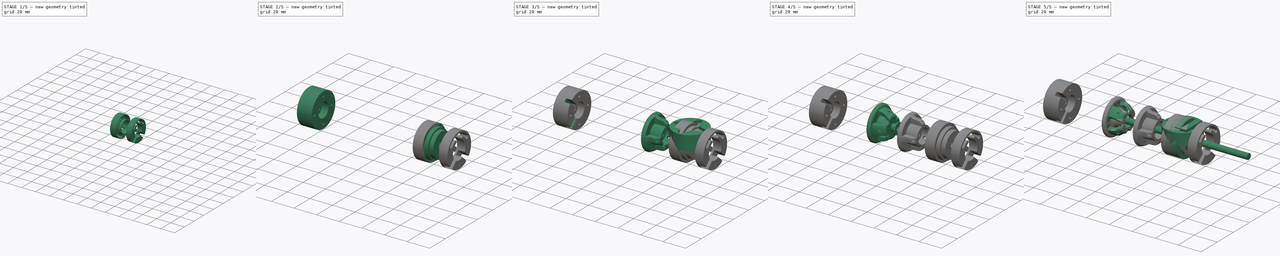
[diagram: build sequence overview — one tinted view per stage of 5, left to right]
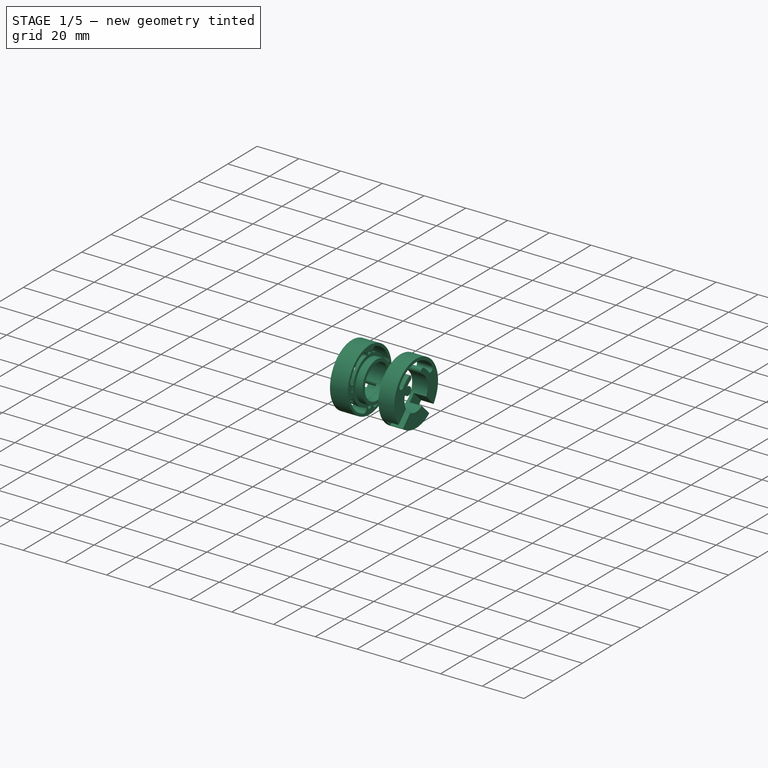
[diagram: stage 1 of 5 — iso view after this stage's code; geometry added in this stage tinted green]
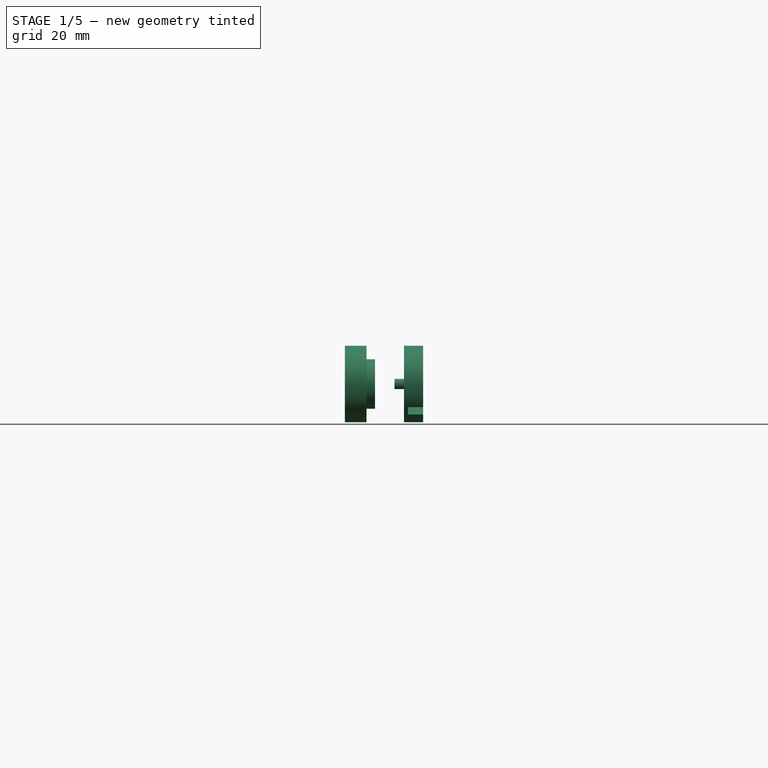
[diagram: stage 1 of 5 — front view after this stage's code; geometry added in this stage tinted green]
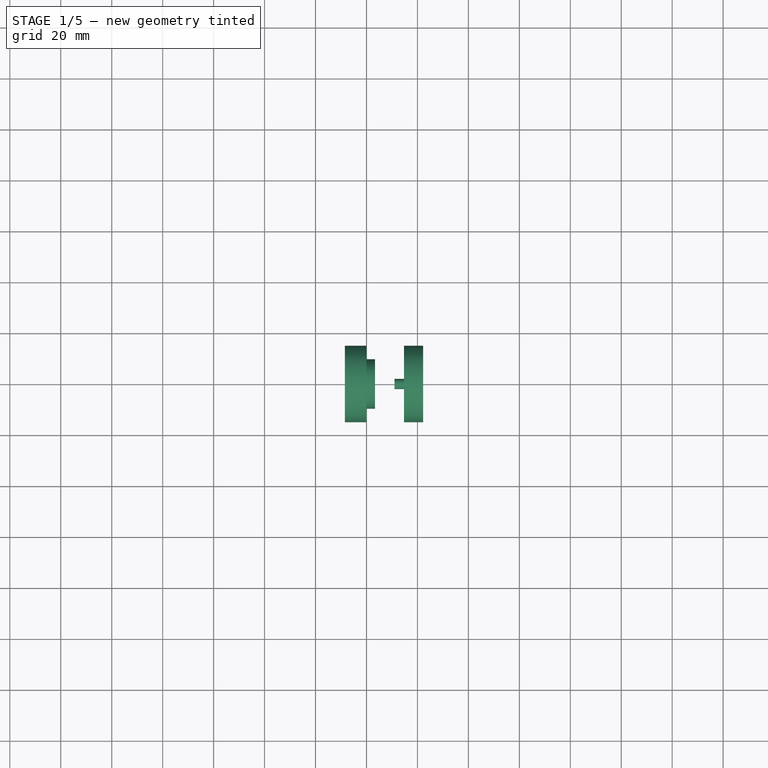
[diagram: stage 1 of 5 — top view after this stage's code; geometry added in this stage tinted green]
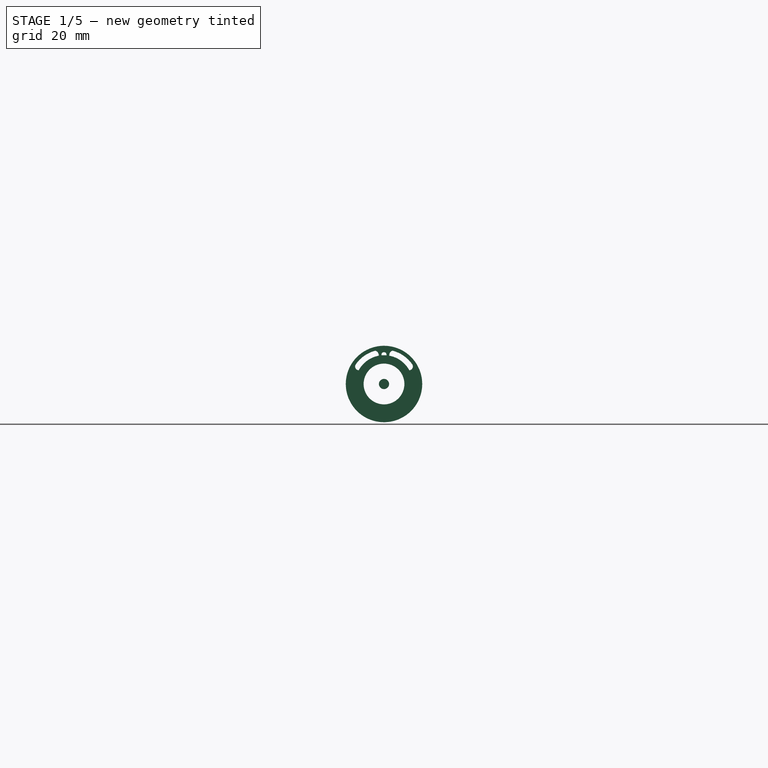
[diagram: stage 1 of 5 — right view after this stage's code; geometry added in this stage tinted green]
FCSTD DOCUMENT  (FreeCAD 0.19R24276 (Git))
Label: axis
License: All rights reserved
LicenseURL: http://en.wikipedia.org/wiki/All_rights_reserved
objects: Sketcher::SketchObject×108, PartDesign::Pad×55, PartDesign::Body×38, PartDesign::Pocket×36, PartDesign::PolarPattern×26, PartDesign::Hole×9, App::Part×8, PartDesign::FeatureBase×7, Part::Cut×7, PartDesign::Revolution×3, PartDesign::Groove×3, Part::MultiFuse×1, PartDesign::ShapeBinder×1, Part::Cylinder×1
note: 401 computed .brp shape members not serialized (recipe doc carries the construction recipe); baked Part::Feature solids carry a one-line shape summary decoded from their .brp

FEATURE [PartDesign::Body] Body029  label="roller8_22"
  Group = -> [Sketch085,Revolution001]
  Origin = -> Origin035
  Tip = -> Revolution001
FEATURE [Sketcher::SketchObject] Sketch086
  FullyConstrained = true
  MapMode = 5
  Placement = pos=(0,0,0) rot=(1,0,0;1.5708rad)
  Support = -> [XZ_Plane036]
  sketch-geometry (6):
    g0: LineSegment StartX=-1.36 StartY=8.1 StartZ=0 EndX=3.36 EndY=8.1 EndZ=0
    g1: LineSegment StartX=-1.36 StartY=8.1 StartZ=0 EndX=-1.36 EndY=11.3 EndZ=0
    g2: LineSegment StartX=-1.36 StartY=11.3 StartZ=0 EndX=0 EndY=11.3 EndZ=0
    g3: LineSegment StartX=0 StartY=11.3 StartZ=0 EndX=0 EndY=9.7 EndZ=0
    g4: LineSegment StartX=0 StartY=9.7 StartZ=0 EndX=3.36 EndY=9.7 EndZ=0
    g5: LineSegment StartX=3.36 StartY=9.7 StartZ=0 EndX=3.36 EndY=8.1 EndZ=0
  constraints (18):
    c: Horizontal(g0)
    c: Coincident(g1,g0)
    c: Coincident(g2,g1)
    c: Horizontal(g2)
    c: Coincident(g3,g2)
    c: Vertical(g3)
    c: Coincident(g4,g3)
    c: Horizontal(g4)
    c: Coincident(g5,g4)
    c: Coincident(g5,g0)
    c: Vertical(g5)
    c: DistanceX(g2,g2) = 1.36
    c: DistanceX(g0,g0) = 4.72
    c: Vertical(g1)
    c: PointOnObject(g2,g-2)
    c: DistanceY(g5,g5) = 1.6
    c: DistanceY(g3,g3) = 1.6
    c: DistanceY(g0) = 8.1
FEATURE [PartDesign::Revolution] Revolution002
  Angle = 360
  Axis = (1,0,0)
  Base = (0,0,0)
  Placement = pos=(0,0,0) rot=(1,0,0;1.5708rad)
  Profile = -> Sketch086
  ReferenceAxis = -> X_Axis036
  Reversed = true
FEATURE [PartDesign::Body] Body030  label="roller8_16"
  Group = -> [Sketch086,Revolution002]
  Origin = -> Origin036
  Tip = -> Revolution002
FEATURE [Sketcher::SketchObject] Sketch087
  FullyConstrained = true
  MapMode = 5
  Placement = pos=(0,0,0) rot=(0.57735,0.57735,0.57735;2.0944rad)
  Support = -> [YZ_Plane037]
  sketch-geometry (2):
    g0: Circle CenterX=0 CenterY=0 CenterZ=0 NormalX=0 NormalY=0 NormalZ=1 AngleXU=0 Radius=4
    g1: Circle CenterX=0 CenterY=0 CenterZ=0 NormalX=0 NormalY=0 NormalZ=1 AngleXU=0 Radius=8
  constraints (4):
    c: Coincident(g0,g-1)
    c: Coincident(g1,g0)
    c: Radius(g0) = 4
    c: Radius(g1) = 8
FEATURE [PartDesign::Pad] Pad045
  Direction = (1,1,1)
  Length = 7.5
  Length2 = 100
  Placement = pos=(0,0,0) rot=(0.57735,0.57735,0.57735;2.0944rad)
  Profile = -> Sketch087
  Type = 0
FEATURE [Sketcher::SketchObject] Sketch088
  ExternalGeometry = -> [Pad045]
  FullyConstrained = false
  MapMode = 5
  Placement = pos=(0,0,0) rot=(0.57735,0.57735,-0.57735;4.18879rad)
  Support = -> [Pad045]
  sketch-geometry (2):
    g0: Circle CenterX=0 CenterY=0 CenterZ=0 NormalX=0 NormalY=0 NormalZ=1 AngleXU=0 Radius=6
    g1: Circle CenterX=0 CenterY=0 CenterZ=0 NormalX=0 NormalY=0 NormalZ=1 AngleXU=0 Radius=4
  constraints (3):
    c: Radius(g0) = 6
    c: Coincident(g1,g0)
    c: Radius(g1) = 4
FEATURE [PartDesign::Pad] Pad046
  BaseFeature = -> Pad045
  Direction = (1,1,1)
  Length = 7
  Length2 = 100
  Placement = pos=(0,0,0) rot=(0.57735,0.57735,0.57735;2.0944rad)
  Profile = -> Sketch088
  Type = 0
FEATURE [Sketcher::SketchObject] Sketch089
  ExternalGeometry = -> [Pad046]
  FullyConstrained = true
  MapMode = 5
  Placement = pos=(-7,3.1e-15,-3.1e-15) rot=(0.57735,0.57735,-0.57735;4.18879rad)
  Support = -> [Pad046]
  sketch-geometry (2):
    g0: Circle CenterX=0 CenterY=0 CenterZ=0 NormalX=0 NormalY=0 NormalZ=1 AngleXU=0 Radius=4
    g1: Circle CenterX=0 CenterY=0 CenterZ=0 NormalX=0 NormalY=0 NormalZ=1 AngleXU=0 Radius=8
  constraints (4):
    c: Coincident(g0,g-1)
    c: Tangent(g0,g-4)
    c: Coincident(g1,g0)
    c: Tangent(g1,g-3)
FEATURE [PartDesign::Pad] Pad047
  BaseFeature = -> Pad046
  Direction = (1,1,1)
  Length = 1.5
  Length2 = 100
  Placement = pos=(0,0,0) rot=(0.57735,0.57735,0.57735;2.0944rad)
  Profile = -> Sketch089
  Type = 0
FEATURE [Sketcher::SketchObject] Sketch090
  ExternalGeometry = -> [Pad047]
  FullyConstrained = true
  MapMode = 5
  Placement = pos=(0,0,0) rot=(1,0,0;1.5708rad)
  Support = -> [XZ_Plane037]
  sketch-geometry (1):
    g0: Circle CenterX=4 CenterY=0 CenterZ=0 NormalX=0 NormalY=0 NormalZ=1 AngleXU=0 Radius=2
  constraints (3):
    c: PointOnObject(g0,g-1)
    c: Radius(g0) = 2
    c: DistanceX(g0,g-3) = 3.5
FEATURE [PartDesign::Pad] Pad048  label="tornillo006"
  BaseFeature = -> Pad047
  Direction = (1,1,1)
  Length = 9
  Length2 = 100
  Placement = pos=(0,0,0) rot=(0.57735,0.57735,0.57735;2.0944rad)
  Profile = -> Sketch090
  Type = 0
FEATURE [PartDesign::Body] Body031  label="polea8d"
  Group = -> [Sketch087,Pad045,Sketch088,Pad046,Sketch089,Pad047,Sketch090,Pad048]
  Origin = -> Origin037
  Placement = pos=(22.5,1e-14,0) rot=(0,0.382683,0.92388;3.14159rad)
  Tip = -> Pad048
FEATURE [Sketcher::SketchObject] Sketch091
  FullyConstrained = false
  MapMode = 5
  Placement = pos=(0,0,0) rot=(0.57735,0.57735,0.57735;2.0944rad)
  Support = -> [YZ_Plane038]
  sketch-geometry (11):
    g0: ArcOfCircle CenterX=0 CenterY=0 CenterZ=0 NormalX=0 NormalY=0 NormalZ=1 AngleXU=0 Radius=8 StartAngle=2.07886 EndAngle=7.34592
    g1: Circle CenterX=0 CenterY=0 CenterZ=0 NormalX=0 NormalY=0 NormalZ=1 AngleXU=0 Radius=15
    g2: ArcOfCircle CenterX=-9.82982 CenterY=6.88292 CenterZ=0 NormalX=0 NormalY=0 NormalZ=1 AngleXU=0 Radius=1.5 StartAngle=2.53073 EndAngle=5.67232
    g3: ArcOfCircle CenterX=9.82982 CenterY=6.88292 CenterZ=0 NormalX=0 NormalY=0 NormalZ=1 AngleXU=0 Radius=1.5 StartAngle=3.75245 EndAngle=6.89405
    g4: LineSegment StartX=0 StartY=0 StartZ=0 EndX=-9.82982 EndY=6.88292 EndZ=0
    g5: Circle CenterX=0 CenterY=0 CenterZ=0 NormalX=0 NormalY=0 NormalZ=1 AngleXU=0 Radius=12
    g6: ArcOfCircle CenterX=0 CenterY=0 CenterZ=0 NormalX=0 NormalY=0 NormalZ=1 AngleXU=0 Radius=13.5 StartAngle=0.610865 EndAngle=2.53073
    g7: ArcOfCircle CenterX=0 CenterY=0 CenterZ=0 NormalX=0 NormalY=0 NormalZ=1 AngleXU=0 Radius=10.5 StartAngle=0.610866 EndAngle=1.06273
    g8: ArcOfCircle CenterX=4.5 CenterY=8.08161 CenterZ=0 NormalX=0 NormalY=0 NormalZ=1 AngleXU=0 Radius=1.25 StartAngle=1.06273 EndAngle=4.20433
    g9: ArcOfCircle CenterX=-4.5 CenterY=8.08161 CenterZ=0 NormalX=0 NormalY=0 NormalZ=1 AngleXU=0 Radius=1.25 StartAngle=5.22045 EndAngle=8.36205
    g10: ArcOfCircle CenterX=0 CenterY=0 CenterZ=0 NormalX=0 NormalY=0 NormalZ=1 AngleXU=0 Radius=10.5 StartAngle=2.07886 EndAngle=2.53073
  constraints (28):
    c: Coincident(g0,g-1)
    c: Radius(g0) = 8
    c: Coincident(g1,g0)
    c: Radius(g1) = 15
    c: Symmetric(g3,g2,g-2)
    c: Equal(g2,g3)
    c: Coincident(g4,g0)
    c: Coincident(g4,g2)
    c: Angle(g4) = 2.53073
    c: Coincident(g5,g0)
    c: Radius(g5) = 12
    c: PointOnObject(g2,g5)
    c: Coincident(g6,g0)
    c: Radius(g2) = 1.5
    c: Coincident(g7,g0)
    c: Coincident(g2,g10) = 1.5708
    c: Tangent(g2,g6) = -1.5708
    c: Coincident(g3,g6)
    c: Coincident(g3,g7)
    c: Symmetric(g9,g8,g-2)
    c: Equal(g9,g8)
    c: DistanceX(g9,g8) = 9
    c: Coincident(g7,g8)
    c: Tangent(g10,g9) = -1.5708
    c: Coincident(g7,g10)
    c: Tangent(g0,g9) = 1.5708
    c: Coincident(g0,g8)
    c: PointOnObject(g2,g4)
FEATURE [PartDesign::Pad] Pad049
  Direction = (1,1,1)
  Length = 7.5
  Length2 = 100
  Midplane = true
  Placement = pos=(0,0,0) rot=(0.57735,0.57735,0.57735;2.0944rad)
  Profile = -> Sketch091
  Type = 0
FEATURE [PartDesign::Body] Body032  label="slotted001"
  Group = -> [Sketch091,Pad049]
  Origin = -> Origin038
  Placement = pos=(18.5,0,0) rot=(0,0,1;0rad)
  Tip = -> Pad049
FEATURE [Part::Cut] Cut005
  Base = -> Body032
  Tool = -> Body031
FEATURE [PartDesign::FeatureBase] BaseFeature005
  BaseFeature = -> Cut005
FEATURE [Sketcher::SketchObject] Sketch092
  ExternalGeometry = -> [BaseFeature005]
  FullyConstrained = true
  MapMode = 5
  Placement = pos=(22.25,-1.48e-14,2.5e-15) rot=(0.57735,0.57735,0.57735;2.0944rad)
  Support = -> [BaseFeature005]
  sketch-geometry (10):
    g0: Circle CenterX=0 CenterY=0 CenterZ=0 NormalX=0 NormalY=0 NormalZ=1 AngleXU=0 Radius=8
    g1: LineSegment StartX=0 StartY=0 StartZ=0 EndX=10.6066 EndY=-10.6066 EndZ=0
    g2: Circle CenterX=0 CenterY=0 CenterZ=0 NormalX=0 NormalY=0 NormalZ=1 AngleXU=0 Radius=15
    g3: LineSegment StartX=4.01841 StartY=-6.91754 StartZ=0 EndX=9.86414 EndY=-12.7633 EndZ=0
    g4: LineSegment StartX=6.91754 StartY=-4.01841 StartZ=0 EndX=12.7633 EndY=-9.86414 EndZ=0
    g5: LineSegment StartX=6.91754 StartY=-4.01841 StartZ=0 EndX=4.01841 EndY=-6.91754 EndZ=0
    g6: LineSegment StartX=9.86414 StartY=-12.7633 StartZ=0 EndX=12.7633 EndY=-9.86414 EndZ=0
    g7: LineSegment StartX=10.6066 StartY=-10.6066 StartZ=0 EndX=11.3137 EndY=-11.3137 EndZ=0
    g8: Circle CenterX=10.6066 CenterY=-10.6066 CenterZ=0 NormalX=0 NormalY=0 NormalZ=1 AngleXU=0 Radius=1
    g9: Circle CenterX=4.01841 CenterY=-6.91754 CenterZ=0 NormalX=0 NormalY=0 NormalZ=1 AngleXU=0 Radius=4.1
  constraints (25):
    c: Coincident(g0,g-1)
    c: PointOnObject(g-3,g0)
    c: Coincident(g1,g-1)
    c: Coincident(g2,g-1)
    c: PointOnObject(g1,g2)
    c: PointOnObject(g1,g-4)
    c: PointOnObject(g-3,g1)
    c: PointOnObject(g3,g0)
    c: Parallel(g3,g4)
    c: Parallel(g4,g1)
    c: Symmetric(g4,g3,g1)
    c: Coincident(g5,g4)
    c: Coincident(g5,g3)
    c: Coincident(g6,g3)
    c: Coincident(g6,g4)
    c: Coincident(g7,g1)
    c: PointOnObject(g7,g6)
    c: Parallel(g7,g1)
    c: Perpendicular(g4,g6)
    c: Coincident(g8,g1)
    c: PointOnObject(g7,g8)
    c: Radius(g8) = 1
    c: Coincident(g9,g3)
    c: PointOnObject(g4,g9)
    c: Radius(g9) = 4.1
FEATURE [PartDesign::Pocket] Pocket029
  BaseFeature = -> BaseFeature005
  Length = 6
  Length2 = 100
  Profile = -> Sketch092
  Type = 0
FEATURE [PartDesign::PolarPattern] PolarPattern021
  Angle = 90
  Axis = -> Sketch092 [N_Axis]
  BaseFeature = -> Pocket029
  Occurrences = 2
  Originals = -> [Pocket029]
  Reversed = true
FEATURE [PartDesign::Body] Body034
  BaseFeature = -> Cut005
  Group = -> [BaseFeature005,Sketch092,Pocket029,PolarPattern021]
  Origin = -> Origin041
  Tip = -> PolarPattern021
FEATURE [App::Part] Part006  label="rueda_polea"
  Group = -> [Cut005,Body032,Body031,Body034]
  Origin = -> Origin039
FEATURE [Sketcher::SketchObject] Sketch093
  FullyConstrained = true
  MapMode = 5
  Placement = pos=(0,0,0) rot=(0.57735,0.57735,0.57735;2.0944rad)
  Support = -> [YZ_Plane043]
  sketch-geometry (2):
    g0: Circle CenterX=0 CenterY=0 CenterZ=0 NormalX=0 NormalY=0 NormalZ=1 AngleXU=0 Radius=2.5
    g1: Circle CenterX=0 CenterY=0 CenterZ=0 NormalX=0 NormalY=0 NormalZ=1 AngleXU=0 Radius=6.5
  constraints (4):
    c: Coincident(g0,g-1)
    c: Coincident(g1,g0)
    c: Radius(g0) = 2.5
    c: Radius(g1) = 6.5
FEATURE [PartDesign::Pad] Pad050
  Direction = (1,1,1)
  Length = 6
  Length2 = 100
  Placement = pos=(0,0,0) rot=(0.57735,0.57735,0.57735;2.0944rad)
  Profile = -> Sketch093
  Type = 0
FEATURE [Sketcher::SketchObject] Sketch094
  ExternalGeometry = -> [Pad050]
  FullyConstrained = false
  MapMode = 5
  Placement = pos=(0,0,0) rot=(0.57735,0.57735,-0.57735;4.18879rad)
  Support = -> [Pad050]
  sketch-geometry (2):
    g0: Circle CenterX=0 CenterY=0 CenterZ=0 NormalX=0 NormalY=0 NormalZ=1 AngleXU=0 Radius=5
    g1: Circle CenterX=0 CenterY=0 CenterZ=0 NormalX=0 NormalY=0 NormalZ=1 AngleXU=0 Radius=2.52244
  constraints (2):
    c: Radius(g0) = 5
    c: Coincident(g1,g0)
FEATURE [PartDesign::Pad] Pad051
  BaseFeature = -> Pad050
  Direction = (1,1,1)
  Length = 7
  Length2 = 100
  Placement = pos=(0,0,0) rot=(0.57735,0.57735,0.57735;2.0944rad)
  Profile = -> Sketch094
  Type = 0
FEATURE [Sketcher::SketchObject] Sketch095
  ExternalGeometry = -> [Pad051]
  FullyConstrained = true
  MapMode = 5
  Placement = pos=(-7,3.1e-15,-3.1e-15) rot=(0.57735,0.57735,-0.57735;4.18879rad)
  Support = -> [Pad051]
  sketch-geometry (2):
    g0: Circle CenterX=0 CenterY=0 CenterZ=0 NormalX=0 NormalY=0 NormalZ=1 AngleXU=0 Radius=2.52244
    g1: Circle CenterX=0 CenterY=0 CenterZ=0 NormalX=0 NormalY=0 NormalZ=1 AngleXU=0 Radius=6.5
  constraints (4):
    c: Coincident(g0,g-1)
    c: Tangent(g0,g-4)
    c: Coincident(g1,g0)
    c: Tangent(g1,g-3)
FEATURE [PartDesign::Pad] Pad052
  BaseFeature = -> Pad051
  Direction = (1,1,1)
  Length = 1
  Length2 = 100
  Placement = pos=(0,0,0) rot=(0.57735,0.57735,0.57735;2.0944rad)
  Profile = -> Sketch095
  Type = 0
FEATURE [Sketcher::SketchObject] Sketch096
  ExternalGeometry = -> [Pad052]
  FullyConstrained = true
  MapMode = 5
  Placement = pos=(0,0,0) rot=(1,0,0;1.5708rad)
  Support = -> [XZ_Plane043]
  sketch-geometry (1):
    g0: Circle CenterX=3 CenterY=0 CenterZ=0 NormalX=0 NormalY=0 NormalZ=1 AngleXU=0 Radius=1
  constraints (3):
    c: PointOnObject(g0,g-1)
    c: Radius(g0) = 1
    c: DistanceX(g0,g-3) = 3
FEATURE [PartDesign::Pad] Pad053  label="tornillo007"
  BaseFeature = -> Pad052
  Direction = (1,1,1)
  Length = 7
  Length2 = 100
  Placement = pos=(0,0,0) rot=(0.57735,0.57735,0.57735;2.0944rad)
  Profile = -> Sketch096
  Type = 0
FEATURE [PartDesign::Body] Body035  label="polea007"
  Group = -> [Sketch093,Pad050,Sketch094,Pad051,Sketch095,Pad052,Sketch096,Pad053]
  Origin = -> Origin043
  Placement = pos=(0,0,0) rot=(0,0.92388,0.382683;3.14159rad)
  Tip = -> Pad053
FEATURE [Sketcher::SketchObject] Sketch100
  FullyConstrained = true
  MapMode = 5
  Support = -> [XY_Plane044]
  sketch-geometry (1):
    g0: Circle CenterX=0 CenterY=0 CenterZ=0 NormalX=0 NormalY=0 NormalZ=1 AngleXU=0 Radius=15
  constraints (2):
    c: Coincident(g0,g-1)
    c: Radius(g0) = 15
FEATURE [PartDesign::Pad] Pad054
  Direction = (1,1,1)
  Length = 8.5
  Length2 = 100
  Profile = -> Sketch100
  Type = 0
FEATURE [Sketcher::SketchObject] Sketch099
  FullyConstrained = true
  MapMode = 5
  Placement = pos=(0,0,8.5) rot=(0,0,1;0rad)
  Support = -> [Pad054]
  sketch-geometry (4):
    g0: ArcOfCircle CenterX=0 CenterY=0 CenterZ=0 NormalX=0 NormalY=0 NormalZ=1 AngleXU=0 Radius=5.5 StartAngle=2.85054 EndAngle=6.57423
    g1: ArcOfCircle CenterX=0 CenterY=11.5 CenterZ=0 NormalX=0 NormalY=0 NormalZ=1 AngleXU=0 Radius=2.2 StartAngle=0.291048 EndAngle=2.85054
    g2: LineSegment StartX=-2.10748 StartY=12.1313 StartZ=0 EndX=-5.26869 EndY=1.57826 EndZ=0
    g3: LineSegment StartX=2.10748 StartY=12.1313 StartZ=0 EndX=5.26869 EndY=1.57826 EndZ=0
  constraints (9):
    c: Coincident(g0,g-1)
    c: Radius(g0) = 5.5
    c: PointOnObject(g1,g-2)
    c: Radius(g1) = 2.2
    c: DistanceY(g1) = 11.5
    c: Tangent(g1,g3) = 1.5708
    c: Tangent(g1,g2) = -1.5708
    c: Tangent(g0,g2) = -1.5708
    c: Tangent(g0,g3) = 1.5708
FEATURE [PartDesign::Pocket] Pocket031
  BaseFeature = -> Pad054
  Length = 2.5
  Length2 = 100
  Profile = -> Sketch099
  Type = 0
FEATURE [PartDesign::PolarPattern] PolarPattern023
  Angle = 360
  Axis = -> Sketch099 [N_Axis]
  BaseFeature = -> Pocket031
  Occurrences = 4
  Originals = -> [Pocket031]
FEATURE [Sketcher::SketchObject] Sketch097
  FullyConstrained = true
  MapMode = 5
  Placement = pos=(0,0,6) rot=(0,0,1;0rad)
  Support = -> [PolarPattern023]
  sketch-geometry (2):
    g0: GeomPoint X=0 Y=11 Z=0
    g1: Circle CenterX=0 CenterY=11 CenterZ=0 NormalX=0 NormalY=0 NormalZ=1 AngleXU=0 Radius=0.6
  constraints (4):
    c: PointOnObject(g0,g-2)
    c: DistanceY(g-1,g0) = 11
    c: Coincident(g1,g0)
    c: Radius(g1) = 0.6
FEATURE [PartDesign::Hole] Hole008
  BaseFeature = -> PolarPattern023
  Depth = 25
  DepthType = 0
  Diameter = 2
  DrillForDepth = false
  DrillPoint = 1
  DrillPointAngle = 118
  HoleCutCountersinkAngle = 90
  HoleCutCustomValues = false
  HoleCutDepth = 0
  HoleCutDiameter = 6.1
  HoleCutType = 0
  ModelActualThread = false
  Profile = -> Sketch097
  Tapered = false
  TaperedAngle = 90
  ThreadAngle = 0
  ThreadClass = 0
  ThreadCutOffInner = 0
  ThreadCutOffOuter = 0
  ThreadDirection = 0
  ThreadFit = 0
  ThreadPitch = 0
  ThreadSize = 0
  ThreadType = 0
  Threaded = false
FEATURE [PartDesign::PolarPattern] PolarPattern022
  Angle = 360
  Axis = -> Sketch097 [N_Axis]
  BaseFeature = -> Hole008
  Occurrences = 4
  Originals = -> [Hole008]
FEATURE [Sketcher::SketchObject] Sketch098
  FullyConstrained = true
  MapMode = 5
  Placement = pos=(0,0,6) rot=(0,0,1;0rad)
  Support = -> [PolarPattern022]
  sketch-geometry (1):
    g0: Circle CenterX=0 CenterY=0 CenterZ=0 NormalX=0 NormalY=0 NormalZ=1 AngleXU=0 Radius=4
  constraints (2):
    c: Coincident(g0,g-1)
    c: Radius(g0) = 4
FEATURE [PartDesign::Pocket] Pocket030
  BaseFeature = -> PolarPattern022
  Length = 2
  Length2 = 100
  Profile = -> Sketch098
  Type = 1
FEATURE [PartDesign::Body] Body036  label="rueda_servo002"
  Group = -> [Sketch100,Pad054,Sketch099,Pocket031,PolarPattern023,Sketch097,Hole008,PolarPattern022,Sketch098,Pocket030]
  Origin = -> Origin044
  Placement = pos=(0,0,2e-15) rot=(0,-1,0;1.5708rad)
  Tip = -> Pocket030
FEATURE [Part::Cut] Cut006
  Base = -> Body036
  Tool = -> Body035
FEATURE [PartDesign::FeatureBase] BaseFeature006
  BaseFeature = -> Cut006
FEATURE [Sketcher::SketchObject] Sketch101
  ExternalGeometry = -> [BaseFeature006]
  FullyConstrained = true
  MapMode = 5
  Placement = pos=(-8.5,0,0) rot=(0.57735,-0.57735,-0.57735;2.0944rad)
  Support = -> [BaseFeature006]
  sketch-geometry (9):
    g0: LineSegment StartX=0 StartY=0 StartZ=0 EndX=14.1421 EndY=-14.1421 EndZ=0
    g1: Circle CenterX=0 CenterY=0 CenterZ=0 NormalX=0 NormalY=0 NormalZ=1 AngleXU=0 Radius=20
    g2: LineSegment StartX=2.47487 StartY=-4.59619 StartZ=0 EndX=4.59619 EndY=-2.47487 EndZ=0
    g3: LineSegment StartX=4.59619 StartY=-2.47487 StartZ=0 EndX=12.3744 EndY=-10.253 EndZ=0
    g4: LineSegment StartX=12.3744 StartY=-10.253 StartZ=0 EndX=10.253 EndY=-12.3744 EndZ=0
    g5: LineSegment StartX=10.253 StartY=-12.3744 StartZ=0 EndX=2.47487 EndY=-4.59619 EndZ=0
    g6: Circle CenterX=0 CenterY=0 CenterZ=0 NormalX=0 NormalY=0 NormalZ=1 AngleXU=0 Radius=5
    g7: Circle CenterX=0 CenterY=0 CenterZ=0 NormalX=0 NormalY=0 NormalZ=1 AngleXU=0 Radius=16
    g8: Circle CenterX=4.59619 CenterY=-2.47487 CenterZ=0 NormalX=0 NormalY=0 NormalZ=1 AngleXU=0 Radius=3
  constraints (22):
    c: Coincident(g0,g-1)
    c: PointOnObject(g-3,g0)
    c: Coincident(g1,g-1)
    c: PointOnObject(g0,g1)
    c: Radius(g1) = 20
    c: Coincident(g3,g2)
    c: Coincident(g5,g2)
    c: Perpendicular(g5,g2)
    c: Perpendicular(g3,g2)
    c: Perpendicular(g5,g4)
    c: Coincident(g3,g4)
    c: Symmetric(g2,g2,g0)
    c: Coincident(g4,g5)
    c: Coincident(g6,g-1)
    c: Tangent(g6,g2)
    c: Radius(g6) = 5
    c: Coincident(g7,g-1)
    c: Tangent(g7,g4)
    c: Radius(g7) = 16
    c: Coincident(g8,g2)
    c: PointOnObject(g2,g8)
    c: Radius(g8) = 3
FEATURE [Sketcher::SketchObject] Sketch102
  FullyConstrained = true
  MapMode = 5
  Placement = pos=(-8.5,0,0) rot=(0.57735,-0.57735,-0.57735;2.0944rad)
  Support = -> [BaseFeature006]
  sketch-geometry (1):
    g0: Circle CenterX=0 CenterY=0 CenterZ=0 NormalX=0 NormalY=0 NormalZ=1 AngleXU=0 Radius=8
  constraints (2):
    c: Coincident(g0,g-1)
    c: Radius(g0) = 8
FEATURE [PartDesign::Pocket] Pocket032
  BaseFeature = -> BaseFeature006
  Length = 5
  Length2 = 100
  Profile = -> Sketch102
  Type = 1
FEATURE [PartDesign::Body] Body037
  BaseFeature = -> Cut006
  Group = -> [BaseFeature006,Sketch101,Sketch102,Pocket032]
  Origin = -> Origin045
  Tip = -> Pocket032
FEATURE [Sketcher::SketchObject] Sketch103
  FullyConstrained = true
  MapMode = 5
  Placement = pos=(0,0,0) rot=(0.57735,0.57735,0.57735;2.0944rad)
  Support = -> [YZ_Plane046]
  sketch-geometry (2):
    g0: Circle CenterX=0 CenterY=0 CenterZ=0 NormalX=0 NormalY=0 NormalZ=1 AngleXU=0 Radius=8
    g1: Circle CenterX=0 CenterY=0 CenterZ=0 NormalX=0 NormalY=0 NormalZ=1 AngleXU=0 Radius=15
  constraints (4):
    c: Coincident(g0,g-1)
    c: Coincident(g1,g0)
    c: Radius(g0) = 8
    c: Radius(g1) = 15
FEATURE [PartDesign::ShapeBinder] ShapeBinder
  Support = -> [Pocket032]
  TraceSupport = false
FEATURE [PartDesign::Pad] Pad055
  Direction = (1,1,1)
  Length = 8.5
  Length2 = 100
  Placement = pos=(0,0,0) rot=(0.57735,0.57735,0.57735;2.0944rad)
  Profile = -> Sketch103
  Reversed = true
  Type = 0
FEATURE [Sketcher::SketchObject] Sketch106
  FullyConstrained = true
  MapMode = 5
  Placement = pos=(0,0,0) rot=(0.57735,0.57735,0.57735;2.0944rad)
  Support = -> [YZ_Plane047]
  sketch-geometry (15):
    g0: ArcOfCircle CenterX=0 CenterY=4e-16 CenterZ=0 NormalX=0 NormalY=0 NormalZ=1 AngleXU=0 Radius=8 StartAngle=1.06465 EndAngle=1.5708
    g1: LineSegment StartX=0 StartY=4e-16 StartZ=0 EndX=10.6066 EndY=10.6066 EndZ=0
    g2: ArcOfCircle CenterX=0 CenterY=4e-16 CenterZ=0 NormalX=0 NormalY=0 NormalZ=1 AngleXU=0 Radius=15 StartAngle=0 EndAngle=1.5708
    g3: ArcOfCircle CenterX=4.46025 CenterY=8.0465 CenterZ=0 NormalX=0 NormalY=0 NormalZ=1 AngleXU=0 Radius=1.2 StartAngle=4.20624 EndAngle=7.34784
    g4: ArcOfCircle CenterX=8.0465 CenterY=4.46025 CenterZ=0 NormalX=0 NormalY=0 NormalZ=1 AngleXU=0 Radius=1.2 StartAngle=0.506146 EndAngle=3.64774
    g5: ArcOfCircle CenterX=3.8417 CenterY=11.1571 CenterZ=0 NormalX=0 NormalY=0 NormalZ=1 AngleXU=0 Radius=1.4 StartAngle=1.23918 EndAngle=4.38078
    g6: ArcOfCircle CenterX=11.1571 CenterY=3.8417 CenterZ=0 NormalX=0 NormalY=0 NormalZ=1 AngleXU=0 Radius=1.4 StartAngle=3.47321 EndAngle=6.61481
    g7: LineSegment StartX=0 StartY=4e-16 StartZ=0 EndX=8.0465 EndY=4.46025 EndZ=0
    g8: LineSegment StartX=11.1571 StartY=3.8417 StartZ=0 EndX=0 EndY=4e-16 EndZ=0
    g9: ArcOfCircle CenterX=0 CenterY=4e-16 CenterZ=0 NormalX=0 NormalY=0 NormalZ=1 AngleXU=0 Radius=13.2 StartAngle=0.331614 EndAngle=1.23918
    g10: ArcOfCircle CenterX=0 CenterY=4e-16 CenterZ=0 NormalX=0 NormalY=0 NormalZ=1 AngleXU=0 Radius=10.4 StartAngle=0.331613 EndAngle=0.506146
    g11: ArcOfCircle CenterX=0 CenterY=4e-16 CenterZ=0 NormalX=0 NormalY=0 NormalZ=1 AngleXU=0 Radius=10.4 StartAngle=1.06465 EndAngle=1.23918
    g12: ArcOfCircle CenterX=0 CenterY=4e-16 CenterZ=0 NormalX=0 NormalY=0 NormalZ=1 AngleXU=0 Radius=8 StartAngle=0 EndAngle=0.506146
    g13: LineSegment StartX=9e-16 StartY=15 StartZ=0 EndX=9e-16 EndY=8 EndZ=0
    g14: LineSegment StartX=8 StartY=4e-16 StartZ=0 EndX=15 EndY=4e-16 EndZ=0
  constraints (42):
    c: Coincident(g0,g-1)
    c: Radius(g0) = 8
    c: Coincident(g1,g0)
    c: Coincident(g2,g0)
    c: PointOnObject(g1,g2)
    c: Radius(g2) = 15
    c: Symmetric(g4,g3,g1)
    c: Symmetric(g6,g5,g1)
    c: Coincident(g7,g0)
    c: Coincident(g7,g4)
    c: Coincident(g8,g6)
    c: Coincident(g8,g0)
    c: Equal(g6,g5)
    c: Equal(g3,g4)
    c: Coincident(g9,g0)
    c: Coincident(g10,g0)
    c: Radius(g6) = 1.4
    c: Radius(g4) = 1.2
    c: Angle(g8,g7) = 0.174533
    c: Angle(g1) = 0.785398
    c: Angle(g7,g1) = 0.279253
    c: Tangent(g5,g9) = -1.5708
    c: Coincident(g5,g11) = 1.5708
    c: Tangent(g3,g10) = -1.5708
    c: Coincident(g6,g9)
    c: Equal(g10,g11)
    c: Coincident(g10,g4)
    c: Coincident(g10,g11)
    c: PointOnObject(g11,g3)
    c: Tangent(g0,g3) = 1.5708
    c: Coincident(g12,g4)
    c: Equal(g0,g12)
    c: Coincident(g0,g12)
    c: Coincident(g13,g0)
    c: Vertical(g13)
    c: Coincident(g14,g12)
    c: Horizontal(g14)
    c: Coincident(g2,g14)
    c: Coincident(g2,g13)
    c: PointOnObject(g2,g-1)
    c: PointOnObject(g2,g-2)
    c: Tangent(g6,g10) = 1.5708
FEATURE [Sketcher::SketchObject] Sketch107
  FullyConstrained = false
  MapMode = 5
  Placement = pos=(0,0,0) rot=(0.57735,0.57735,0.57735;2.0944rad)
  Support = -> [Pad055]
  sketch-geometry (12):
    g0: ArcOfCircle CenterX=4.89286 CenterY=8.14309 CenterZ=0 NormalX=0 NormalY=0 NormalZ=1 AngleXU=0 Radius=1.5 StartAngle=4.17134 EndAngle=8.15894
    g1: ArcOfCircle CenterX=8.14309 CenterY=4.89286 CenterZ=0 NormalX=0 NormalY=0 NormalZ=1 AngleXU=0 Radius=1.5 StartAngle=5.97822 EndAngle=9.96583
    g2: LineSegment StartX=0 StartY=0 StartZ=0 EndX=10.6066 EndY=10.6066 EndZ=0
    g3: LineSegment StartX=0 StartY=0 StartZ=0 EndX=15.6742 EndY=0 EndZ=0
    g4: Circle CenterX=0 CenterY=0 CenterZ=0 NormalX=0 NormalY=0 NormalZ=1 AngleXU=0 Radius=15
    g5: Circle CenterX=0 CenterY=0 CenterZ=0 NormalX=0 NormalY=0 NormalZ=1 AngleXU=0 Radius=8
    g6: ArcOfCircle CenterX=3.89519 CenterY=11.3124 CenterZ=0 NormalX=0 NormalY=0 NormalZ=1 AngleXU=0 Radius=1.82267 StartAngle=1.0183 EndAngle=5.01736
    g7: ArcOfCircle CenterX=11.3124 CenterY=3.89519 CenterZ=0 NormalX=0 NormalY=0 NormalZ=1 AngleXU=0 Radius=1.82267 StartAngle=2.83662 EndAngle=6.83568
    g8: LineSegment StartX=8.14309 StartY=4.89286 StartZ=0 EndX=0 EndY=0 EndZ=0
    g9: LineSegment StartX=0 StartY=0 StartZ=0 EndX=11.3124 EndY=3.89519 EndZ=0
    g10: ArcOfCircle CenterX=0 CenterY=0 CenterZ=0 NormalX=0 NormalY=0 NormalZ=1 AngleXU=0 Radius=13.7485 StartAngle=0.360662 EndAngle=1.21013
    g11: ArcOfCircle CenterX=0 CenterY=-1.9e-15 CenterZ=0 NormalX=0 NormalY=0 NormalZ=1 AngleXU=0 Radius=8 StartAngle=0.541052 EndAngle=1.02974
  constraints (30):
    c: Coincident(g2,g-1)
    c: Coincident(g3,g-1)
    c: Angle(g2) = 0.785398
    c: Coincident(g4,g-1)
    c: PointOnObject(g2,g4)
    c: Radius(g4) = 15
    c: Symmetric(g0,g1,g2)
    c: Equal(g1,g0)
    c: Coincident(g5,g-1)
    c: Radius(g5) = 8
    c: Radius(g1) = 1.5
    c: Symmetric(g7,g6,g2)
    c: Equal(g7,g6)
    c: Coincident(g8,g1)
    c: Coincident(g8,g-1)
    c: Coincident(g9,g-1)
    c: Coincident(g9,g7)
    c: Angle(g8,g2) = 0.244346
    c: Angle(g9,g8) = 0.20944
    c: Coincident(g10,g-1)
    c: PointOnObject(g11,g-2)
    c: PointOnObject(g11,g0)
    c: PointOnObject(g11,g1)
    c: PointOnObject(g11,g8)
    c: PointOnObject(g0,g5)
    c: Coincident(g6,g10)
    c: Coincident(g6,g0)
    c: Tangent(g1,g5) = 1.5708
    c: Tangent(g7,g1) = 1.5708
    c: Coincident(g7,g10)
FEATURE [PartDesign::Pocket] Pocket033
  BaseFeature = -> Pad055
  Length = 5
  Length2 = 100
  Placement = pos=(0,0,0) rot=(0.57735,0.57735,0.57735;2.0944rad)
  Profile = -> Sketch107
  Type = 1
FEATURE [PartDesign::PolarPattern] PolarPattern024
  Angle = 360
  Axis = -> Sketch107 [N_Axis]
  BaseFeature = -> Pocket033
  Occurrences = 4
  Originals = -> [Pocket033]
  Placement = pos=(0,0,0) rot=(0.57735,0.57735,0.57735;2.0944rad)
FEATURE [Sketcher::SketchObject] Sketch105
  ExternalGeometry = -> [ShapeBinder,PolarPattern024]
  FullyConstrained = true
  MapMode = 5
  Placement = pos=(-8.5,0,0) rot=(0.57735,-0.57735,-0.57735;2.0944rad)
  Support = -> [ShapeBinder]
  sketch-geometry (7):
    g0: ArcOfCircle CenterX=0 CenterY=11.5 CenterZ=0 NormalX=0 NormalY=0 NormalZ=1 AngleXU=0 Radius=2.2 StartAngle=0.291048 EndAngle=1.5708
    g1: LineSegment StartX=2.10748 StartY=12.1313 StartZ=0 EndX=3.60162 EndY=7.14341 EndZ=0
    g2: LineSegment StartX=7.14341 StartY=3.60162 StartZ=0 EndX=12.1313 EndY=2.10748 EndZ=0
    g3: ArcOfCircle CenterX=0 CenterY=0 CenterZ=0 NormalX=0 NormalY=0 NormalZ=1 AngleXU=0 Radius=8 StartAngle=0.466993 EndAngle=1.1038
    g4: ArcOfCircle CenterX=11.5 CenterY=2e-15 CenterZ=0 NormalX=0 NormalY=0 NormalZ=1 AngleXU=0 Radius=2.2 StartAngle=-1.8e-15 EndAngle=1.27975
    g5: LineSegment StartX=1e-16 StartY=13.7 StartZ=0 EndX=0 EndY=0 EndZ=0
    g6: LineSegment StartX=0 StartY=0 StartZ=0 EndX=13.7 EndY=-1.9e-15 EndZ=0
  constraints (17):
    c: Coincident(g0,g-17)
    c: Coincident(g1,g-17)
    c: Coincident(g1,g-16)
    c: Coincident(g2,g-15)
    c: Coincident(g2,g-4)
    c: Coincident(g3,g-1)
    c: Coincident(g4,g-4)
    c: PointOnObject(g5,g-2)
    c: Coincident(g5,g3)
    c: Coincident(g6,g3)
    c: PointOnObject(g6,g-1)
    c: Coincident(g0,g5)
    c: Coincident(g3,g1)
    c: PointOnObject(g3,g2)
    c: Coincident(g4,g2)
    c: Coincident(g4,g6)
    c: Coincident(g0,g1)
FEATURE [PartDesign::Pocket] Pocket034
  BaseFeature = -> PolarPattern024
  Length = 2
  Length2 = 100
  Placement = pos=(0,0,0) rot=(0.57735,0.57735,0.57735;2.0944rad)
  Profile = -> Sketch105
  Type = 0
FEATURE [PartDesign::PolarPattern] PolarPattern025
  Angle = 360
  Axis = -> Sketch105 [N_Axis]
  BaseFeature = -> Pocket034
  Occurrences = 4
  Originals = -> [Pocket034]
  Placement = pos=(0,0,0) rot=(0.57735,0.57735,0.57735;2.0944rad)
FEATURE [Sketcher::SketchObject] Sketch108
  ExternalGeometry = -> [ShapeBinder]
  FullyConstrained = true
  MapMode = 5
  Placement = pos=(-8.5,0,0) rot=(0.57735,-0.57735,-0.57735;2.0944rad)
  Support = -> [ShapeBinder]
  sketch-geometry (4):
    g0: Circle CenterX=0 CenterY=11.5 CenterZ=0 NormalX=0 NormalY=0 NormalZ=1 AngleXU=0 Radius=1
    g1: Circle CenterX=11.5 CenterY=0 CenterZ=0 NormalX=0 NormalY=0 NormalZ=1 AngleXU=0 Radius=1
    g2: Circle CenterX=0 CenterY=-11.5 CenterZ=0 NormalX=0 NormalY=0 NormalZ=1 AngleXU=0 Radius=1
    g3: Circle CenterX=-11.5 CenterY=0 CenterZ=0 NormalX=0 NormalY=0 NormalZ=1 AngleXU=0 Radius=1
  constraints (8):
    c: Coincident(g0,g-3)
    c: Coincident(g1,g-4)
    c: Coincident(g2,g-5)
    c: Coincident(g3,g-6)
    c: Equal(g3,g0)
    c: Equal(g0,g1)
    c: Equal(g1,g2)
    c: Radius(g0) = 1
FEATURE [PartDesign::Pocket] Pocket035
  BaseFeature = -> PolarPattern025
  Length = 5
  Length2 = 100
  Placement = pos=(0,0,0) rot=(0.57735,0.57735,0.57735;2.0944rad)
  Profile = -> Sketch108
  Type = 1
FEATURE [PartDesign::Body] Body038  label="slotted002"
  Group = -> [Sketch103,Pad055,ShapeBinder,Sketch105,Sketch107,Pocket033,PolarPattern024,Pocket034,PolarPattern025,Sketch108,Pocket035]
  Origin = -> Origin046
  Placement = pos=(18.5,0,0) rot=(0,0,1;0rad)
  Tip = -> Pocket035
FEATURE [App::Part] Part007  label="pulley_servo_mk6"
  Group = -> [Body035,Body036,Cut006,Body037,Body038]
  Origin = -> Origin042
FEATURE [App::Part] Part
  Group = -> [Body,Body001,Body002,Body003,Body004,Body005,Body006,Body007,Body008,Body009,Body010,Part001,Body011,Part002,Part003,Part004,Part005,Body028,Body029,Body030,Part006,Part007]
  Origin = -> Origin001
FEATURE [Part::Cylinder] Cylinder
  Angle = 360
  AttacherType = Attacher::AttachEngine3D
  Height = 7.5
  Placement = pos=(11,0,-7e-16) rot=(0,-1,0;4.71239rad)
  Radius = 2
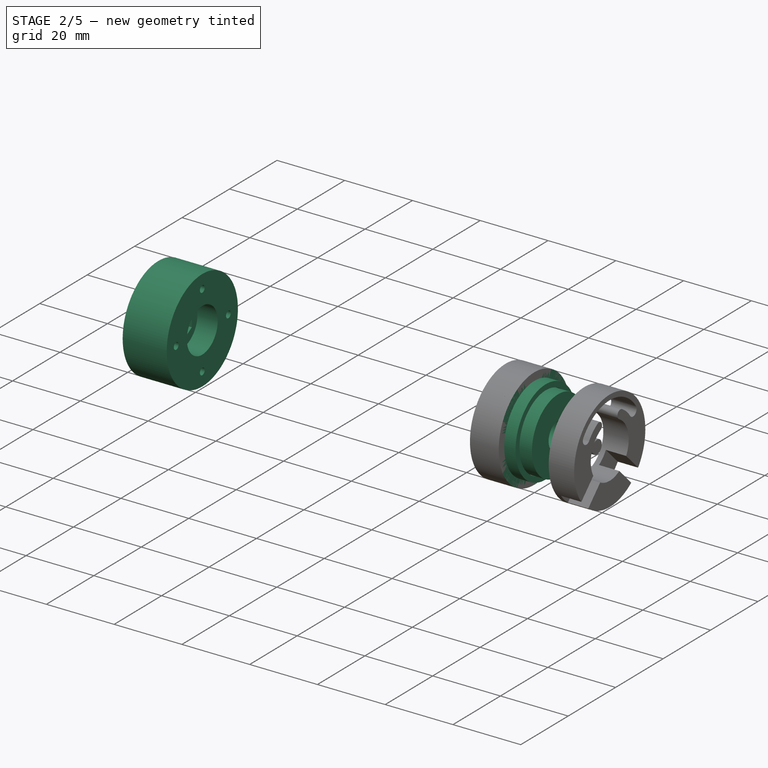
[diagram: stage 2 of 5 — iso view after this stage's code; geometry added in this stage tinted green]
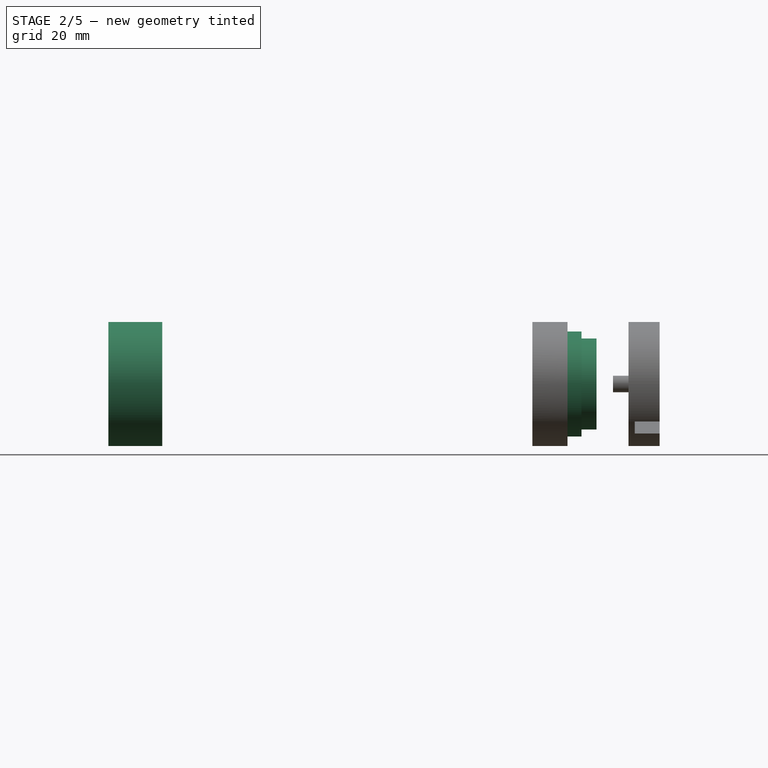
[diagram: stage 2 of 5 — front view after this stage's code; geometry added in this stage tinted green]
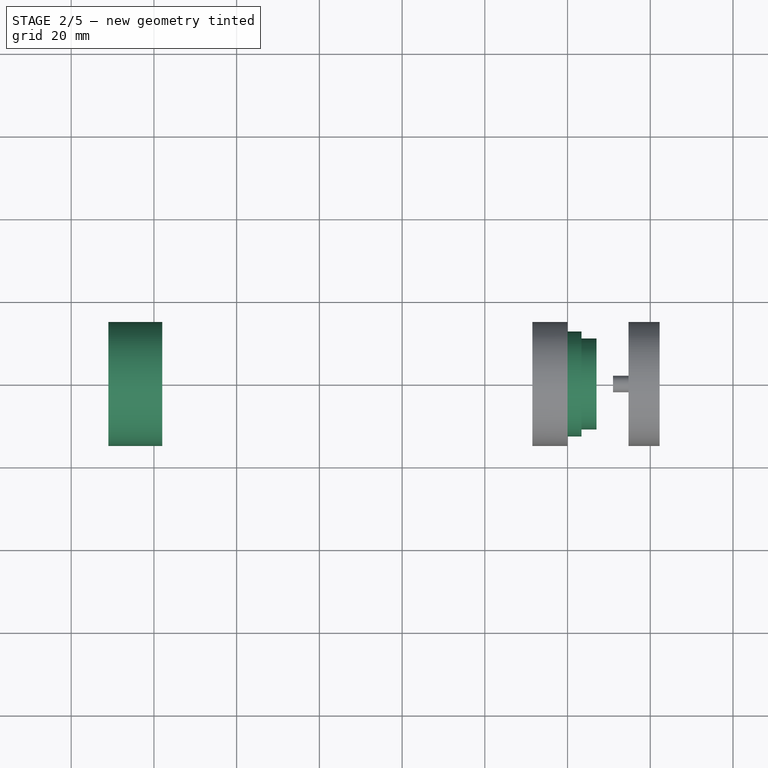
[diagram: stage 2 of 5 — top view after this stage's code; geometry added in this stage tinted green]
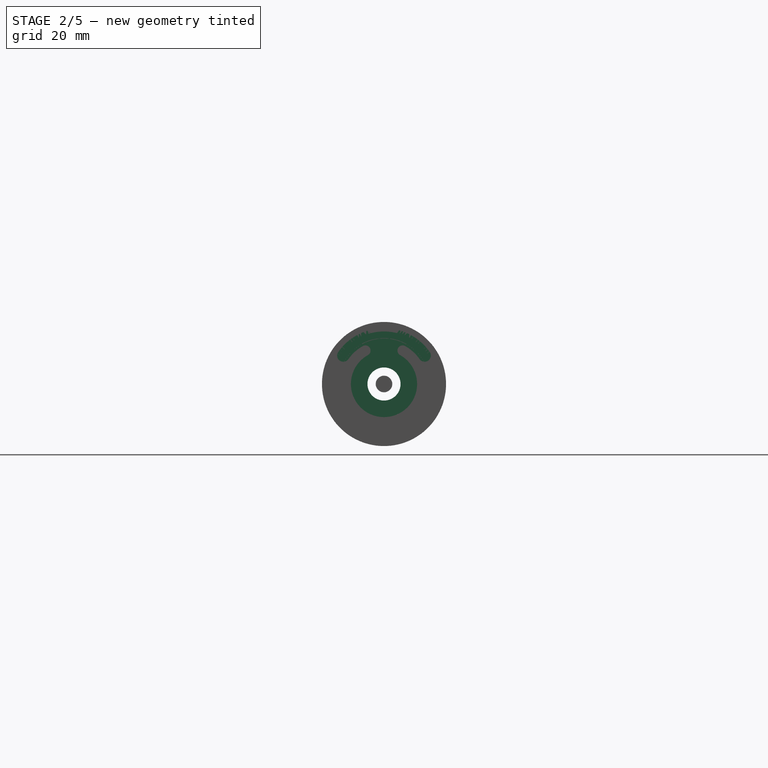
[diagram: stage 2 of 5 — right view after this stage's code; geometry added in this stage tinted green]
FEATURE [PartDesign::Body] Body021
  BaseFeature = -> Cut002
  Group = -> [BaseFeature002,Sketch062,Groove002,Sketch061,Pocket020,PolarPattern010,Sketch052,Pocket017,PolarPattern012,Sketch064,Pocket021]
  Origin = -> Origin024
  Tip = -> Pocket021
FEATURE [App::Part] Part003  label="pulley_servo_mk003"
  Group = -> [Cut002,Body019,Body020,Body021]
  Origin = -> Origin023
  Placement = pos=(-49,0,0) rot=(0,0,1;0rad)
FEATURE [Sketcher::SketchObject] Sketch065
  FullyConstrained = true
  MapMode = 5
  Placement = pos=(0,0,0) rot=(0.57735,0.57735,0.57735;2.0944rad)
  Support = -> [YZ_Plane027]
  sketch-geometry (2):
    g0: Circle CenterX=0 CenterY=0 CenterZ=0 NormalX=0 NormalY=0 NormalZ=1 AngleXU=0 Radius=2.5
    g1: Circle CenterX=0 CenterY=0 CenterZ=0 NormalX=0 NormalY=0 NormalZ=1 AngleXU=0 Radius=6.5
  constraints (4):
    c: Coincident(g0,g-1)
    c: Coincident(g1,g0)
    c: Radius(g0) = 2.5
    c: Radius(g1) = 6.5
FEATURE [PartDesign::Pad] Pad034
  Direction = (1,1,1)
  Length = 6
  Length2 = 100
  Placement = pos=(0,0,0) rot=(0.57735,0.57735,0.57735;2.0944rad)
  Profile = -> Sketch065
  Type = 0
FEATURE [Sketcher::SketchObject] Sketch066
  ExternalGeometry = -> [Pad034]
  FullyConstrained = false
  MapMode = 5
  Placement = pos=(0,0,0) rot=(0.57735,0.57735,-0.57735;4.18879rad)
  Support = -> [Pad034]
  sketch-geometry (2):
    g0: Circle CenterX=0 CenterY=0 CenterZ=0 NormalX=0 NormalY=0 NormalZ=1 AngleXU=0 Radius=5
    g1: Circle CenterX=0 CenterY=0 CenterZ=0 NormalX=0 NormalY=0 NormalZ=1 AngleXU=0 Radius=2.52244
  constraints (2):
    c: Radius(g0) = 5
    c: Coincident(g1,g0)
FEATURE [PartDesign::Pad] Pad035
  BaseFeature = -> Pad034
  Direction = (1,1,1)
  Length = 7
  Length2 = 100
  Placement = pos=(0,0,0) rot=(0.57735,0.57735,0.57735;2.0944rad)
  Profile = -> Sketch066
  Type = 0
FEATURE [Sketcher::SketchObject] Sketch067
  ExternalGeometry = -> [Pad035]
  FullyConstrained = true
  MapMode = 5
  Placement = pos=(-7,3.1e-15,-3.1e-15) rot=(0.57735,0.57735,-0.57735;4.18879rad)
  Support = -> [Pad035]
  sketch-geometry (2):
    g0: Circle CenterX=0 CenterY=0 CenterZ=0 NormalX=0 NormalY=0 NormalZ=1 AngleXU=0 Radius=2.52244
    g1: Circle CenterX=0 CenterY=0 CenterZ=0 NormalX=0 NormalY=0 NormalZ=1 AngleXU=0 Radius=6.5
  constraints (4):
    c: Coincident(g0,g-1)
    c: Tangent(g0,g-4)
    c: Coincident(g1,g0)
    c: Tangent(g1,g-3)
FEATURE [PartDesign::Pad] Pad036
  BaseFeature = -> Pad035
  Direction = (1,1,1)
  Length = 1
  Length2 = 100
  Placement = pos=(0,0,0) rot=(0.57735,0.57735,0.57735;2.0944rad)
  Profile = -> Sketch067
  Type = 0
FEATURE [Sketcher::SketchObject] Sketch068
  ExternalGeometry = -> [Pad036]
  FullyConstrained = true
  MapMode = 5
  Placement = pos=(0,0,0) rot=(1,0,0;1.5708rad)
  Support = -> [XZ_Plane027]
  sketch-geometry (1):
    g0: Circle CenterX=3 CenterY=0 CenterZ=0 NormalX=0 NormalY=0 NormalZ=1 AngleXU=0 Radius=1
  constraints (3):
    c: PointOnObject(g0,g-1)
    c: Radius(g0) = 1
    c: DistanceX(g0,g-3) = 3
FEATURE [PartDesign::Pad] Pad037  label="tornillo004"
  BaseFeature = -> Pad036
  Direction = (1,1,1)
  Length = 7
  Length2 = 100
  Placement = pos=(0,0,0) rot=(0.57735,0.57735,0.57735;2.0944rad)
  Profile = -> Sketch068
  Type = 0
FEATURE [PartDesign::Body] Body022  label="polea005"
  Group = -> [Sketch065,Pad034,Sketch066,Pad035,Sketch067,Pad036,Sketch068,Pad037]
  Origin = -> Origin027
  Placement = pos=(-98,0,0) rot=(0,0.92388,-0.382683;3.14159rad)
  Tip = -> Pad037
FEATURE [Sketcher::SketchObject] Sketch072
  FullyConstrained = true
  MapMode = 5
  Support = -> [XY_Plane028]
  sketch-geometry (1):
    g0: Circle CenterX=0 CenterY=0 CenterZ=0 NormalX=0 NormalY=0 NormalZ=1 AngleXU=0 Radius=15
  constraints (2):
    c: Coincident(g0,g-1)
    c: Radius(g0) = 15
FEATURE [PartDesign::Pad] Pad038
  Direction = (1,1,1)
  Length = 13
  Length2 = 100
  Profile = -> Sketch072
  Type = 0
FEATURE [Sketcher::SketchObject] Sketch071
  FullyConstrained = true
  MapMode = 5
  Placement = pos=(0,0,13) rot=(0,0,1;0rad)
  Support = -> [Pad038]
  sketch-geometry (4):
    g0: ArcOfCircle CenterX=0 CenterY=0 CenterZ=0 NormalX=0 NormalY=0 NormalZ=1 AngleXU=0 Radius=5.5 StartAngle=2.85054 EndAngle=6.57423
    g1: ArcOfCircle CenterX=0 CenterY=11.5 CenterZ=0 NormalX=0 NormalY=0 NormalZ=1 AngleXU=0 Radius=2.2 StartAngle=0.291048 EndAngle=2.85054
    g2: LineSegment StartX=-2.10748 StartY=12.1313 StartZ=0 EndX=-5.26869 EndY=1.57826 EndZ=0
    g3: LineSegment StartX=2.10748 StartY=12.1313 StartZ=0 EndX=5.26869 EndY=1.57826 EndZ=0
  constraints (9):
    c: Coincident(g0,g-1)
    c: Radius(g0) = 5.5
    c: PointOnObject(g1,g-2)
    c: Radius(g1) = 2.2
    c: DistanceY(g1) = 11.5
    c: Tangent(g1,g3) = 1.5708
    c: Tangent(g1,g2) = -1.5708
    c: Tangent(g0,g2) = -1.5708
    c: Tangent(g0,g3) = 1.5708
FEATURE [PartDesign::Pocket] Pocket022
  BaseFeature = -> Pad038
  Length = 2.5
  Length2 = 100
  Profile = -> Sketch071
  Type = 0
FEATURE [PartDesign::PolarPattern] PolarPattern015
  Angle = 360
  Axis = -> Sketch071 [N_Axis]
  BaseFeature = -> Pocket022
  Occurrences = 4
  Originals = -> [Pocket022]
FEATURE [Sketcher::SketchObject] Sketch069
  FullyConstrained = true
  MapMode = 5
  Placement = pos=(0,0,10.5) rot=(0,0,1;0rad)
  Support = -> [PolarPattern015]
  sketch-geometry (2):
    g0: GeomPoint X=0 Y=11 Z=0
    g1: Circle CenterX=0 CenterY=11 CenterZ=0 NormalX=0 NormalY=0 NormalZ=1 AngleXU=0 Radius=0.6
  constraints (4):
    c: PointOnObject(g0,g-2)
    c: DistanceY(g-1,g0) = 11
    c: Coincident(g1,g0)
    c: Radius(g1) = 0.6
FEATURE [PartDesign::Hole] Hole005
  BaseFeature = -> PolarPattern015
  Depth = 25
  DepthType = 1
  Diameter = 2
  DrillForDepth = false
  DrillPoint = 1
  DrillPointAngle = 118
  HoleCutCountersinkAngle = 90
  HoleCutCustomValues = false
  HoleCutDepth = 0
  HoleCutDiameter = 6.1
  HoleCutType = 0
  ModelActualThread = false
  Profile = -> Sketch069
  Tapered = false
  TaperedAngle = 90
  ThreadAngle = 0
  ThreadClass = 0
  ThreadCutOffInner = 0
  ThreadCutOffOuter = 0
  ThreadDirection = 0
  ThreadFit = 0
  ThreadPitch = 0
  ThreadSize = 0
  ThreadType = 0
  Threaded = false
FEATURE [PartDesign::PolarPattern] PolarPattern014
  Angle = 360
  Axis = -> Sketch069 [N_Axis]
  BaseFeature = -> Hole005
  Occurrences = 4
  Originals = -> [Hole005]
FEATURE [Sketcher::SketchObject] Sketch070
  FullyConstrained = true
  MapMode = 5
  Placement = pos=(0,0,10.5) rot=(0,0,1;0rad)
  Support = -> [PolarPattern014]
  sketch-geometry (1):
    g0: Circle CenterX=0 CenterY=0 CenterZ=0 NormalX=0 NormalY=0 NormalZ=1 AngleXU=0 Radius=4
  constraints (2):
    c: Coincident(g0,g-1)
    c: Radius(g0) = 4
FEATURE [PartDesign::Pocket] Pocket023
  BaseFeature = -> PolarPattern014
  Length = 2
  Length2 = 100
  Profile = -> Sketch070
  Type = 1
FEATURE [Sketcher::SketchObject] Sketch073
  ExternalGeometry = -> [Pocket023]
  FullyConstrained = true
  MapMode = 5
  Placement = pos=(0,0,10.5) rot=(0,0,1;0rad)
  Support = -> [Pocket023]
  sketch-geometry (7):
    g0: LineSegment StartX=-2.396 StartY=4.15 StartZ=0 EndX=-4.79201 EndY=4.245e-13 EndZ=0
    g1: LineSegment StartX=-4.79201 StartY=4.245e-13 StartZ=0 EndX=-2.396 EndY=-4.15 EndZ=0
    g2: LineSegment StartX=-2.396 StartY=-4.15 StartZ=0 EndX=2.396 EndY=-4.15 EndZ=0
    g3: LineSegment StartX=2.396 StartY=-4.15 StartZ=0 EndX=4.79201 EndY=4.254e-13 EndZ=0
    g4: LineSegment StartX=4.79201 StartY=4.254e-13 StartZ=0 EndX=2.396 EndY=4.15 EndZ=0
    g5: LineSegment StartX=2.396 StartY=4.15 StartZ=0 EndX=-2.396 EndY=4.15 EndZ=0
    g6: Circle CenterX=0 CenterY=0 CenterZ=0 NormalX=0 NormalY=0 NormalZ=1 AngleXU=0 Radius=4.79201
  constraints (16):
    c: Coincident(g0,g1)
    c: Coincident(g1,g2)
    c: Coincident(g2,g3)
    c: Coincident(g3,g4)
    c: Coincident(g4,g5)
    c: Coincident(g5,g0)
    c: Equal(g0, g1-g5) x5
    c: PointOnObject(g0,g6)
    c: PointOnObject(g1,g6)
    c: PointOnObject(g2,g6)
    c: PointOnObject(g3,g6)
    c: PointOnObject(g4,g6)
    c: PointOnObject(g5,g6)
    c: Coincident(g6,g-1)
    c: Horizontal(g5)
    c: DistanceY(g1,g0) = 8.3
FEATURE [PartDesign::Pocket] Pocket024
  BaseFeature = -> Pocket023
  Length = 4.5
  Length2 = 100
  Profile = -> Sketch073
  Type = 0
FEATURE [PartDesign::Body] Body023  label="rueda_polea_mk004"
  Group = -> [Sketch072,Pad038,Sketch071,Pocket022,PolarPattern015,Sketch069,Hole005,PolarPattern014,Sketch070,Pocket023,Sketch073,Pocket024]
  Origin = -> Origin028
  Placement = pos=(-98,0,1.7e-14) rot=(0,-1,0;1.5708rad)
  Tip = -> Pocket024
FEATURE [Part::Cut] Cut003
  Base = -> Body023
  Tool = -> Body022
FEATURE [PartDesign::FeatureBase] BaseFeature003
  BaseFeature = -> Cut003
FEATURE [PartDesign::Body] Body024
  BaseFeature = -> Cut003
  Group = -> [BaseFeature003,Hole006,PolarPattern016,Sketch074,Pocket025,PolarPattern017]
  Origin = -> Origin029
  Placement = pos=(0,0,0) rot=(-1,0,0;0.785398rad)
  Tip = -> PolarPattern017
FEATURE [App::Part] Part004  label="pullet_servo_mk4"
  Group = -> [Body024,Body022,Body023,Cut003]
  Origin = -> Origin026
FEATURE [Sketcher::SketchObject] Sketch075
  FullyConstrained = true
  MapMode = 5
  Placement = pos=(0,0,0) rot=(0.57735,0.57735,0.57735;2.0944rad)
  Support = -> [YZ_Plane031]
  sketch-geometry (2):
    g0: Circle CenterX=0 CenterY=0 CenterZ=0 NormalX=0 NormalY=0 NormalZ=1 AngleXU=0 Radius=2.5
    g1: Circle CenterX=0 CenterY=0 CenterZ=0 NormalX=0 NormalY=0 NormalZ=1 AngleXU=0 Radius=6.5
  constraints (4):
    c: Coincident(g0,g-1)
    c: Coincident(g1,g0)
    c: Radius(g0) = 2.5
    c: Radius(g1) = 6.5
FEATURE [PartDesign::Pad] Pad039
  Direction = (1,1,1)
  Length = 6
  Length2 = 100
  Placement = pos=(0,0,0) rot=(0.57735,0.57735,0.57735;2.0944rad)
  Profile = -> Sketch075
  Type = 0
FEATURE [Sketcher::SketchObject] Sketch076
  ExternalGeometry = -> [Pad039]
  FullyConstrained = false
  MapMode = 5
  Placement = pos=(0,0,0) rot=(0.57735,0.57735,-0.57735;4.18879rad)
  Support = -> [Pad039]
  sketch-geometry (2):
    g0: Circle CenterX=0 CenterY=0 CenterZ=0 NormalX=0 NormalY=0 NormalZ=1 AngleXU=0 Radius=5
    g1: Circle CenterX=0 CenterY=0 CenterZ=0 NormalX=0 NormalY=0 NormalZ=1 AngleXU=0 Radius=2.52244
  constraints (2):
    c: Radius(g0) = 5
    c: Coincident(g1,g0)
FEATURE [PartDesign::Pad] Pad040
  BaseFeature = -> Pad039
  Direction = (1,1,1)
  Length = 7
  Length2 = 100
  Placement = pos=(0,0,0) rot=(0.57735,0.57735,0.57735;2.0944rad)
  Profile = -> Sketch076
  Type = 0
FEATURE [Sketcher::SketchObject] Sketch077
  ExternalGeometry = -> [Pad040]
  FullyConstrained = true
  MapMode = 5
  Placement = pos=(-7,3.1e-15,-3.1e-15) rot=(0.57735,0.57735,-0.57735;4.18879rad)
  Support = -> [Pad040]
  sketch-geometry (2):
    g0: Circle CenterX=0 CenterY=0 CenterZ=0 NormalX=0 NormalY=0 NormalZ=1 AngleXU=0 Radius=2.52244
    g1: Circle CenterX=0 CenterY=0 CenterZ=0 NormalX=0 NormalY=0 NormalZ=1 AngleXU=0 Radius=6.5
  constraints (4):
    c: Coincident(g0,g-1)
    c: Tangent(g0,g-4)
    c: Coincident(g1,g0)
    c: Tangent(g1,g-3)
FEATURE [PartDesign::Pad] Pad041
  BaseFeature = -> Pad040
  Direction = (1,1,1)
  Length = 1
  Length2 = 100
  Placement = pos=(0,0,0) rot=(0.57735,0.57735,0.57735;2.0944rad)
  Profile = -> Sketch077
  Type = 0
FEATURE [Sketcher::SketchObject] Sketch078
  ExternalGeometry = -> [Pad041]
  FullyConstrained = true
  MapMode = 5
  Placement = pos=(0,0,0) rot=(1,0,0;1.5708rad)
  Support = -> [XZ_Plane031]
  sketch-geometry (1):
    g0: Circle CenterX=3 CenterY=0 CenterZ=0 NormalX=0 NormalY=0 NormalZ=1 AngleXU=0 Radius=1
  constraints (3):
    c: PointOnObject(g0,g-1)
    c: Radius(g0) = 1
    c: DistanceX(g0,g-3) = 3
FEATURE [PartDesign::Pad] Pad042  label="tornillo005"
  BaseFeature = -> Pad041
  Direction = (1,1,1)
  Length = 7
  Length2 = 100
  Placement = pos=(0,0,0) rot=(0.57735,0.57735,0.57735;2.0944rad)
  Profile = -> Sketch078
  Type = 0
FEATURE [PartDesign::Body] Body025  label="polea006"
  Group = -> [Sketch075,Pad039,Sketch076,Pad040,Sketch077,Pad041,Sketch078,Pad042]
  Origin = -> Origin031
  Placement = pos=(0,0,0) rot=(0,0.92388,0.382683;3.14159rad)
  Tip = -> Pad042
FEATURE [Sketcher::SketchObject] Sketch082
  FullyConstrained = true
  MapMode = 5
  Support = -> [XY_Plane032]
  sketch-geometry (1):
    g0: Circle CenterX=0 CenterY=0 CenterZ=0 NormalX=0 NormalY=0 NormalZ=1 AngleXU=0 Radius=15
  constraints (2):
    c: Coincident(g0,g-1)
    c: Radius(g0) = 15
FEATURE [PartDesign::Pad] Pad043
  Direction = (1,1,1)
  Length = 8.5
  Length2 = 100
  Profile = -> Sketch082
  Type = 0
FEATURE [Sketcher::SketchObject] Sketch081
  FullyConstrained = true
  MapMode = 5
  Placement = pos=(0,0,8.5) rot=(0,0,1;0rad)
  Support = -> [Pad043]
  sketch-geometry (4):
    g0: ArcOfCircle CenterX=0 CenterY=0 CenterZ=0 NormalX=0 NormalY=0 NormalZ=1 AngleXU=0 Radius=5.5 StartAngle=2.85054 EndAngle=6.57423
    g1: ArcOfCircle CenterX=0 CenterY=11.5 CenterZ=0 NormalX=0 NormalY=0 NormalZ=1 AngleXU=0 Radius=2.2 StartAngle=0.291048 EndAngle=2.85054
    g2: LineSegment StartX=-2.10748 StartY=12.1313 StartZ=0 EndX=-5.26869 EndY=1.57826 EndZ=0
    g3: LineSegment StartX=2.10748 StartY=12.1313 StartZ=0 EndX=5.26869 EndY=1.57826 EndZ=0
  constraints (9):
    c: Coincident(g0,g-1)
    c: Radius(g0) = 5.5
    c: PointOnObject(g1,g-2)
    c: Radius(g1) = 2.2
    c: DistanceY(g1) = 11.5
    c: Tangent(g1,g3) = 1.5708
    c: Tangent(g1,g2) = -1.5708
    c: Tangent(g0,g2) = -1.5708
    c: Tangent(g0,g3) = 1.5708
FEATURE [PartDesign::Pocket] Pocket027
  BaseFeature = -> Pad043
  Length = 2.5
  Length2 = 100
  Profile = -> Sketch081
  Type = 0
FEATURE [PartDesign::PolarPattern] PolarPattern019
  Angle = 360
  Axis = -> Sketch081 [N_Axis]
  BaseFeature = -> Pocket027
  Occurrences = 4
  Originals = -> [Pocket027]
FEATURE [Sketcher::SketchObject] Sketch079
  FullyConstrained = true
  MapMode = 5
  Placement = pos=(0,0,6) rot=(0,0,1;0rad)
  Support = -> [PolarPattern019]
  sketch-geometry (2):
    g0: GeomPoint X=0 Y=11 Z=0
    g1: Circle CenterX=0 CenterY=11 CenterZ=0 NormalX=0 NormalY=0 NormalZ=1 AngleXU=0 Radius=0.6
  constraints (4):
    c: PointOnObject(g0,g-2)
    c: DistanceY(g-1,g0) = 11
    c: Coincident(g1,g0)
    c: Radius(g1) = 0.6
FEATURE [PartDesign::Hole] Hole007
  BaseFeature = -> PolarPattern019
  Depth = 25
  DepthType = 0
  Diameter = 2
  DrillForDepth = false
  DrillPoint = 1
  DrillPointAngle = 118
  HoleCutCountersinkAngle = 90
  HoleCutCustomValues = false
  HoleCutDepth = 0
  HoleCutDiameter = 6.1
  HoleCutType = 0
  ModelActualThread = false
  Profile = -> Sketch079
  Tapered = false
  TaperedAngle = 90
  ThreadAngle = 0
  ThreadClass = 0
  ThreadCutOffInner = 0
  ThreadCutOffOuter = 0
  ThreadDirection = 0
  ThreadFit = 0
  ThreadPitch = 0
  ThreadSize = 0
  ThreadType = 0
  Threaded = false
FEATURE [PartDesign::PolarPattern] PolarPattern018
  Angle = 360
  Axis = -> Sketch079 [N_Axis]
  BaseFeature = -> Hole007
  Occurrences = 4
  Originals = -> [Hole007]
FEATURE [Sketcher::SketchObject] Sketch080
  FullyConstrained = true
  MapMode = 5
  Placement = pos=(0,0,6) rot=(0,0,1;0rad)
  Support = -> [PolarPattern018]
  sketch-geometry (1):
    g0: Circle CenterX=0 CenterY=0 CenterZ=0 NormalX=0 NormalY=0 NormalZ=1 AngleXU=0 Radius=4
  constraints (2):
    c: Coincident(g0,g-1)
    c: Radius(g0) = 4
FEATURE [PartDesign::Pocket] Pocket026
  BaseFeature = -> PolarPattern018
  Length = 2
  Length2 = 100
  Profile = -> Sketch080
  Type = 1
FEATURE [PartDesign::Body] Body026  label="rueda_servo001"
  Group = -> [Sketch082,Pad043,Sketch081,Pocket027,PolarPattern019,Sketch079,Hole007,PolarPattern018,Sketch080,Pocket026]
  Origin = -> Origin032
  Placement = pos=(0,0,2e-15) rot=(0,-1,0;1.5708rad)
  Tip = -> Pocket026
FEATURE [Part::Cut] Cut004
  Base = -> Body026
  Tool = -> Body025
FEATURE [PartDesign::FeatureBase] BaseFeature004
  BaseFeature = -> Cut004
FEATURE [Sketcher::SketchObject] Sketch083
  ExternalGeometry = -> [BaseFeature004]
  FullyConstrained = true
  MapMode = 5
  Placement = pos=(-8.5,0,0) rot=(0.57735,-0.57735,-0.57735;2.0944rad)
  Support = -> [BaseFeature004]
  sketch-geometry (9):
    g0: LineSegment StartX=0 StartY=0 StartZ=0 EndX=14.1421 EndY=-14.1421 EndZ=0
    g1: Circle CenterX=0 CenterY=0 CenterZ=0 NormalX=0 NormalY=0 NormalZ=1 AngleXU=0 Radius=20
    g2: LineSegment StartX=2.47487 StartY=-4.59619 StartZ=0 EndX=4.59619 EndY=-2.47487 EndZ=0
    g3: LineSegment StartX=4.59619 StartY=-2.47487 StartZ=0 EndX=12.3744 EndY=-10.253 EndZ=0
    g4: LineSegment StartX=12.3744 StartY=-10.253 StartZ=0 EndX=10.253 EndY=-12.3744 EndZ=0
    g5: LineSegment StartX=10.253 StartY=-12.3744 StartZ=0 EndX=2.47487 EndY=-4.59619 EndZ=0
    g6: Circle CenterX=0 CenterY=0 CenterZ=0 NormalX=0 NormalY=0 NormalZ=1 AngleXU=0 Radius=5
    g7: Circle CenterX=0 CenterY=0 CenterZ=0 NormalX=0 NormalY=0 NormalZ=1 AngleXU=0 Radius=16
    g8: Circle CenterX=4.59619 CenterY=-2.47487 CenterZ=0 NormalX=0 NormalY=0 NormalZ=1 AngleXU=0 Radius=3
  constraints (22):
    c: Coincident(g0,g-1)
    c: PointOnObject(g-3,g0)
    c: Coincident(g1,g-1)
    c: PointOnObject(g0,g1)
    c: Radius(g1) = 20
    c: Coincident(g3,g2)
    c: Coincident(g5,g2)
    c: Perpendicular(g5,g2)
    c: Perpendicular(g3,g2)
    c: Perpendicular(g5,g4)
    c: Coincident(g3,g4)
    c: Symmetric(g2,g2,g0)
    c: Coincident(g4,g5)
    c: Coincident(g6,g-1)
    c: Tangent(g6,g2)
    c: Radius(g6) = 5
    c: Coincident(g7,g-1)
    c: Tangent(g7,g4)
    c: Radius(g7) = 16
    c: Coincident(g8,g2)
    c: PointOnObject(g2,g8)
    c: Radius(g8) = 3
FEATURE [PartDesign::Pocket] Pocket028
  BaseFeature = -> BaseFeature004
  Length = 7
  Length2 = 100
  Profile = -> Sketch083
  Type = 0
FEATURE [PartDesign::PolarPattern] PolarPattern020
  Angle = 90
  Axis = -> Sketch083 [N_Axis]
  BaseFeature = -> Pocket028
  Occurrences = 2
  Originals = -> [Pocket028]
FEATURE [PartDesign::Body] Body027
  BaseFeature = -> Cut004
  Group = -> [BaseFeature004,Sketch083,Pocket028,PolarPattern020]
  Origin = -> Origin033
  Tip = -> PolarPattern020
FEATURE [App::Part] Part005  label="pulley_servo_mk5"
  Group = -> [Body025,Body026,Cut004,Body027]
  Origin = -> Origin030
FEATURE [Sketcher::SketchObject] Sketch084
  FullyConstrained = true
  MapMode = 5
  Placement = pos=(0,0,0) rot=(0.57735,0.57735,0.57735;2.0944rad)
  Support = -> [YZ_Plane034]
  sketch-geometry (2):
    g0: Circle CenterX=0 CenterY=0 CenterZ=0 NormalX=0 NormalY=0 NormalZ=1 AngleXU=0 Radius=11
    g1: Circle CenterX=0 CenterY=0 CenterZ=0 NormalX=0 NormalY=0 NormalZ=1 AngleXU=0 Radius=4
  constraints (4):
    c: Coincident(g0,g-1)
    c: Radius(g0) = 11
    c: Coincident(g1,g0)
    c: Radius(g1) = 4
FEATURE [PartDesign::Pad] Pad044
  Direction = (1,1,1)
  Length = 7
  Length2 = 100
  Placement = pos=(0,0,0) rot=(0.57735,0.57735,0.57735;2.0944rad)
  Profile = -> Sketch084
  Type = 0
FEATURE [PartDesign::Body] Body028  label="bearing8_22"
  Group = -> [Sketch084,Pad044]
  Origin = -> Origin034
  Tip = -> Pad044
FEATURE [Sketcher::SketchObject] Sketch085
  FullyConstrained = true
  MapMode = 5
  Placement = pos=(0,0,0) rot=(1,0,0;1.5708rad)
  Support = -> [XZ_Plane035]
  sketch-geometry (6):
    g0: LineSegment StartX=-1.36 StartY=11.1 StartZ=0 EndX=3.36 EndY=11.1 EndZ=0
    g1: LineSegment StartX=-1.36 StartY=11.1 StartZ=0 EndX=-1.36 EndY=14.3 EndZ=0
    g2: LineSegment StartX=-1.36 StartY=14.3 StartZ=0 EndX=0 EndY=14.3 EndZ=0
    g3: LineSegment StartX=0 StartY=14.3 StartZ=0 EndX=0 EndY=12.7 EndZ=0
    g4: LineSegment StartX=0 StartY=12.7 StartZ=0 EndX=3.36 EndY=12.7 EndZ=0
    g5: LineSegment StartX=3.36 StartY=12.7 StartZ=0 EndX=3.36 EndY=11.1 EndZ=0
  constraints (18):
    c: Horizontal(g0)
    c: Coincident(g1,g0)
    c: Coincident(g2,g1)
    c: Horizontal(g2)
    c: Coincident(g3,g2)
    c: Vertical(g3)
    c: Coincident(g4,g3)
    c: Horizontal(g4)
    c: Coincident(g5,g4)
    c: Coincident(g5,g0)
    c: Vertical(g5)
    c: DistanceX(g2,g2) = 1.36
    c: DistanceX(g0,g0) = 4.72
    c: Vertical(g1)
    c: PointOnObject(g2,g-2)
    c: DistanceY(g5,g5) = 1.6
    c: DistanceY(g3,g3) = 1.6
    c: DistanceY(g0) = 11.1
FEATURE [PartDesign::Revolution] Revolution001
  Angle = 360
  Axis = (1,0,0)
  Base = (0,0,0)
  Placement = pos=(0,0,0) rot=(1,0,0;1.5708rad)
  Profile = -> Sketch085
  ReferenceAxis = -> X_Axis035
  Reversed = true
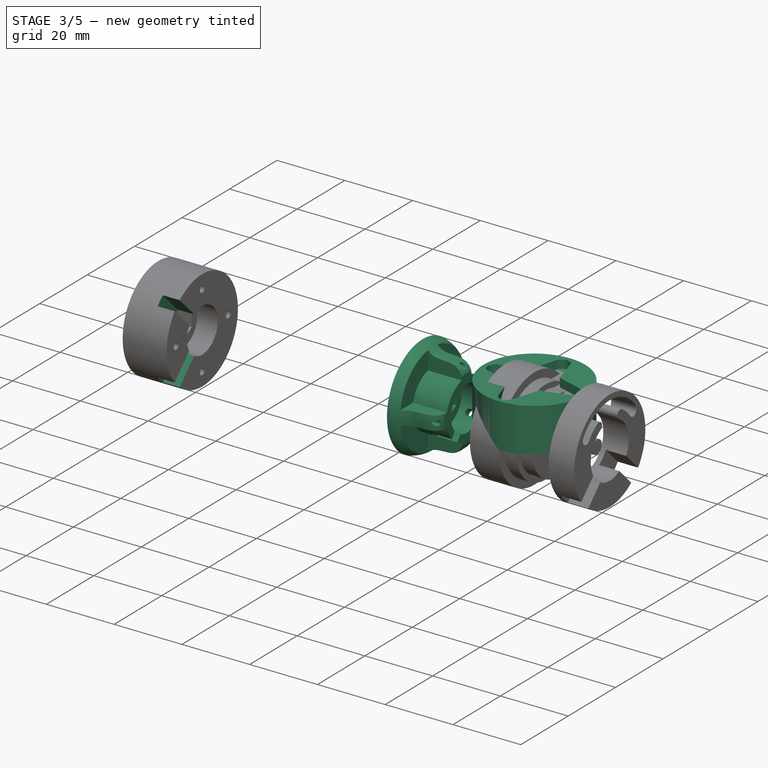
[diagram: stage 3 of 5 — iso view after this stage's code; geometry added in this stage tinted green]
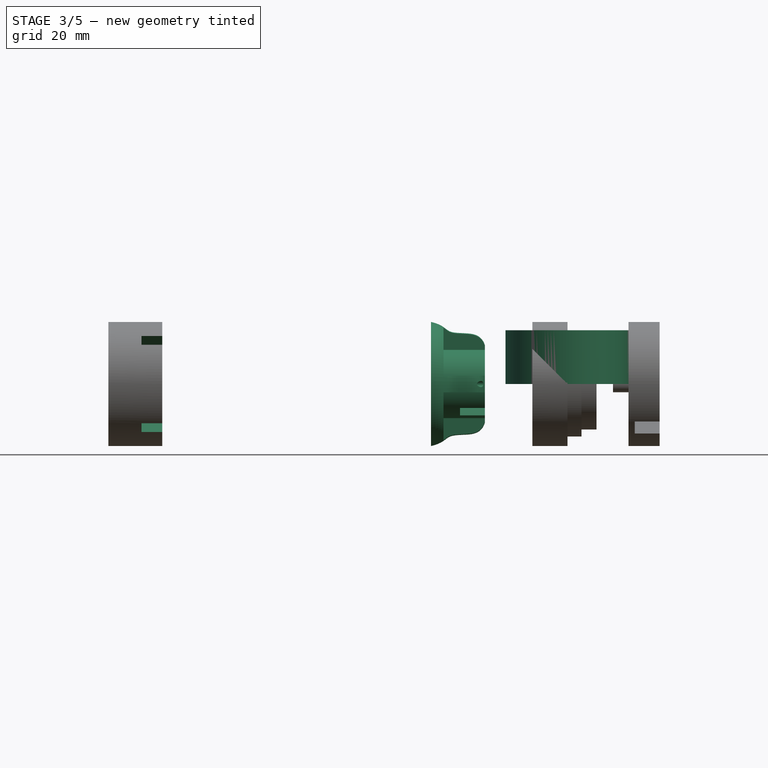
[diagram: stage 3 of 5 — front view after this stage's code; geometry added in this stage tinted green]
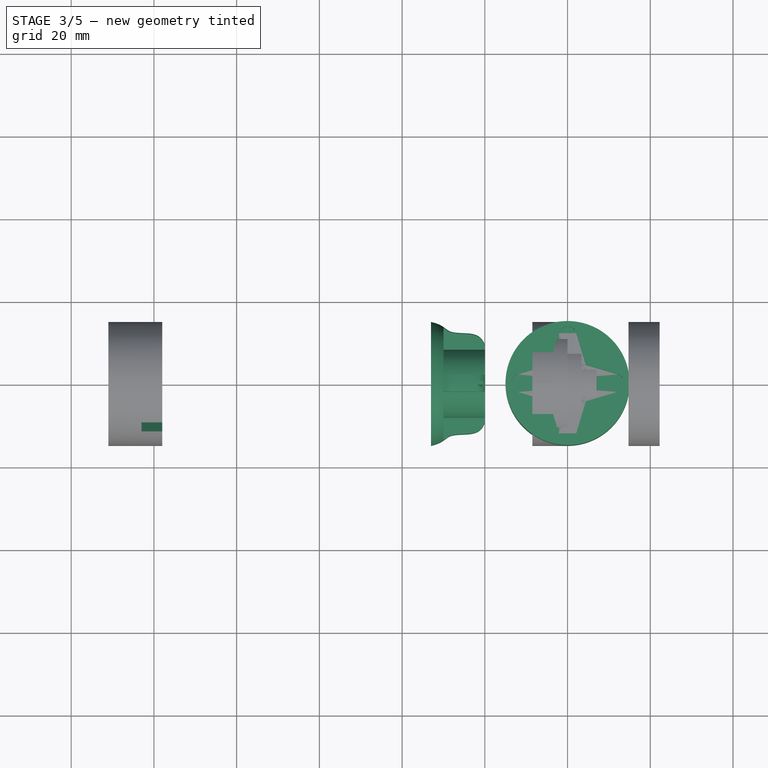
[diagram: stage 3 of 5 — top view after this stage's code; geometry added in this stage tinted green]
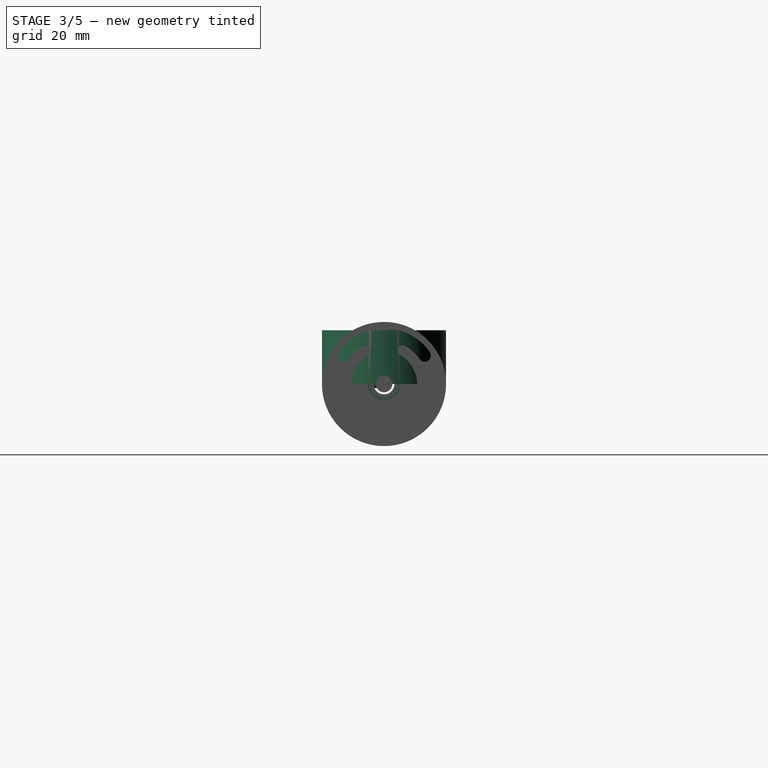
[diagram: stage 3 of 5 — right view after this stage's code; geometry added in this stage tinted green]
FEATURE [Sketcher::SketchObject] Sketch043
  FullyConstrained = true
  MapMode = 5
  Support = -> [XY_Plane018]
  sketch-geometry (1):
    g0: Circle CenterX=0 CenterY=0 CenterZ=0 NormalX=0 NormalY=0 NormalZ=1 AngleXU=0 Radius=15
  constraints (2):
    c: Coincident(g0,g-1)
    c: Radius(g0) = 15
FEATURE [PartDesign::Pad] Pad024
  Direction = (1,1,1)
  Length = 13
  Length2 = 100
  Profile = -> Sketch043
  Type = 0
FEATURE [Sketcher::SketchObject] Sketch042
  FullyConstrained = true
  MapMode = 5
  Placement = pos=(0,0,13) rot=(0,0,1;0rad)
  Support = -> [Pad024]
  sketch-geometry (4):
    g0: ArcOfCircle CenterX=0 CenterY=0 CenterZ=0 NormalX=0 NormalY=0 NormalZ=1 AngleXU=0 Radius=5.5 StartAngle=2.85054 EndAngle=6.57423
    g1: ArcOfCircle CenterX=0 CenterY=11.5 CenterZ=0 NormalX=0 NormalY=0 NormalZ=1 AngleXU=0 Radius=2.2 StartAngle=0.291048 EndAngle=2.85054
    g2: LineSegment StartX=-2.10748 StartY=12.1313 StartZ=0 EndX=-5.26869 EndY=1.57826 EndZ=0
    g3: LineSegment StartX=2.10748 StartY=12.1313 StartZ=0 EndX=5.26869 EndY=1.57826 EndZ=0
  constraints (9):
    c: Coincident(g0,g-1)
    c: Radius(g0) = 5.5
    c: PointOnObject(g1,g-2)
    c: Radius(g1) = 2.2
    c: DistanceY(g1) = 11.5
    c: Tangent(g1,g3) = 1.5708
    c: Tangent(g1,g2) = -1.5708
    c: Tangent(g0,g2) = -1.5708
    c: Tangent(g0,g3) = 1.5708
FEATURE [PartDesign::Pocket] Pocket011
  BaseFeature = -> Pad024
  Length = 2.5
  Length2 = 100
  Profile = -> Sketch042
  Type = 0
FEATURE [PartDesign::PolarPattern] PolarPattern007
  Angle = 360
  Axis = -> Sketch042 [N_Axis]
  BaseFeature = -> Pocket011
  Occurrences = 4
  Originals = -> [Pocket011]
FEATURE [PartDesign::Body] Body016  label="rueda_polea_mk2"
  Group = -> [Sketch043,Pad024,Sketch042,Pocket011,PolarPattern007,Sketch040,Hole003,PolarPattern006,Sketch041,Pocket012,Sketch044,Pocket013]
  Origin = -> Origin018
  Placement = pos=(-20,0,0) rot=(0,-1,0;1.5708rad)
  Tip = -> Pocket013
FEATURE [Sketcher::SketchObject] Sketch045
  FullyConstrained = true
  MapMode = 5
  Placement = pos=(0,0,0) rot=(0.57735,0.57735,0.57735;2.0944rad)
  Support = -> [YZ_Plane019]
  sketch-geometry (2):
    g0: Circle CenterX=0 CenterY=0 CenterZ=0 NormalX=0 NormalY=0 NormalZ=1 AngleXU=0 Radius=2.5
    g1: Circle CenterX=0 CenterY=0 CenterZ=0 NormalX=0 NormalY=0 NormalZ=1 AngleXU=0 Radius=6.5
  constraints (4):
    c: Coincident(g0,g-1)
    c: Coincident(g1,g0)
    c: Radius(g0) = 2.5
    c: Radius(g1) = 6.5
FEATURE [PartDesign::Pad] Pad025
  Direction = (1,1,1)
  Length = 6
  Length2 = 100
  Placement = pos=(0,0,0) rot=(0.57735,0.57735,0.57735;2.0944rad)
  Profile = -> Sketch045
  Type = 0
FEATURE [Sketcher::SketchObject] Sketch046
  ExternalGeometry = -> [Pad025]
  FullyConstrained = false
  MapMode = 5
  Placement = pos=(0,0,0) rot=(0.57735,0.57735,-0.57735;4.18879rad)
  Support = -> [Pad025]
  sketch-geometry (2):
    g0: Circle CenterX=0 CenterY=0 CenterZ=0 NormalX=0 NormalY=0 NormalZ=1 AngleXU=0 Radius=5
    g1: Circle CenterX=0 CenterY=0 CenterZ=0 NormalX=0 NormalY=0 NormalZ=1 AngleXU=0 Radius=2.52244
  constraints (2):
    c: Radius(g0) = 5
    c: Coincident(g1,g0)
FEATURE [PartDesign::Pad] Pad026
  BaseFeature = -> Pad025
  Direction = (1,1,1)
  Length = 7
  Length2 = 100
  Placement = pos=(0,0,0) rot=(0.57735,0.57735,0.57735;2.0944rad)
  Profile = -> Sketch046
  Type = 0
FEATURE [Sketcher::SketchObject] Sketch047
  ExternalGeometry = -> [Pad026]
  FullyConstrained = true
  MapMode = 5
  Placement = pos=(-7,3.1e-15,-3.1e-15) rot=(0.57735,0.57735,-0.57735;4.18879rad)
  Support = -> [Pad026]
  sketch-geometry (2):
    g0: Circle CenterX=0 CenterY=0 CenterZ=0 NormalX=0 NormalY=0 NormalZ=1 AngleXU=0 Radius=2.52244
    g1: Circle CenterX=0 CenterY=0 CenterZ=0 NormalX=0 NormalY=0 NormalZ=1 AngleXU=0 Radius=6.5
  constraints (4):
    c: Coincident(g0,g-1)
    c: Tangent(g0,g-4)
    c: Coincident(g1,g0)
    c: Tangent(g1,g-3)
FEATURE [PartDesign::Pad] Pad027
  BaseFeature = -> Pad026
  Direction = (1,1,1)
  Length = 1
  Length2 = 100
  Placement = pos=(0,0,0) rot=(0.57735,0.57735,0.57735;2.0944rad)
  Profile = -> Sketch047
  Type = 0
FEATURE [Sketcher::SketchObject] Sketch048
  ExternalGeometry = -> [Pad027]
  FullyConstrained = true
  MapMode = 5
  Placement = pos=(0,0,0) rot=(1,0,0;1.5708rad)
  Support = -> [XZ_Plane019]
  sketch-geometry (1):
    g0: Circle CenterX=3 CenterY=0 CenterZ=0 NormalX=0 NormalY=0 NormalZ=1 AngleXU=0 Radius=1
  constraints (3):
    c: PointOnObject(g0,g-1)
    c: Radius(g0) = 1
    c: DistanceX(g0,g-3) = 3
FEATURE [PartDesign::Pad] Pad028  label="tornillo002"
  BaseFeature = -> Pad027
  Direction = (1,1,1)
  Length = 7
  Length2 = 100
  Placement = pos=(0,0,0) rot=(0.57735,0.57735,0.57735;2.0944rad)
  Profile = -> Sketch048
  Type = 0
FEATURE [PartDesign::Body] Body018
  BaseFeature = -> Cut001
  Group = -> [BaseFeature001,Sketch049,Groove001,Sketch050,Pocket014,PolarPattern008,Sketch051,Pocket015,PolarPattern009]
  Origin = -> Origin021
  Tip = -> PolarPattern009
FEATURE [App::Part] Part002  label="pulley_servo_mk2"
  Group = -> [Cut001,Body017,Body016,Body018]
  Origin = -> Origin020
  Placement = pos=(-35,0,0) rot=(0,0,1;0rad)
FEATURE [Sketcher::SketchObject] Sketch054
  FullyConstrained = true
  MapMode = 5
  Placement = pos=(0,0,0) rot=(0.57735,0.57735,0.57735;2.0944rad)
  Support = -> [YZ_Plane024]
  sketch-geometry (2):
    g0: Circle CenterX=0 CenterY=0 CenterZ=0 NormalX=0 NormalY=0 NormalZ=1 AngleXU=0 Radius=2.5
    g1: Circle CenterX=0 CenterY=0 CenterZ=0 NormalX=0 NormalY=0 NormalZ=1 AngleXU=0 Radius=6.5
  constraints (4):
    c: Coincident(g0,g-1)
    c: Coincident(g1,g0)
    c: Radius(g0) = 2.5
    c: Radius(g1) = 6.5
FEATURE [PartDesign::Pad] Pad030
  Direction = (1,1,1)
  Length = 6
  Length2 = 100
  Placement = pos=(0,0,0) rot=(0.57735,0.57735,0.57735;2.0944rad)
  Profile = -> Sketch054
  Type = 0
FEATURE [Sketcher::SketchObject] Sketch058
  ExternalGeometry = -> [Pad030]
  FullyConstrained = false
  MapMode = 5
  Placement = pos=(0,0,0) rot=(0.57735,0.57735,-0.57735;4.18879rad)
  Support = -> [Pad030]
  sketch-geometry (2):
    g0: Circle CenterX=0 CenterY=0 CenterZ=0 NormalX=0 NormalY=0 NormalZ=1 AngleXU=0 Radius=5
    g1: Circle CenterX=0 CenterY=0 CenterZ=0 NormalX=0 NormalY=0 NormalZ=1 AngleXU=0 Radius=2.52244
  constraints (2):
    c: Radius(g0) = 5
    c: Coincident(g1,g0)
FEATURE [PartDesign::Pad] Pad029
  BaseFeature = -> Pad030
  Direction = (1,1,1)
  Length = 7
  Length2 = 100
  Placement = pos=(0,0,0) rot=(0.57735,0.57735,0.57735;2.0944rad)
  Profile = -> Sketch058
  Type = 0
FEATURE [Sketcher::SketchObject] Sketch060
  FullyConstrained = true
  MapMode = 5
  Support = -> [XY_Plane023]
  sketch-geometry (1):
    g0: Circle CenterX=0 CenterY=0 CenterZ=0 NormalX=0 NormalY=0 NormalZ=1 AngleXU=0 Radius=15
  constraints (2):
    c: Coincident(g0,g-1)
    c: Radius(g0) = 15
FEATURE [PartDesign::Pad] Pad031
  Direction = (1,1,1)
  Length = 13
  Length2 = 100
  Profile = -> Sketch060
  Type = 0
FEATURE [Sketcher::SketchObject] Sketch053
  FullyConstrained = true
  MapMode = 5
  Placement = pos=(0,0,13) rot=(0,0,1;0rad)
  Support = -> [Pad031]
  sketch-geometry (4):
    g0: ArcOfCircle CenterX=0 CenterY=0 CenterZ=0 NormalX=0 NormalY=0 NormalZ=1 AngleXU=0 Radius=5.5 StartAngle=2.85054 EndAngle=6.57423
    g1: ArcOfCircle CenterX=0 CenterY=11.5 CenterZ=0 NormalX=0 NormalY=0 NormalZ=1 AngleXU=0 Radius=2.2 StartAngle=0.291048 EndAngle=2.85054
    g2: LineSegment StartX=-2.10748 StartY=12.1313 StartZ=0 EndX=-5.26869 EndY=1.57826 EndZ=0
    g3: LineSegment StartX=2.10748 StartY=12.1313 StartZ=0 EndX=5.26869 EndY=1.57826 EndZ=0
  constraints (9):
    c: Coincident(g0,g-1)
    c: Radius(g0) = 5.5
    c: PointOnObject(g1,g-2)
    c: Radius(g1) = 2.2
    c: DistanceY(g1) = 11.5
    c: Tangent(g1,g3) = 1.5708
    c: Tangent(g1,g2) = -1.5708
    c: Tangent(g0,g2) = -1.5708
    c: Tangent(g0,g3) = 1.5708
FEATURE [PartDesign::Pocket] Pocket016
  BaseFeature = -> Pad031
  Length = 2.5
  Length2 = 100
  Profile = -> Sketch053
  Type = 0
FEATURE [PartDesign::PolarPattern] PolarPattern013
  Angle = 360
  Axis = -> Sketch053 [N_Axis]
  BaseFeature = -> Pocket016
  Occurrences = 4
  Originals = -> [Pocket016]
FEATURE [Sketcher::SketchObject] Sketch056
  FullyConstrained = true
  MapMode = 5
  Placement = pos=(0,0,10.5) rot=(0,0,1;0rad)
  Support = -> [PolarPattern013]
  sketch-geometry (2):
    g0: GeomPoint X=0 Y=11 Z=0
    g1: Circle CenterX=0 CenterY=11 CenterZ=0 NormalX=0 NormalY=0 NormalZ=1 AngleXU=0 Radius=0.6
  constraints (4):
    c: PointOnObject(g0,g-2)
    c: DistanceY(g-1,g0) = 11
    c: Coincident(g1,g0)
    c: Radius(g1) = 0.6
FEATURE [PartDesign::Hole] Hole004
  BaseFeature = -> PolarPattern013
  Depth = 25
  DepthType = 0
  Diameter = 1.5
  DrillForDepth = false
  DrillPoint = 1
  DrillPointAngle = 118
  HoleCutCountersinkAngle = 90
  HoleCutCustomValues = false
  HoleCutDepth = 0
  HoleCutDiameter = 6.1
  HoleCutType = 0
  ModelActualThread = false
  Profile = -> Sketch056
  Tapered = false
  TaperedAngle = 90
  ThreadAngle = 0
  ThreadClass = 0
  ThreadCutOffInner = 0
  ThreadCutOffOuter = 0
  ThreadDirection = 0
  ThreadFit = 0
  ThreadPitch = 0
  ThreadSize = 0
  ThreadType = 0
  Threaded = false
FEATURE [PartDesign::PolarPattern] PolarPattern011
  Angle = 360
  Axis = -> Sketch056 [N_Axis]
  BaseFeature = -> Hole004
  Occurrences = 4
  Originals = -> [Hole004]
FEATURE [Sketcher::SketchObject] Sketch057
  FullyConstrained = true
  MapMode = 5
  Placement = pos=(0,0,10.5) rot=(0,0,1;0rad)
  Support = -> [PolarPattern011]
  sketch-geometry (1):
    g0: Circle CenterX=0 CenterY=0 CenterZ=0 NormalX=0 NormalY=0 NormalZ=1 AngleXU=0 Radius=4
  constraints (2):
    c: Coincident(g0,g-1)
    c: Radius(g0) = 4
FEATURE [PartDesign::Pocket] Pocket018
  BaseFeature = -> PolarPattern011
  Length = 2
  Length2 = 100
  Profile = -> Sketch057
  Type = 1
FEATURE [Sketcher::SketchObject] Sketch059
  ExternalGeometry = -> [Pocket018]
  FullyConstrained = true
  MapMode = 5
  Placement = pos=(0,0,10.5) rot=(0,0,1;0rad)
  Support = -> [Pocket018]
  sketch-geometry (7):
    g0: LineSegment StartX=-2.396 StartY=4.15 StartZ=0 EndX=-4.79201 EndY=4.245e-13 EndZ=0
    g1: LineSegment StartX=-4.79201 StartY=4.245e-13 StartZ=0 EndX=-2.396 EndY=-4.15 EndZ=0
    g2: LineSegment StartX=-2.396 StartY=-4.15 StartZ=0 EndX=2.396 EndY=-4.15 EndZ=0
    g3: LineSegment StartX=2.396 StartY=-4.15 StartZ=0 EndX=4.79201 EndY=4.254e-13 EndZ=0
    g4: LineSegment StartX=4.79201 StartY=4.254e-13 StartZ=0 EndX=2.396 EndY=4.15 EndZ=0
    g5: LineSegment StartX=2.396 StartY=4.15 StartZ=0 EndX=-2.396 EndY=4.15 EndZ=0
    g6: Circle CenterX=0 CenterY=0 CenterZ=0 NormalX=0 NormalY=0 NormalZ=1 AngleXU=0 Radius=4.79201
  constraints (16):
    c: Coincident(g0,g1)
    c: Coincident(g1,g2)
    c: Coincident(g2,g3)
    c: Coincident(g3,g4)
    c: Coincident(g4,g5)
    c: Coincident(g5,g0)
    c: Equal(g0, g1-g5) x5
    c: PointOnObject(g0,g6)
    c: PointOnObject(g1,g6)
    c: PointOnObject(g2,g6)
    c: PointOnObject(g3,g6)
    c: PointOnObject(g4,g6)
    c: PointOnObject(g5,g6)
    c: Coincident(g6,g-1)
    c: Horizontal(g5)
    c: DistanceY(g1,g0) = 8.3
FEATURE [PartDesign::Pocket] Pocket019
  BaseFeature = -> Pocket018
  Length = 4.5
  Length2 = 100
  Profile = -> Sketch059
  Type = 0
FEATURE [PartDesign::Body] Body020  label="rueda_polea_mk003"
  Group = -> [Sketch060,Pad031,Sketch053,Pocket016,PolarPattern013,Sketch056,Hole004,PolarPattern011,Sketch057,Pocket018,Sketch059,Pocket019]
  Origin = -> Origin022
  Placement = pos=(-20,0,0) rot=(0,-1,0;1.5708rad)
  Tip = -> Pocket019
FEATURE [Sketcher::SketchObject] Sketch063
  ExternalGeometry = -> [Pad029]
  FullyConstrained = true
  MapMode = 5
  Placement = pos=(-7,3.1e-15,-3.1e-15) rot=(0.57735,0.57735,-0.57735;4.18879rad)
  Support = -> [Pad029]
  sketch-geometry (2):
    g0: Circle CenterX=0 CenterY=0 CenterZ=0 NormalX=0 NormalY=0 NormalZ=1 AngleXU=0 Radius=2.52244
    g1: Circle CenterX=0 CenterY=0 CenterZ=0 NormalX=0 NormalY=0 NormalZ=1 AngleXU=0 Radius=6.5
  constraints (4):
    c: Coincident(g0,g-1)
    c: Tangent(g0,g-4)
    c: Coincident(g1,g0)
    c: Tangent(g1,g-3)
FEATURE [PartDesign::Pad] Pad032
  BaseFeature = -> Pad029
  Direction = (1,1,1)
  Length = 1
  Length2 = 100
  Placement = pos=(0,0,0) rot=(0.57735,0.57735,0.57735;2.0944rad)
  Profile = -> Sketch063
  Type = 0
FEATURE [Sketcher::SketchObject] Sketch055
  ExternalGeometry = -> [Pad032]
  FullyConstrained = true
  MapMode = 5
  Placement = pos=(0,0,0) rot=(1,0,0;1.5708rad)
  Support = -> [XZ_Plane024]
  sketch-geometry (1):
    g0: Circle CenterX=3 CenterY=0 CenterZ=0 NormalX=0 NormalY=0 NormalZ=1 AngleXU=0 Radius=1
  constraints (3):
    c: PointOnObject(g0,g-1)
    c: Radius(g0) = 1
    c: DistanceX(g0,g-3) = 3
FEATURE [PartDesign::Pad] Pad033  label="tornillo003"
  BaseFeature = -> Pad032
  Direction = (1,1,1)
  Length = 7
  Length2 = 100
  Placement = pos=(0,0,0) rot=(0.57735,0.57735,0.57735;2.0944rad)
  Profile = -> Sketch055
  Type = 0
FEATURE [PartDesign::Body] Body019  label="polea004"
  Group = -> [Sketch054,Pad030,Sketch058,Pad029,Sketch063,Pad032,Sketch055,Pad033]
  Origin = -> Origin025
  Placement = pos=(-20,0,0) rot=(0,0.894427,0.447214;3.14159rad)
  Tip = -> Pad033
FEATURE [Part::Cut] Cut002
  Base = -> Body020
  Tool = -> Body019
FEATURE [PartDesign::FeatureBase] BaseFeature002
  BaseFeature = -> Cut002
FEATURE [Sketcher::SketchObject] Sketch062
  ExternalGeometry = -> [BaseFeature002]
  FullyConstrained = false
  MapMode = 5
  Placement = pos=(0,0,0) rot=(1,0,0;1.5708rad)
  Support = -> [XZ_Plane025]
  sketch-geometry (20):
    g0: LineSegment StartX=-20 StartY=15 StartZ=0 EndX=-30 EndY=15 EndZ=0
    g1: LineSegment StartX=-30 StartY=15 StartZ=0 EndX=-30 EndY=8 EndZ=0
    g2: LineSegment StartX=-30 StartY=8 StartZ=0 EndX=-20 EndY=8 EndZ=0
    g3: LineSegment StartX=-20 StartY=8 StartZ=0 EndX=-20 EndY=15 EndZ=0
    g4: LineSegment StartX=-30 StartY=8 StartZ=0 EndX=-30 EndY=10 EndZ=0
    g5: LineSegment StartX=-30 StartY=15 StartZ=0 EndX=-30 EndY=13 EndZ=0
    g6-g11: Circle x6 (B-spline internal-alignment scaffolding for g12; pole/knot coordinates omitted)
    g12: BSplineCurve PolesCount=6 KnotsCount=4 Degree=3 IsPeriodic=0
    g13-g16: GeomPoint x4 (B-spline internal-alignment scaffolding for g12; pole/knot coordinates omitted)
    g17: LineSegment StartX=-30 StartY=8 StartZ=0 EndX=-22.0439 EndY=8 EndZ=0
    g18: LineSegment StartX=-20 StartY=15 StartZ=0 EndX=-33 EndY=15 EndZ=0
    g19: LineSegment StartX=-20 StartY=9.42917 StartZ=0 EndX=-20 EndY=15 EndZ=0
  constraints (29):
    c: Coincident(g0,g1)
    c: Coincident(g1,g2)
    c: Coincident(g2,g3)
    c: Coincident(g3,g0)
    c: Horizontal(g0)
    c: Horizontal(g2)
    c: Vertical(g1)
    c: Vertical(g3)
    c: Coincident(g0,g-5)
    c: DistanceY(g1,g1) = 7
    c: DistanceX(g2,g2) = 10
    c: Coincident(g4,g1)
    c: PointOnObject(g4,g1)
    c: DistanceY(g4,g4) = 2
    c: Coincident(g5,g0)
    c: PointOnObject(g5,g1)
    c: DistanceY(g5,g5) = 2
    c: Coincident(g12,g-4)
    c: Weight(g6) = 1
    c: Equal(g6, g7-g11) x5
    c: PointOnObject(g12,g3)
    c: InternalAlignment(g6-g11 -> g12) x6
    c: InternalAlignment(g13-g16 -> g12) x4
    c: Coincident(g17,g4)
    c: Horizontal(g17)
    c: Coincident(g18,g0)
    c: Coincident(g18,g12)
    c: Coincident(g19,g12)
    c: Coincident(g19,g18)
FEATURE [PartDesign::Groove] Groove002
  Angle = 360
  Axis = (1,0,0)
  Base = (0,0,0)
  BaseFeature = -> BaseFeature002
  Profile = -> Sketch062
  ReferenceAxis = -> X_Axis024
  Reversed = true
FEATURE [Sketcher::SketchObject] Sketch061
  FullyConstrained = false
  MapMode = 5
  Placement = pos=(-20,0,0) rot=(0.57735,0.57735,0.57735;2.0944rad)
  Support = -> [Groove002]
  sketch-geometry (22):
    g0: Circle CenterX=0 CenterY=0 CenterZ=0 NormalX=0 NormalY=0 NormalZ=1 AngleXU=0 Radius=8.5
    g1: LineSegment StartX=-2 StartY=2 StartZ=0 EndX=-17 EndY=2 EndZ=0
    g2: LineSegment StartX=-17 StartY=2 StartZ=0 EndX=-17 EndY=17 EndZ=0
    g3: LineSegment StartX=-17 StartY=17 StartZ=0 EndX=-2 EndY=17 EndZ=0
    g4: LineSegment StartX=-2 StartY=17 StartZ=0 EndX=-2 EndY=2 EndZ=0
    g5: LineSegment StartX=2 StartY=2 StartZ=0 EndX=17 EndY=2 EndZ=0
    g6: LineSegment StartX=17 StartY=2 StartZ=0 EndX=17 EndY=17 EndZ=0
    g7: LineSegment StartX=17 StartY=17 StartZ=0 EndX=2 EndY=17 EndZ=0
    g8: LineSegment StartX=2 StartY=17 StartZ=0 EndX=2 EndY=2 EndZ=0
    g9: LineSegment StartX=2 StartY=-2 StartZ=0 EndX=17 EndY=-2 EndZ=0
    g10: LineSegment StartX=17 StartY=-2 StartZ=0 EndX=17 EndY=-17 EndZ=0
    g11: LineSegment StartX=17 StartY=-17 StartZ=0 EndX=2 EndY=-17 EndZ=0
    g12: LineSegment StartX=2 StartY=-17 StartZ=0 EndX=2 EndY=-2 EndZ=0
    g13: LineSegment StartX=-2 StartY=-2 StartZ=0 EndX=-17 EndY=-2 EndZ=0
    g14: LineSegment StartX=-17 StartY=-2 StartZ=0 EndX=-17 EndY=-17 EndZ=0
    g15: LineSegment StartX=-17 StartY=-17 StartZ=0 EndX=-2 EndY=-17 EndZ=0
    g16: LineSegment StartX=-2 StartY=-17 StartZ=0 EndX=-2 EndY=-2 EndZ=0
    g17: LineSegment StartX=-17 StartY=17 StartZ=0 EndX=-2.03016 EndY=17 EndZ=0
    g18: LineSegment StartX=-2.03016 StartY=17 StartZ=0 EndX=-2.03016 EndY=8.254 EndZ=0
    g19: LineSegment StartX=-8.25391 StartY=2.03051 StartZ=0 EndX=-17 EndY=2.03051 EndZ=0
    g20: LineSegment StartX=-17 StartY=2.03051 StartZ=0 EndX=-17 EndY=17 EndZ=0
    g21: ArcOfCircle CenterX=0 CenterY=0 CenterZ=0 NormalX=0 NormalY=0 NormalZ=1 AngleXU=0 Radius=8.5 StartAngle=1.81197 EndAngle=2.90038
  constraints (58):
    c: Coincident(g0,g-1)
    c: Radius(g0) = 8.5
    c: Coincident(g1,g2)
    c: Coincident(g2,g3)
    c: Coincident(g3,g4)
    c: Coincident(g4,g1)
    c: Horizontal(g1)
    c: Horizontal(g3)
    c: Vertical(g2)
    c: Vertical(g4)
    c: Coincident(g5,g6)
    c: Coincident(g6,g7)
    c: Coincident(g7,g8)
    c: Coincident(g8,g5)
    c: Horizontal(g5)
    c: Horizontal(g7)
    c: Vertical(g6)
    c: Vertical(g8)
    c: Coincident(g9,g10)
    c: Coincident(g10,g11)
    c: Coincident(g11,g12)
    c: Coincident(g12,g9)
    c: Horizontal(g9)
    c: Horizontal(g11)
    c: Vertical(g10)
    c: Vertical(g12)
    c: Coincident(g13,g14)
    c: Coincident(g14,g15)
    c: Coincident(g15,g16)
    c: Coincident(g16,g13)
    c: Horizontal(g13)
    c: Horizontal(g15)
    c: Vertical(g14)
    c: Vertical(g16)
    c: Symmetric(g1,g13,g-1)
    c: Symmetric(g1,g5,g-2)
    c: Symmetric(g5,g9,g-1)
    c: Symmetric(g2,g6,g-2)
    c: Symmetric(g2,g14,g-1)
    c: Symmetric(g6,g10,g-1)
    c: DistanceX(g3,g3) = 15
    c: DistanceY(g2,g2) = 15
    c: DistanceX(g3,g7) = 4
    c: DistanceY(g13,g1) = 4
    c: Coincident(g17,g18)
    c: Coincident(g19,g20)
    c: Coincident(g20,g17)
    c: Horizontal(g17)
    c: Horizontal(g19)
    c: Vertical(g18)
    c: Vertical(g20)
    c: Coincident(g17,g2)
    c: Coincident(g21,g-1)
    c: PointOnObject(g21,g19)
    c: PointOnObject(g21,g18)
    c: PointOnObject(g21,g0)
    c: PointOnObject(g18,g0)
    c: PointOnObject(g19,g0)
FEATURE [PartDesign::Pocket] Pocket020
  BaseFeature = -> Groove002
  Length = 10
  Length2 = 100
  Profile = -> Sketch061
  Type = 0
FEATURE [PartDesign::PolarPattern] PolarPattern010
  Angle = 360
  Axis = -> Sketch061 [N_Axis]
  BaseFeature = -> Pocket020
  Occurrences = 4
  Originals = -> [Pocket020]
FEATURE [Sketcher::SketchObject] Sketch052
  ExternalGeometry = -> [PolarPattern010]
  FullyConstrained = true
  MapMode = 5
  Placement = pos=(8e-16,-4.2,-5.6) rot=(-1,0,0;0.643501rad)
  Support = -> [PolarPattern010]
  sketch-geometry (1):
    g0: Circle CenterX=-23 CenterY=2.7e-15 CenterZ=0 NormalX=0 NormalY=0 NormalZ=1 AngleXU=0 Radius=1
  constraints (2):
    c: Coincident(g0,g-3)
    c: Tangent(g0,g-3)
FEATURE [PartDesign::Pocket] Pocket017
  BaseFeature = -> PolarPattern010
  Length = 10
  Length2 = 100
  Midplane = true
  Profile = -> Sketch052
  Type = 0
FEATURE [PartDesign::PolarPattern] PolarPattern012
  Angle = 90
  Axis = -> X_Axis024
  BaseFeature = -> Pocket017
  Occurrences = 2
  Originals = -> [Pocket017]
FEATURE [Sketcher::SketchObject] Sketch064
  ExternalGeometry = -> [PolarPattern012]
  FullyConstrained = false
  MapMode = 5
  Placement = pos=(-20,0,0) rot=(0.57735,0.57735,0.57735;2.0944rad)
  Support = -> [PolarPattern012]
  sketch-geometry (7):
    g0: LineSegment StartX=-2.4 StartY=-0.7 StartZ=0 EndX=-14.5955 EndY=-16.9607 EndZ=0
    g1: LineSegment StartX=-14.5955 StartY=-16.9607 StartZ=0 EndX=-12.1955 EndY=-18.7607 EndZ=0
    g2: LineSegment StartX=-12.1955 StartY=-18.7607 StartZ=0 EndX=0 EndY=-2.5 EndZ=0
    g3: LineSegment StartX=0 StartY=-2.5 StartZ=0 EndX=-2.4 EndY=-0.7 EndZ=0
    g4: LineSegment StartX=-2.4 StartY=-0.7 StartZ=0 EndX=0 EndY=0 EndZ=0
    g5: LineSegment StartX=0 StartY=0 StartZ=0 EndX=0 EndY=-2.5 EndZ=0
    g6: LineSegment StartX=0 StartY=0 StartZ=0 EndX=3 EndY=0 EndZ=0
  constraints (17):
    c: Coincident(g1,g0)
    c: Coincident(g2,g1)
    c: Coincident(g3,g2)
    c: Coincident(g3,g0)
    c: Perpendicular(g0,g3)
    c: Perpendicular(g2,g3)
    c: Perpendicular(g0,g1)
    c: Coincident(g4,g0)
    c: Coincident(g4,g-1)
    c: Coincident(g5,g-1)
    c: Coincident(g2,g5)
    c: Symmetric(g0,g2,g-3)
    c: PointOnObject(g2,g-2)
    c: Coincident(g6,g-1)
    c: PointOnObject(g6,g-1)
    c: Equal(g6,g3)
    c: DistanceX(g6,g6) = 3
FEATURE [PartDesign::Pocket] Pocket021
  BaseFeature = -> PolarPattern012
  Length = 6
  Length2 = 100
  Profile = -> Sketch064
  Type = 0
FEATURE [PartDesign::Hole] Hole006
  BaseFeature = -> BaseFeature003
  Depth = 25
  DepthType = 1
  Diameter = 2
  DrillForDepth = false
  DrillPoint = 1
  DrillPointAngle = 118
  HoleCutCountersinkAngle = 90
  HoleCutCustomValues = false
  HoleCutDepth = 0
  HoleCutDiameter = 6.1
  HoleCutType = 0
  ModelActualThread = false
  Profile = -> BaseFeature003 [Face38]
  Tapered = false
  TaperedAngle = 90
  ThreadAngle = 0
  ThreadClass = 0
  ThreadCutOffInner = 0
  ThreadCutOffOuter = 0
  ThreadDirection = 0
  ThreadFit = 0
  ThreadPitch = 0
  ThreadSize = 0
  ThreadType = 0
  Threaded = false
FEATURE [PartDesign::PolarPattern] PolarPattern016
  Angle = 90
  Axis = -> X_Axis029
  BaseFeature = -> Hole006
  Occurrences = 2
  Originals = -> [Hole006]
FEATURE [Sketcher::SketchObject] Sketch074
  ExternalGeometry = -> [PolarPattern016]
  FullyConstrained = true
  MapMode = 5
  Placement = pos=(-98,0,0) rot=(0.57735,0.57735,0.57735;2.0944rad)
  Support = -> [PolarPattern016]
  sketch-geometry (11):
    g0: LineSegment StartX=-3.0052 StartY=3.0052 StartZ=0 EndX=-5.12652 EndY=3.0052 EndZ=0
    g1: LineSegment StartX=-3.0052 StartY=5.12652 StartZ=0 EndX=-3.0052 EndY=3.0052 EndZ=0
    g2: LineSegment StartX=-4.59619 StartY=4.59619 StartZ=0 EndX=-10.6066 EndY=10.6066 EndZ=0
    g3: LineSegment StartX=-3.0052 StartY=5.12652 StartZ=0 EndX=-5.12652 EndY=3.0052 EndZ=0
    g4: LineSegment StartX=-5.12652 StartY=3.0052 StartZ=0 EndX=-12.1976 EndY=10.0763 EndZ=0
    g5: LineSegment StartX=-12.1976 StartY=10.0763 StartZ=0 EndX=-10.0763 EndY=12.1976 EndZ=0
    g6: LineSegment StartX=-10.0763 StartY=12.1976 StartZ=0 EndX=-3.0052 EndY=5.12652 EndZ=0
    g7: Circle CenterX=-5.12652 CenterY=3.0052 CenterZ=0 NormalX=0 NormalY=0 NormalZ=1 AngleXU=0 Radius=3
    g8: LineSegment StartX=-8.66206 StartY=6.54074 StartZ=0 EndX=-6.54074 EndY=8.66206 EndZ=0
    g9: LineSegment StartX=-4.06586 StartY=4.06586 StartZ=0 EndX=-11.1369 EndY=11.1369 EndZ=0
    g10: Circle CenterX=-7.6014 CenterY=7.6014 CenterZ=0 NormalX=0 NormalY=0 NormalZ=1 AngleXU=0 Radius=5
  constraints (29):
    c: Coincident(g1,g0)
    c: Horizontal(g0)
    c: Vertical(g1)
    c: Coincident(g2,g-4)
    c: Coincident(g2,g-3)
    c: Coincident(g4,g3)
    c: Coincident(g5,g4)
    c: Coincident(g6,g3)
    c: Perpendicular(g6,g3)
    c: Perpendicular(g4,g3)
    c: Perpendicular(g4,g5)
    c: Coincident(g5,g6)
    c: Symmetric(g3,g3,g2)
    c: Coincident(g1,g3)
    c: Coincident(g0,g3)
    c: Coincident(g7,g0)
    c: PointOnObject(g1,g7)
    c: Radius(g7) = 3
    c: PointOnObject(g8,g4)
    c: PointOnObject(g8,g6)
    c: Symmetric(g2,g2,g8)
    c: PointOnObject(g9,g3)
    c: PointOnObject(g9,g5)
    c: PointOnObject(g2,g9)
    c: PointOnObject(g9,g10)
    c: PointOnObject(g10,g8)
    c: PointOnObject(g10,g2)
    c: Radius(g10) = 5
    c: Symmetric(g9,g9,g8)
FEATURE [PartDesign::Pocket] Pocket025
  BaseFeature = -> PolarPattern016
  Length = 5
  Length2 = 100
  Profile = -> Sketch074
  Type = 0
FEATURE [PartDesign::PolarPattern] PolarPattern017
  Angle = 90
  Axis = -> Sketch074 [N_Axis]
  BaseFeature = -> Pocket025
  Occurrences = 2
  Originals = -> [Pocket025]
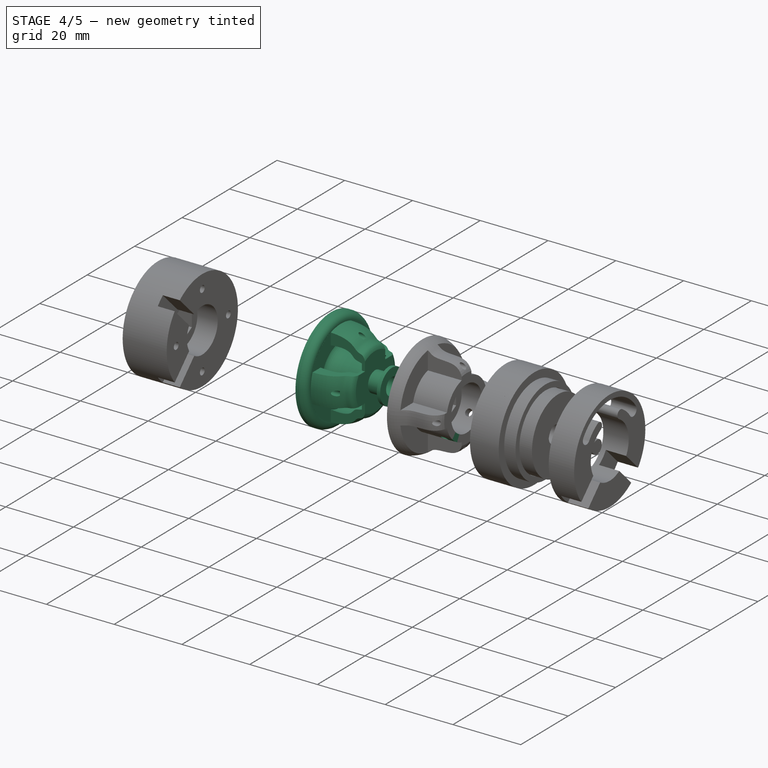
[diagram: stage 4 of 5 — iso view after this stage's code; geometry added in this stage tinted green]
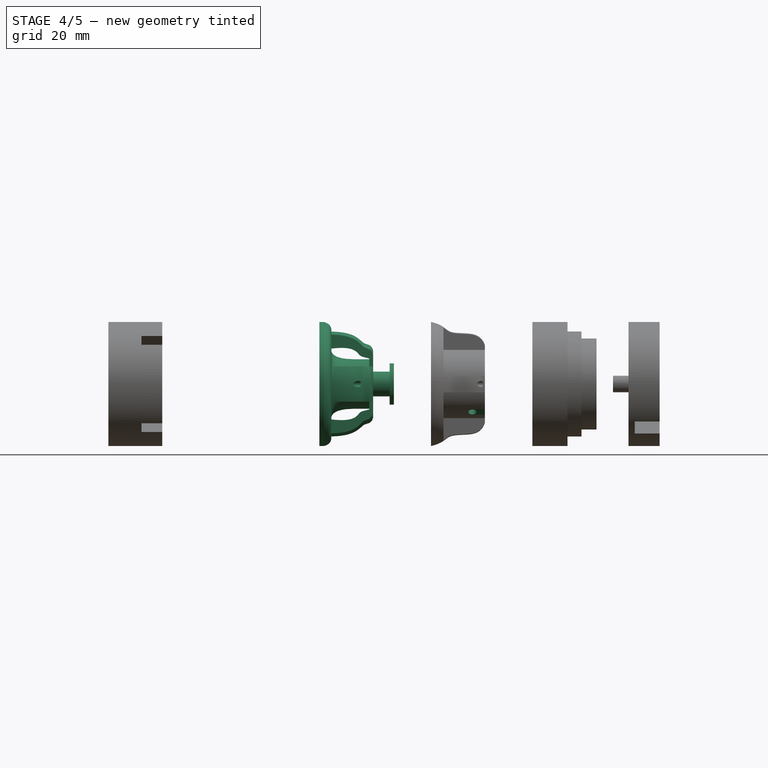
[diagram: stage 4 of 5 — front view after this stage's code; geometry added in this stage tinted green]
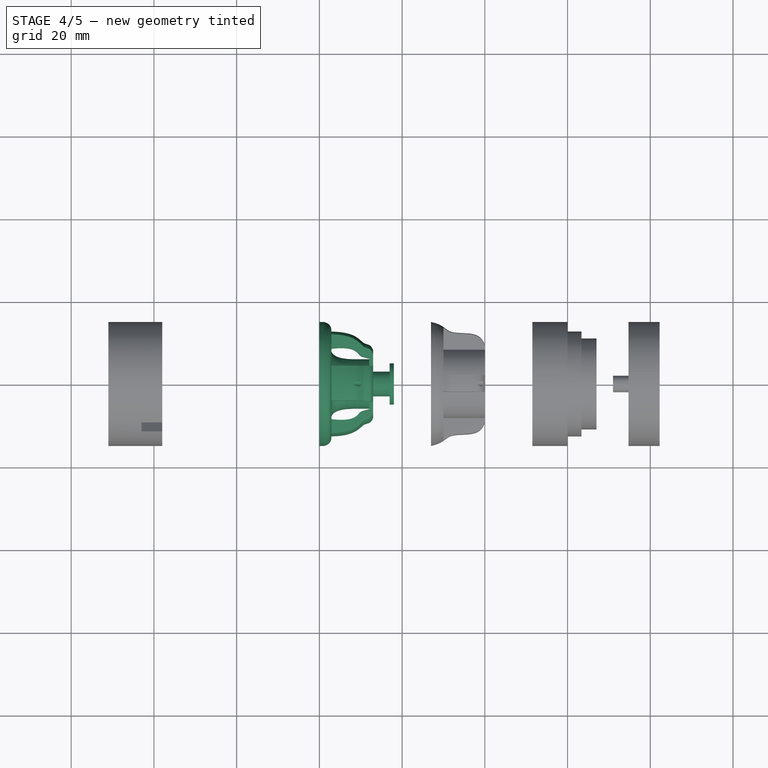
[diagram: stage 4 of 5 — top view after this stage's code; geometry added in this stage tinted green]
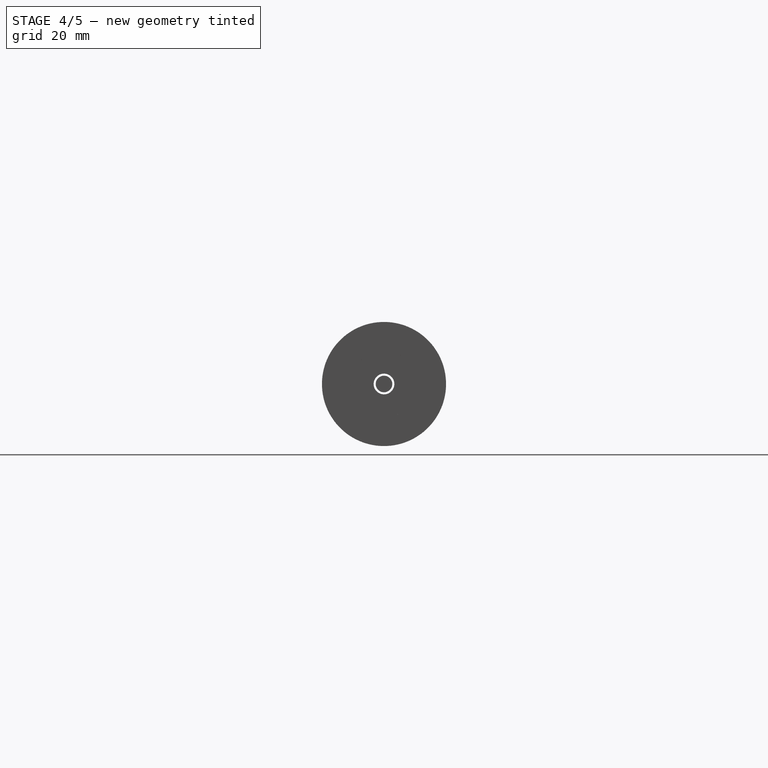
[diagram: stage 4 of 5 — right view after this stage's code; geometry added in this stage tinted green]
FEATURE [PartDesign::Body] Body011  label="polea"
  Group = -> [Sketch019,Pad010,Sketch020,Pad011,Sketch021,Pad012,Sketch022,Pad013]
  Origin = -> Origin012
  Placement = pos=(31,1e-14,0) rot=(0,0,1;3.14159rad)
  Tip = -> Pad013
FEATURE [Sketcher::SketchObject] Sketch026
  FullyConstrained = true
  MapMode = 5
  Placement = pos=(0,0,0) rot=(0.57735,0.57735,0.57735;2.0944rad)
  Support = -> [YZ_Plane013]
  sketch-geometry (2):
    g0: Circle CenterX=0 CenterY=0 CenterZ=0 NormalX=0 NormalY=0 NormalZ=1 AngleXU=0 Radius=2.5
    g1: Circle CenterX=0 CenterY=0 CenterZ=0 NormalX=0 NormalY=0 NormalZ=1 AngleXU=0 Radius=5
  constraints (4):
    c: Coincident(g0,g-1)
    c: Coincident(g1,g0)
    c: Radius(g0) = 2.5
    c: Radius(g1) = 5
FEATURE [PartDesign::Pad] Pad015
  Direction = (1,1,1)
  Length = 6
  Length2 = 100
  Placement = pos=(0,0,0) rot=(0.57735,0.57735,0.57735;2.0944rad)
  Profile = -> Sketch026
  Type = 0
FEATURE [Sketcher::SketchObject] Sketch025
  ExternalGeometry = -> [Pad015]
  FullyConstrained = true
  MapMode = 5
  Placement = pos=(0,0,0) rot=(0.57735,0.57735,-0.57735;4.18879rad)
  Support = -> [Pad015]
  sketch-geometry (2):
    g0: Circle CenterX=0 CenterY=0 CenterZ=0 NormalX=0 NormalY=0 NormalZ=1 AngleXU=0 Radius=2.5
    g1: Circle CenterX=0 CenterY=0 CenterZ=0 NormalX=0 NormalY=0 NormalZ=1 AngleXU=0 Radius=3
  constraints (4):
    c: Coincident(g0,g-1)
    c: Tangent(g0,g-3)
    c: Coincident(g1,g0)
    c: Radius(g1) = 3
FEATURE [PartDesign::Pad] Pad016
  BaseFeature = -> Pad015
  Direction = (1,1,1)
  Length = 4
  Length2 = 100
  Placement = pos=(0,0,0) rot=(0.57735,0.57735,0.57735;2.0944rad)
  Profile = -> Sketch025
  Type = 0
FEATURE [Sketcher::SketchObject] Sketch023
  ExternalGeometry = -> [Pad016]
  FullyConstrained = true
  MapMode = 5
  Placement = pos=(-4,1.8e-15,-1.8e-15) rot=(0.57735,0.57735,-0.57735;4.18879rad)
  Support = -> [Pad016]
  sketch-geometry (2):
    g0: Circle CenterX=0 CenterY=0 CenterZ=0 NormalX=0 NormalY=0 NormalZ=1 AngleXU=0 Radius=2.5
    g1: Circle CenterX=0 CenterY=0 CenterZ=0 NormalX=0 NormalY=0 NormalZ=1 AngleXU=0 Radius=5
  constraints (4):
    c: Coincident(g0,g-1)
    c: Tangent(g0,g-4)
    c: Coincident(g1,g0)
    c: Tangent(g1,g-3)
FEATURE [PartDesign::Pad] Pad017
  BaseFeature = -> Pad016
  Direction = (1,1,1)
  Length = 1
  Length2 = 100
  Placement = pos=(0,0,0) rot=(0.57735,0.57735,0.57735;2.0944rad)
  Profile = -> Sketch023
  Type = 0
FEATURE [Sketcher::SketchObject] Sketch024
  ExternalGeometry = -> [Pad017]
  FullyConstrained = true
  MapMode = 5
  Placement = pos=(0,0,0) rot=(1,0,0;1.5708rad)
  Support = -> [XZ_Plane013]
  sketch-geometry (1):
    g0: Circle CenterX=4.5 CenterY=0 CenterZ=0 NormalX=0 NormalY=0 NormalZ=1 AngleXU=0 Radius=1
  constraints (3):
    c: PointOnObject(g0,g-1)
    c: Radius(g0) = 1
    c: DistanceX(g0,g-3) = 1.5
FEATURE [PartDesign::Body] Body012  label="polea001"
  Group = -> [Sketch026,Pad015,Sketch025,Pad016,Sketch023,Pad017,Sketch024]
  Origin = -> Origin013
  Placement = pos=(-47,0,0) rot=(0,0,1;3.14159rad)
  Tip = -> Pad017
FEATURE [Sketcher::SketchObject] Sketch027
  FullyConstrained = true
  MapMode = 5
  Support = -> [XY_Plane014]
  sketch-geometry (1):
    g0: Circle CenterX=0 CenterY=0 CenterZ=0 NormalX=0 NormalY=0 NormalZ=1 AngleXU=0 Radius=15
  constraints (2):
    c: Coincident(g0,g-1)
    c: Radius(g0) = 15
FEATURE [PartDesign::Pad] Pad018
  Direction = (1,1,1)
  Length = 10
  Length2 = 100
  Profile = -> Sketch027
  Type = 0
FEATURE [Sketcher::SketchObject] Sketch029
  FullyConstrained = true
  MapMode = 5
  Placement = pos=(0,0,10) rot=(0,0,1;0rad)
  Support = -> [Pad018]
  sketch-geometry (4):
    g0: ArcOfCircle CenterX=0 CenterY=0 CenterZ=0 NormalX=0 NormalY=0 NormalZ=1 AngleXU=0 Radius=5.5 StartAngle=2.85054 EndAngle=6.57423
    g1: ArcOfCircle CenterX=0 CenterY=11.5 CenterZ=0 NormalX=0 NormalY=0 NormalZ=1 AngleXU=0 Radius=2.2 StartAngle=0.291048 EndAngle=2.85054
    g2: LineSegment StartX=-2.10748 StartY=12.1313 StartZ=0 EndX=-5.26869 EndY=1.57826 EndZ=0
    g3: LineSegment StartX=2.10748 StartY=12.1313 StartZ=0 EndX=5.26869 EndY=1.57826 EndZ=0
  constraints (9):
    c: Coincident(g0,g-1)
    c: Radius(g0) = 5.5
    c: PointOnObject(g1,g-2)
    c: Radius(g1) = 2.2
    c: DistanceY(g1) = 11.5
    c: Tangent(g1,g3) = 1.5708
    c: Tangent(g1,g2) = -1.5708
    c: Tangent(g0,g2) = -1.5708
    c: Tangent(g0,g3) = 1.5708
FEATURE [PartDesign::Pocket] Pocket008
  BaseFeature = -> Pad018
  Length = 2.5
  Length2 = 100
  Profile = -> Sketch029
  Type = 0
FEATURE [PartDesign::PolarPattern] PolarPattern005
  Angle = 360
  Axis = -> Sketch029 [N_Axis]
  BaseFeature = -> Pocket008
  Occurrences = 4
  Originals = -> [Pocket008]
FEATURE [Sketcher::SketchObject] Sketch028
  FullyConstrained = true
  MapMode = 5
  Placement = pos=(0,0,7.5) rot=(0,0,1;0rad)
  Support = -> [PolarPattern005]
  sketch-geometry (2):
    g0: GeomPoint X=0 Y=11 Z=0
    g1: Circle CenterX=0 CenterY=11 CenterZ=0 NormalX=0 NormalY=0 NormalZ=1 AngleXU=0 Radius=0.6
  constraints (4):
    c: PointOnObject(g0,g-2)
    c: DistanceY(g-1,g0) = 11
    c: Coincident(g1,g0)
    c: Radius(g1) = 0.6
FEATURE [PartDesign::Hole] Hole002
  BaseFeature = -> PolarPattern005
  Depth = 25
  DepthType = 0
  Diameter = 1.5
  DrillForDepth = false
  DrillPoint = 1
  DrillPointAngle = 118
  HoleCutCountersinkAngle = 90
  HoleCutCustomValues = false
  HoleCutDepth = 0
  HoleCutDiameter = 6.1
  HoleCutType = 0
  ModelActualThread = false
  Profile = -> Sketch028
  Tapered = false
  TaperedAngle = 90
  ThreadAngle = 0
  ThreadClass = 0
  ThreadCutOffInner = 0
  ThreadCutOffOuter = 0
  ThreadDirection = 0
  ThreadFit = 0
  ThreadPitch = 0
  ThreadSize = 0
  ThreadType = 0
  Threaded = false
FEATURE [PartDesign::PolarPattern] PolarPattern004
  Angle = 360
  Axis = -> Sketch028 [N_Axis]
  BaseFeature = -> Hole002
  Occurrences = 4
  Originals = -> [Hole002]
FEATURE [Sketcher::SketchObject] Sketch031
  FullyConstrained = true
  MapMode = 5
  Placement = pos=(0,0,7.5) rot=(0,0,1;0rad)
  Support = -> [PolarPattern004]
  sketch-geometry (1):
    g0: Circle CenterX=0 CenterY=0 CenterZ=0 NormalX=0 NormalY=0 NormalZ=1 AngleXU=0 Radius=4
  constraints (2):
    c: Coincident(g0,g-1)
    c: Radius(g0) = 4
FEATURE [PartDesign::Pocket] Pocket007
  BaseFeature = -> PolarPattern004
  Length = 2
  Length2 = 100
  Profile = -> Sketch031
  Type = 1
FEATURE [Sketcher::SketchObject] Sketch030
  ExternalGeometry = -> [Pocket007]
  FullyConstrained = true
  MapMode = 5
  Placement = pos=(0,0,7.5) rot=(0,0,1;0rad)
  Support = -> [Pocket007]
  sketch-geometry (7):
    g0: LineSegment StartX=-2.396 StartY=4.15 StartZ=0 EndX=-4.79201 EndY=4.245e-13 EndZ=0
    g1: LineSegment StartX=-4.79201 StartY=4.245e-13 StartZ=0 EndX=-2.396 EndY=-4.15 EndZ=0
    g2: LineSegment StartX=-2.396 StartY=-4.15 StartZ=0 EndX=2.396 EndY=-4.15 EndZ=0
    g3: LineSegment StartX=2.396 StartY=-4.15 StartZ=0 EndX=4.79201 EndY=4.254e-13 EndZ=0
    g4: LineSegment StartX=4.79201 StartY=4.254e-13 StartZ=0 EndX=2.396 EndY=4.15 EndZ=0
    g5: LineSegment StartX=2.396 StartY=4.15 StartZ=0 EndX=-2.396 EndY=4.15 EndZ=0
    g6: Circle CenterX=0 CenterY=0 CenterZ=0 NormalX=0 NormalY=0 NormalZ=1 AngleXU=0 Radius=4.79201
  constraints (16):
    c: Coincident(g0,g1)
    c: Coincident(g1,g2)
    c: Coincident(g2,g3)
    c: Coincident(g3,g4)
    c: Coincident(g4,g5)
    c: Coincident(g5,g0)
    c: Equal(g0, g1-g5) x5
    c: PointOnObject(g0,g6)
    c: PointOnObject(g1,g6)
    c: PointOnObject(g2,g6)
    c: PointOnObject(g3,g6)
    c: PointOnObject(g4,g6)
    c: PointOnObject(g5,g6)
    c: Coincident(g6,g-1)
    c: Horizontal(g5)
    c: DistanceY(g1,g0) = 8.3
FEATURE [PartDesign::Pocket] Pocket006
  BaseFeature = -> Pocket007
  Length = 4.5
  Length2 = 100
  Profile = -> Sketch030
  Type = 0
FEATURE [PartDesign::Body] Body013  label="rueda_polea001"
  Group = -> [Sketch027,Pad018,Sketch029,Pocket008,PolarPattern005,Sketch028,Hole002,PolarPattern004,Sketch031,Pocket007,Sketch030,Pocket006]
  Origin = -> Origin014
  Placement = pos=(-50,0,0) rot=(0,-1,0;1.5708rad)
  Tip = -> Pocket006
FEATURE [Part::MultiFuse] Fusion
  Shapes = -> [Body013,Body012]
FEATURE [PartDesign::FeatureBase] BaseFeature
  BaseFeature = -> Fusion
FEATURE [Sketcher::SketchObject] Sketch032
  ExternalGeometry = -> [BaseFeature]
  FullyConstrained = true
  MapMode = 5
  Placement = pos=(-50,0,0) rot=(0.57735,0.57735,0.57735;2.0944rad)
  Support = -> [BaseFeature]
  sketch-geometry (2):
    g0: Circle CenterX=0 CenterY=0 CenterZ=0 NormalX=0 NormalY=0 NormalZ=1 AngleXU=0 Radius=5
    g1: Circle CenterX=0 CenterY=0 CenterZ=0 NormalX=0 NormalY=0 NormalZ=1 AngleXU=0 Radius=15
  constraints (4):
    c: Coincident(g0,g-1)
    c: Tangent(g0,g-3)
    c: Coincident(g1,g0)
    c: Tangent(g1,g-4)
FEATURE [PartDesign::Pad] Pad019
  BaseFeature = -> BaseFeature
  Direction = (1,1,1)
  Length = 3
  Length2 = 100
  Profile = -> Sketch032
  Type = 0
FEATURE [Sketcher::SketchObject] Sketch033
  FullyConstrained = false
  MapMode = 5
  Support = -> [XY_Plane015]
  sketch-geometry (40):
    g0: LineSegment StartX=-47.9421 StartY=5.98158 StartZ=0 EndX=-51.6832 EndY=5.98158 EndZ=0
    g1: LineSegment StartX=-51.6832 StartY=5.98158 StartZ=0 EndX=-51.6832 EndY=7.91065 EndZ=0
    g2: LineSegment StartX=-51.6832 StartY=7.91065 StartZ=0 EndX=-57.1112 EndY=7.91065 EndZ=0
    g3: LineSegment StartX=-57.1112 StartY=7.91065 StartZ=0 EndX=-57.1112 EndY=9.55629 EndZ=0
    g4: LineSegment StartX=-46.8505 StartY=7.47999 StartZ=0 EndX=-46.8505 EndY=15.0991 EndZ=0
    g5: LineSegment StartX=-46.8505 StartY=15.0991 StartZ=0 EndX=-59.3816 EndY=15.0991 EndZ=0
    g6: LineSegment StartX=-57.1112 StartY=12.6758 StartZ=0 EndX=-57.1112 EndY=9.55629 EndZ=0
    g7: LineSegment StartX=-47.9421 StartY=7.47999 StartZ=0 EndX=-46.8505 EndY=7.47999 EndZ=0
    g8-g12: Circle x5 (B-spline internal-alignment scaffolding for g13; pole/knot coordinates omitted)
    g13: BSplineCurve PolesCount=5 KnotsCount=3 Degree=3 IsPeriodic=0
    g14: GeomPoint X=-57.1112 Y=12.6758 Z=0
    g15: GeomPoint X=-49.3373 Y=9.96291 Z=0
    g16: GeomPoint X=-46.8505 Y=7.47999 Z=0
    g17-g21: Circle x5 (B-spline internal-alignment scaffolding for g22; pole/knot coordinates omitted)
    g22: BSplineCurve PolesCount=5 KnotsCount=3 Degree=3 IsPeriodic=0
    g23: GeomPoint X=-57.1112 Y=9.55629 Z=0
    g24: GeomPoint X=-50.4254 Y=8.32595 Z=0
    g25: GeomPoint X=-47.9421 Y=7.47999 Z=0
    g26: Circle CenterX=-57.1112 CenterY=12.6758 CenterZ=0 NormalX=0 NormalY=0 NormalZ=1 AngleXU=0 Radius=1
    g27: Circle CenterX=-56.9147 CenterY=14.6843 CenterZ=0 NormalX=0 NormalY=0 NormalZ=1 AngleXU=0 Radius=1
    g28: Circle CenterX=-59.3816 CenterY=15.0991 CenterZ=0 NormalX=0 NormalY=0 NormalZ=1 AngleXU=0 Radius=1
    g29: BSplineCurve PolesCount=3 KnotsCount=2 Degree=2 IsPeriodic=0
    g30: GeomPoint X=-57.1112 Y=12.6758 Z=0
    g31: GeomPoint X=-59.3816 Y=15.0991 Z=0
    g32-g35: Circle x4 (B-spline internal-alignment scaffolding for g36; pole/knot coordinates omitted)
    g36: BSplineCurve PolesCount=4 KnotsCount=2 Degree=3 IsPeriodic=0
    g37: GeomPoint X=-57.1112 Y=7.91065 Z=0
    g38: GeomPoint X=-51.6832 Y=5.98158 Z=0
    g39: LineSegment StartX=-47.9421 StartY=5.98158 StartZ=0 EndX=-47.9421 EndY=7.47999 EndZ=0
  constraints (52):
    c: Horizontal(g0)
    c: Coincident(g0,g1)
    c: Vertical(g1)
    c: Coincident(g1,g2)
    c: Horizontal(g2)
    c: Coincident(g2,g3)
    c: Vertical(g3)
    c: Vertical(g4)
    c: Coincident(g4,g5)
    c: Horizontal(g5)
    c: Vertical(g6)
    c: Coincident(g7,g4)
    c: Horizontal(g7)
    c: Weight(g8) = 1
    c: Equal(g8, g9-g12) x4
    c: Coincident(g13,g4)
    c: InternalAlignment(g8-g12 -> g13) x5
    c: InternalAlignment(g14,g13)
    c: InternalAlignment(g15,g13)
    c: InternalAlignment(g16,g13)
    c: Coincident(g22,g3)
    c: Weight(g17) = 1
    c: Equal(g17, g18-g21) x4
    c: InternalAlignment(g17-g21 -> g22) x5
    c: InternalAlignment(g23,g22)
    c: InternalAlignment(g24,g22)
    c: InternalAlignment(g25,g22)
    c: Coincident(g3,g6)
    c: Coincident(g29,g13)
    c: Weight(g26) = 1
    c: Equal(g26,g27)
    c: Equal(g26,g28)
    c: Coincident(g29,g5)
    c: InternalAlignment(g26,g29)
    c: InternalAlignment(g27,g29)
    c: InternalAlignment(g28,g29)
    c: InternalAlignment(g30,g29)
    c: InternalAlignment(g31,g29)
    c: Coincident(g36,g2)
    c: Weight(g32) = 1
    c: Equal(g32,g33)
    c: Equal(g32,g34)
    c: Equal(g32,g35)
    c: Coincident(g36,g0)
    c: InternalAlignment(g32-g35 -> g36) x4
    c: InternalAlignment(g37,g36)
    c: InternalAlignment(g38,g36)
    c: Coincident(g13,g6)
    c: Coincident(g39,g0)
    c: Coincident(g39,g22)
    c: Coincident(g7,g22)
    c: Vertical(g39)
FEATURE [PartDesign::Groove] Groove
  Angle = 360
  Axis = (1,0,0)
  Base = (0,0,0)
  BaseFeature = -> Pad019
  Profile = -> Sketch033
  ReferenceAxis = -> X_Axis015
  Reversed = true
FEATURE [Sketcher::SketchObject] Sketch034
  FullyConstrained = false
  MapMode = 5
  Placement = pos=(-47,0,0) rot=(0.57735,0.57735,0.57735;2.0944rad)
  Support = -> [Groove]
  sketch-geometry (18):
    g0: LineSegment StartX=-17.396 StartY=17.5737 StartZ=0 EndX=-4.25 EndY=17.5737 EndZ=0
    g1: LineSegment StartX=-4.25 StartY=17.5737 StartZ=0 EndX=-4.25 EndY=4.25 EndZ=0
    g2: LineSegment StartX=-4.25 StartY=4.25 StartZ=0 EndX=-17.396 EndY=4.25 EndZ=0
    g3: LineSegment StartX=-17.396 StartY=4.25 StartZ=0 EndX=-17.396 EndY=17.5737 EndZ=0
    g4: LineSegment StartX=17.8376 StartY=16.8376 StartZ=0 EndX=4.25 EndY=16.8376 EndZ=0
    g5: LineSegment StartX=4.25 StartY=16.8376 StartZ=0 EndX=4.25 EndY=4.25 EndZ=0
    g6: LineSegment StartX=4.25 StartY=4.25 StartZ=0 EndX=17.8376 EndY=4.25 EndZ=0
    g7: LineSegment StartX=17.8376 StartY=4.25 StartZ=0 EndX=17.8376 EndY=16.8376 EndZ=0
    g8: LineSegment StartX=-16.9501 StartY=-16.3954 StartZ=0 EndX=-4.25 EndY=-16.3954 EndZ=0
    g9: LineSegment StartX=-4.25 StartY=-16.3954 StartZ=0 EndX=-4.25 EndY=-4.25 EndZ=0
    g10: LineSegment StartX=-4.25 StartY=-4.25 StartZ=0 EndX=-16.9501 EndY=-4.25 EndZ=0
    g11: LineSegment StartX=-16.9501 StartY=-4.25 StartZ=0 EndX=-16.9501 EndY=-16.3954 EndZ=0
    g12: LineSegment StartX=4.25 StartY=-4.25 StartZ=0 EndX=16.7687 EndY=-4.25 EndZ=0
    g13: LineSegment StartX=16.7687 StartY=-4.25 StartZ=0 EndX=16.7687 EndY=-16.784 EndZ=0
    g14: LineSegment StartX=16.7687 StartY=-16.784 StartZ=0 EndX=4.25 EndY=-16.784 EndZ=0
    g15: LineSegment StartX=4.25 StartY=-16.784 StartZ=0 EndX=4.25 EndY=-4.25 EndZ=0
    g16: LineSegment StartX=-4.25 StartY=4.25 StartZ=0 EndX=4.25 EndY=4.25 EndZ=0
    g17: LineSegment StartX=-4.25 StartY=4.25 StartZ=0 EndX=-4.25 EndY=-4.25 EndZ=0
  constraints (41):
    c: Coincident(g0,g1)
    c: Coincident(g1,g2)
    c: Coincident(g2,g3)
    c: Coincident(g3,g0)
    c: Horizontal(g0)
    c: Horizontal(g2)
    c: Vertical(g1)
    c: Vertical(g3)
    c: Coincident(g4,g5)
    c: Coincident(g5,g6)
    c: Coincident(g6,g7)
    c: Coincident(g7,g4)
    c: Horizontal(g4)
    c: Horizontal(g6)
    c: Vertical(g5)
    c: Vertical(g7)
    c: Coincident(g8,g9)
    c: Coincident(g9,g10)
    c: Coincident(g10,g11)
    c: Coincident(g11,g8)
    c: Horizontal(g8)
    c: Horizontal(g10)
    c: Vertical(g9)
    c: Vertical(g11)
    c: Coincident(g12,g13)
    c: Coincident(g13,g14)
    c: Coincident(g14,g15)
    c: Coincident(g15,g12)
    c: Horizontal(g12)
    c: Horizontal(g14)
    c: Vertical(g13)
    c: Vertical(g15)
    c: Symmetric(g1,g9,g-1)
    c: Symmetric(g12,g9,g-2)
    c: Symmetric(g5,g12,g-1)
    c: Coincident(g16,g1)
    c: Coincident(g16,g5)
    c: Coincident(g17,g1)
    c: Coincident(g17,g9)
    c: Equal(g16,g17)
    c: DistanceX(g16,g16) = 8.5
FEATURE [PartDesign::Pocket] Pocket009
  BaseFeature = -> Groove
  Length = 5
  Length2 = 100
  Profile = -> Sketch034
  Type = 0
FEATURE [Sketcher::SketchObject] Sketch038
  FullyConstrained = true
  MapMode = 5
  Placement = pos=(0,0,0) rot=(0.57735,0.57735,0.57735;2.0944rad)
  Support = -> [YZ_Plane017]
  sketch-geometry (2):
    g0: Circle CenterX=0 CenterY=0 CenterZ=0 NormalX=0 NormalY=0 NormalZ=1 AngleXU=0 Radius=2.5
    g1: Circle CenterX=0 CenterY=0 CenterZ=0 NormalX=0 NormalY=0 NormalZ=1 AngleXU=0 Radius=5
  constraints (4):
    c: Coincident(g0,g-1)
    c: Coincident(g1,g0)
    c: Radius(g0) = 2.5
    c: Radius(g1) = 5
FEATURE [PartDesign::Pad] Pad021
  Direction = (1,1,1)
  Length = 6
  Length2 = 100
  Placement = pos=(0,0,0) rot=(0.57735,0.57735,0.57735;2.0944rad)
  Profile = -> Sketch038
  Type = 0
FEATURE [Sketcher::SketchObject] Sketch037
  ExternalGeometry = -> [Pad021]
  FullyConstrained = true
  MapMode = 5
  Placement = pos=(0,0,0) rot=(0.57735,0.57735,-0.57735;4.18879rad)
  Support = -> [Pad021]
  sketch-geometry (2):
    g0: Circle CenterX=0 CenterY=0 CenterZ=0 NormalX=0 NormalY=0 NormalZ=1 AngleXU=0 Radius=2.5
    g1: Circle CenterX=0 CenterY=0 CenterZ=0 NormalX=0 NormalY=0 NormalZ=1 AngleXU=0 Radius=3
  constraints (4):
    c: Coincident(g0,g-1)
    c: Tangent(g0,g-3)
    c: Coincident(g1,g0)
    c: Radius(g1) = 3
FEATURE [PartDesign::Pad] Pad022
  BaseFeature = -> Pad021
  Direction = (1,1,1)
  Length = 4
  Length2 = 100
  Placement = pos=(0,0,0) rot=(0.57735,0.57735,0.57735;2.0944rad)
  Profile = -> Sketch037
  Type = 0
FEATURE [PartDesign::Body] Body015  label="polea002"
  Group = -> [Sketch038,Pad021,Sketch037,Pad022,Sketch035,Pad023,Sketch036,Pad020]
  Origin = -> Origin017
  Placement = pos=(-47,0,0) rot=(0,0,1;3.14159rad)
  Tip = -> Pad020
FEATURE [Sketcher::SketchObject] Sketch039
  ExternalGeometry = -> [Pocket009]
  FullyConstrained = false
  MapMode = 5
  Placement = pos=(-52,0,0) rot=(0.57735,0.57735,0.57735;2.0944rad)
  Support = -> [Pocket009]
  sketch-geometry (30):
    g0: LineSegment StartX=-12.3104 StartY=13.0346 StartZ=0 EndX=-4.25 EndY=13.0346 EndZ=0
    g1: LineSegment StartX=-4.25 StartY=13.0346 StartZ=0 EndX=-4.25 EndY=4.25 EndZ=0
    g2: LineSegment StartX=-4.25 StartY=4.25 StartZ=0 EndX=-12.3104 EndY=4.25 EndZ=0
    g3: LineSegment StartX=-12.3104 StartY=4.25 StartZ=0 EndX=-12.3104 EndY=13.0346 EndZ=0
    g4: LineSegment StartX=4.25 StartY=4.25 StartZ=0 EndX=12.93 EndY=4.25 EndZ=0
    g5: LineSegment StartX=12.93 StartY=4.25 StartZ=0 EndX=12.93 EndY=12.8392 EndZ=0
    g6: LineSegment StartX=12.93 StartY=12.8392 StartZ=0 EndX=4.25 EndY=12.8392 EndZ=0
    g7: LineSegment StartX=4.25 StartY=12.8392 StartZ=0 EndX=4.25 EndY=4.25 EndZ=0
    g8: LineSegment StartX=4.25 StartY=-4.25 StartZ=0 EndX=15.4934 EndY=-4.25 EndZ=0
    g9: LineSegment StartX=15.4934 StartY=-4.25 StartZ=0 EndX=15.4934 EndY=-13.1663 EndZ=0
    g10: LineSegment StartX=15.4934 StartY=-13.1663 StartZ=0 EndX=4.25 EndY=-13.1663 EndZ=0
    g11: LineSegment StartX=4.25 StartY=-13.1663 StartZ=0 EndX=4.25 EndY=-4.25 EndZ=0
    g12: LineSegment StartX=-4.25 StartY=-4.25 StartZ=0 EndX=-14.3871 EndY=-4.25 EndZ=0
    g13: LineSegment StartX=-14.3871 StartY=-4.25 StartZ=0 EndX=-14.3871 EndY=-12.9234 EndZ=0
    g14: LineSegment StartX=-14.3871 StartY=-12.9234 StartZ=0 EndX=-4.25 EndY=-12.9234 EndZ=0
    g15: LineSegment StartX=-4.25 StartY=-12.9234 StartZ=0 EndX=-4.25 EndY=-4.25 EndZ=0
    g16: LineSegment StartX=-4.25 StartY=4.25 StartZ=0 EndX=-4.25 EndY=-4.25 EndZ=0
    g17: LineSegment StartX=-4.25 StartY=4.25 StartZ=0 EndX=4.25 EndY=4.25 EndZ=0
    g18: ArcOfCircle CenterX=0 CenterY=0 CenterZ=0 NormalX=0 NormalY=0 NormalZ=1 AngleXU=0 Radius=9.36465 StartAngle=2.04186 EndAngle=2.67053
    g19: ArcOfCircle CenterX=0 CenterY=0 CenterZ=0 NormalX=0 NormalY=0 NormalZ=1 AngleXU=0 Radius=9.36465 StartAngle=0.471063 EndAngle=1.09973
    g20: ArcOfCircle CenterX=0 CenterY=0 CenterZ=0 NormalX=0 NormalY=0 NormalZ=1 AngleXU=0 Radius=9.36465 StartAngle=5.18345 EndAngle=5.81212
    g21: ArcOfCircle CenterX=0 CenterY=0 CenterZ=0 NormalX=0 NormalY=0 NormalZ=1 AngleXU=0 Radius=9.36465 StartAngle=3.61266 EndAngle=4.24133
    g22: LineSegment StartX=-8.34471 StartY=4.25 StartZ=0 EndX=-12.3104 EndY=4.25 EndZ=0
    g23: LineSegment StartX=-4.25 StartY=8.34471 StartZ=0 EndX=-4.25 EndY=13.0346 EndZ=0
    g24: LineSegment StartX=4.25 StartY=8.34471 StartZ=0 EndX=4.25 EndY=12.8392 EndZ=0
    g25: LineSegment StartX=8.34471 StartY=4.25 StartZ=0 EndX=12.93 EndY=4.25 EndZ=0
    g26: LineSegment StartX=-14.3871 StartY=-4.25 StartZ=0 EndX=-8.34471 EndY=-4.25 EndZ=0
    g27: LineSegment StartX=-4.25 StartY=-12.9234 StartZ=0 EndX=-4.25 EndY=-8.34471 EndZ=0
    g28: LineSegment StartX=4.25 StartY=-13.1663 StartZ=0 EndX=4.25 EndY=-8.34471 EndZ=0
    g29: LineSegment StartX=8.34471 StartY=-4.25 StartZ=0 EndX=15.4934 EndY=-4.25 EndZ=0
  constraints (73):
    c: Coincident(g0,g1)
    c: Coincident(g1,g2)
    c: Coincident(g2,g3)
    c: Coincident(g3,g0)
    c: Horizontal(g0)
    c: Horizontal(g2)
    c: Vertical(g1)
    c: Vertical(g3)
    c: Coincident(g4,g5)
    c: Coincident(g5,g6)
    c: Coincident(g6,g7)
    c: Coincident(g7,g4)
    c: Horizontal(g4)
    c: Horizontal(g6)
    c: Vertical(g5)
    c: Vertical(g7)
    c: Coincident(g8,g9)
    c: Coincident(g9,g10)
    c: Coincident(g10,g11)
    c: Coincident(g11,g8)
    c: Horizontal(g8)
    c: Horizontal(g10)
    c: Vertical(g9)
    c: Vertical(g11)
    c: Coincident(g12,g13)
    c: Coincident(g13,g14)
    c: Coincident(g14,g15)
    c: Coincident(g15,g12)
    c: Horizontal(g12)
    c: Horizontal(g14)
    c: Vertical(g13)
    c: Vertical(g15)
    c: Coincident(g16,g1)
    c: Coincident(g16,g12)
    c: Vertical(g16)
    c: Coincident(g17,g1)
    c: Coincident(g17,g4)
    c: Horizontal(g17)
    c: Symmetric(g4,g8,g-1)
    c: Symmetric(g12,g8,g-2)
    c: DistanceX(g17,g17) = 8.5
    c: Equal(g16,g17)
    c: Coincident(g18,g-1)
    c: PointOnObject(g19,g7)
    c: Equal(g18,g19)
    c: PointOnObject(g20,g8)
    c: PointOnObject(g19,g4)
    c: Coincident(g18,g19)
    c: Equal(g18,g20)
    c: PointOnObject(g21,g15)
    c: PointOnObject(g20,g11)
    c: Coincident(g18,g20)
    c: Equal(g18,g21)
    c: PointOnObject(g18,g2)
    c: PointOnObject(g21,g12)
    c: Coincident(g18,g21)
    c: Coincident(g22,g18)
    c: Coincident(g22,g3)
    c: Coincident(g23,g18)
    c: Coincident(g23,g0)
    c: Coincident(g24,g19)
    c: Coincident(g24,g6)
    c: Coincident(g25,g19)
    c: Coincident(g25,g5)
    c: Coincident(g26,g13)
    c: Coincident(g26,g21)
    c: Coincident(g27,g14)
    c: Coincident(g27,g21)
    c: Coincident(g28,g10)
    c: Coincident(g28,g20)
    c: Coincident(g29,g20)
    c: Coincident(g29,g9)
    c: Coincident(g-3,g18)
FEATURE [PartDesign::Pocket] Pocket010
  BaseFeature = -> Pocket009
  Length = 5.1
  Length2 = 100
  Profile = -> Sketch039
  Type = 0
FEATURE [Sketcher::SketchObject] Sketch040
  FullyConstrained = true
  MapMode = 5
  Placement = pos=(0,0,10.5) rot=(0,0,1;0rad)
  Support = -> [PolarPattern007]
  sketch-geometry (2):
    g0: GeomPoint X=0 Y=11 Z=0
    g1: Circle CenterX=0 CenterY=11 CenterZ=0 NormalX=0 NormalY=0 NormalZ=1 AngleXU=0 Radius=0.6
  constraints (4):
    c: PointOnObject(g0,g-2)
    c: DistanceY(g-1,g0) = 11
    c: Coincident(g1,g0)
    c: Radius(g1) = 0.6
FEATURE [PartDesign::Hole] Hole003
  BaseFeature = -> PolarPattern007
  Depth = 25
  DepthType = 0
  Diameter = 1.5
  DrillForDepth = false
  DrillPoint = 1
  DrillPointAngle = 118
  HoleCutCountersinkAngle = 90
  HoleCutCustomValues = false
  HoleCutDepth = 0
  HoleCutDiameter = 6.1
  HoleCutType = 0
  ModelActualThread = false
  Profile = -> Sketch040
  Tapered = false
  TaperedAngle = 90
  ThreadAngle = 0
  ThreadClass = 0
  ThreadCutOffInner = 0
  ThreadCutOffOuter = 0
  ThreadDirection = 0
  ThreadFit = 0
  ThreadPitch = 0
  ThreadSize = 0
  ThreadType = 0
  Threaded = false
FEATURE [PartDesign::PolarPattern] PolarPattern006
  Angle = 360
  Axis = -> Sketch040 [N_Axis]
  BaseFeature = -> Hole003
  Occurrences = 4
  Originals = -> [Hole003]
FEATURE [Sketcher::SketchObject] Sketch041
  FullyConstrained = true
  MapMode = 5
  Placement = pos=(0,0,10.5) rot=(0,0,1;0rad)
  Support = -> [PolarPattern006]
  sketch-geometry (1):
    g0: Circle CenterX=0 CenterY=0 CenterZ=0 NormalX=0 NormalY=0 NormalZ=1 AngleXU=0 Radius=4
  constraints (2):
    c: Coincident(g0,g-1)
    c: Radius(g0) = 4
FEATURE [PartDesign::Pocket] Pocket012
  BaseFeature = -> PolarPattern006
  Length = 2
  Length2 = 100
  Profile = -> Sketch041
  Type = 1
FEATURE [Sketcher::SketchObject] Sketch044
  ExternalGeometry = -> [Pocket012]
  FullyConstrained = true
  MapMode = 5
  Placement = pos=(0,0,10.5) rot=(0,0,1;0rad)
  Support = -> [Pocket012]
  sketch-geometry (7):
    g0: LineSegment StartX=-2.396 StartY=4.15 StartZ=0 EndX=-4.79201 EndY=4.245e-13 EndZ=0
    g1: LineSegment StartX=-4.79201 StartY=4.245e-13 StartZ=0 EndX=-2.396 EndY=-4.15 EndZ=0
    g2: LineSegment StartX=-2.396 StartY=-4.15 StartZ=0 EndX=2.396 EndY=-4.15 EndZ=0
    g3: LineSegment StartX=2.396 StartY=-4.15 StartZ=0 EndX=4.79201 EndY=4.254e-13 EndZ=0
    g4: LineSegment StartX=4.79201 StartY=4.254e-13 StartZ=0 EndX=2.396 EndY=4.15 EndZ=0
    g5: LineSegment StartX=2.396 StartY=4.15 StartZ=0 EndX=-2.396 EndY=4.15 EndZ=0
    g6: Circle CenterX=0 CenterY=0 CenterZ=0 NormalX=0 NormalY=0 NormalZ=1 AngleXU=0 Radius=4.79201
  constraints (16):
    c: Coincident(g0,g1)
    c: Coincident(g1,g2)
    c: Coincident(g2,g3)
    c: Coincident(g3,g4)
    c: Coincident(g4,g5)
    c: Coincident(g5,g0)
    c: Equal(g0, g1-g5) x5
    c: PointOnObject(g0,g6)
    c: PointOnObject(g1,g6)
    c: PointOnObject(g2,g6)
    c: PointOnObject(g3,g6)
    c: PointOnObject(g4,g6)
    c: PointOnObject(g5,g6)
    c: Coincident(g6,g-1)
    c: Horizontal(g5)
    c: DistanceY(g1,g0) = 8.3
FEATURE [PartDesign::Pocket] Pocket013
  BaseFeature = -> Pocket012
  Length = 4.5
  Length2 = 100
  Profile = -> Sketch044
  Type = 0
FEATURE [PartDesign::Body] Body017  label="polea003"
  Group = -> [Sketch045,Pad025,Sketch046,Pad026,Sketch047,Pad027,Sketch048,Pad028]
  Origin = -> Origin019
  Placement = pos=(-20,0,0) rot=(0,0.894427,0.447214;3.14159rad)
  Tip = -> Pad028
FEATURE [Part::Cut] Cut001
  Base = -> Body016
  Tool = -> Body017
FEATURE [PartDesign::FeatureBase] BaseFeature001
  BaseFeature = -> Cut001
FEATURE [Sketcher::SketchObject] Sketch049
  ExternalGeometry = -> [BaseFeature001]
  FullyConstrained = false
  MapMode = 5
  Placement = pos=(0,0,0) rot=(1,0,0;1.5708rad)
  Support = -> [XZ_Plane021]
  sketch-geometry (20):
    g0: LineSegment StartX=-20 StartY=15 StartZ=0 EndX=-30 EndY=15 EndZ=0
    g1: LineSegment StartX=-30 StartY=15 StartZ=0 EndX=-30 EndY=8 EndZ=0
    g2: LineSegment StartX=-30 StartY=8 StartZ=0 EndX=-20 EndY=8 EndZ=0
    g3: LineSegment StartX=-20 StartY=8 StartZ=0 EndX=-20 EndY=15 EndZ=0
    g4: LineSegment StartX=-30 StartY=8 StartZ=0 EndX=-30 EndY=10 EndZ=0
    g5: LineSegment StartX=-30 StartY=15 StartZ=0 EndX=-30 EndY=13 EndZ=0
    g6-g11: Circle x6 (B-spline internal-alignment scaffolding for g12; pole/knot coordinates omitted)
    g12: BSplineCurve PolesCount=6 KnotsCount=4 Degree=3 IsPeriodic=0
    g13-g16: GeomPoint x4 (B-spline internal-alignment scaffolding for g12; pole/knot coordinates omitted)
    g17: LineSegment StartX=-30 StartY=8 StartZ=0 EndX=-22.0439 EndY=8 EndZ=0
    g18: LineSegment StartX=-20 StartY=15 StartZ=0 EndX=-33 EndY=15 EndZ=0
    g19: LineSegment StartX=-20 StartY=9.42917 StartZ=0 EndX=-20 EndY=15 EndZ=0
  constraints (29):
    c: Coincident(g0,g1)
    c: Coincident(g1,g2)
    c: Coincident(g2,g3)
    c: Coincident(g3,g0)
    c: Horizontal(g0)
    c: Horizontal(g2)
    c: Vertical(g1)
    c: Vertical(g3)
    c: Coincident(g0,g-5)
    c: DistanceY(g1,g1) = 7
    c: DistanceX(g2,g2) = 10
    c: Coincident(g4,g1)
    c: PointOnObject(g4,g1)
    c: DistanceY(g4,g4) = 2
    c: Coincident(g5,g0)
    c: PointOnObject(g5,g1)
    c: DistanceY(g5,g5) = 2
    c: Coincident(g12,g-4)
    c: Weight(g6) = 1
    c: Equal(g6, g7-g11) x5
    c: PointOnObject(g12,g3)
    c: InternalAlignment(g6-g11 -> g12) x6
    c: InternalAlignment(g13-g16 -> g12) x4
    c: Coincident(g17,g4)
    c: Horizontal(g17)
    c: Coincident(g18,g0)
    c: Coincident(g18,g12)
    c: Coincident(g19,g12)
    c: Coincident(g19,g18)
FEATURE [PartDesign::Groove] Groove001
  Angle = 360
  Axis = (1,0,0)
  Base = (0,0,0)
  BaseFeature = -> BaseFeature001
  Profile = -> Sketch049
  ReferenceAxis = -> X_Axis021
  Reversed = true
FEATURE [Sketcher::SketchObject] Sketch050
  FullyConstrained = false
  MapMode = 5
  Placement = pos=(-20,0,0) rot=(0.57735,0.57735,0.57735;2.0944rad)
  Support = -> [Groove001]
  sketch-geometry (22):
    g0: Circle CenterX=0 CenterY=0 CenterZ=0 NormalX=0 NormalY=0 NormalZ=1 AngleXU=0 Radius=8.5
    g1: LineSegment StartX=-2 StartY=2 StartZ=0 EndX=-17 EndY=2 EndZ=0
    g2: LineSegment StartX=-17 StartY=2 StartZ=0 EndX=-17 EndY=17 EndZ=0
    g3: LineSegment StartX=-17 StartY=17 StartZ=0 EndX=-2 EndY=17 EndZ=0
    g4: LineSegment StartX=-2 StartY=17 StartZ=0 EndX=-2 EndY=2 EndZ=0
    g5: LineSegment StartX=2 StartY=2 StartZ=0 EndX=17 EndY=2 EndZ=0
    g6: LineSegment StartX=17 StartY=2 StartZ=0 EndX=17 EndY=17 EndZ=0
    g7: LineSegment StartX=17 StartY=17 StartZ=0 EndX=2 EndY=17 EndZ=0
    g8: LineSegment StartX=2 StartY=17 StartZ=0 EndX=2 EndY=2 EndZ=0
    g9: LineSegment StartX=2 StartY=-2 StartZ=0 EndX=17 EndY=-2 EndZ=0
    g10: LineSegment StartX=17 StartY=-2 StartZ=0 EndX=17 EndY=-17 EndZ=0
    g11: LineSegment StartX=17 StartY=-17 StartZ=0 EndX=2 EndY=-17 EndZ=0
    g12: LineSegment StartX=2 StartY=-17 StartZ=0 EndX=2 EndY=-2 EndZ=0
    g13: LineSegment StartX=-2 StartY=-2 StartZ=0 EndX=-17 EndY=-2 EndZ=0
    g14: LineSegment StartX=-17 StartY=-2 StartZ=0 EndX=-17 EndY=-17 EndZ=0
    g15: LineSegment StartX=-17 StartY=-17 StartZ=0 EndX=-2 EndY=-17 EndZ=0
    g16: LineSegment StartX=-2 StartY=-17 StartZ=0 EndX=-2 EndY=-2 EndZ=0
    g17: LineSegment StartX=-17 StartY=17 StartZ=0 EndX=-2.03016 EndY=17 EndZ=0
    g18: LineSegment StartX=-2.03016 StartY=17 StartZ=0 EndX=-2.03016 EndY=8.254 EndZ=0
    g19: LineSegment StartX=-8.25391 StartY=2.03051 StartZ=0 EndX=-17 EndY=2.03051 EndZ=0
    g20: LineSegment StartX=-17 StartY=2.03051 StartZ=0 EndX=-17 EndY=17 EndZ=0
    g21: ArcOfCircle CenterX=0 CenterY=0 CenterZ=0 NormalX=0 NormalY=0 NormalZ=1 AngleXU=0 Radius=8.5 StartAngle=1.81197 EndAngle=2.90038
  constraints (58):
    c: Coincident(g0,g-1)
    c: Radius(g0) = 8.5
    c: Coincident(g1,g2)
    c: Coincident(g2,g3)
    c: Coincident(g3,g4)
    c: Coincident(g4,g1)
    c: Horizontal(g1)
    c: Horizontal(g3)
    c: Vertical(g2)
    c: Vertical(g4)
    c: Coincident(g5,g6)
    c: Coincident(g6,g7)
    c: Coincident(g7,g8)
    c: Coincident(g8,g5)
    c: Horizontal(g5)
    c: Horizontal(g7)
    c: Vertical(g6)
    c: Vertical(g8)
    c: Coincident(g9,g10)
    c: Coincident(g10,g11)
    c: Coincident(g11,g12)
    c: Coincident(g12,g9)
    c: Horizontal(g9)
    c: Horizontal(g11)
    c: Vertical(g10)
    c: Vertical(g12)
    c: Coincident(g13,g14)
    c: Coincident(g14,g15)
    c: Coincident(g15,g16)
    c: Coincident(g16,g13)
    c: Horizontal(g13)
    c: Horizontal(g15)
    c: Vertical(g14)
    c: Vertical(g16)
    c: Symmetric(g1,g13,g-1)
    c: Symmetric(g1,g5,g-2)
    c: Symmetric(g5,g9,g-1)
    c: Symmetric(g2,g6,g-2)
    c: Symmetric(g2,g14,g-1)
    c: Symmetric(g6,g10,g-1)
    c: DistanceX(g3,g3) = 15
    c: DistanceY(g2,g2) = 15
    c: DistanceX(g3,g7) = 4
    c: DistanceY(g13,g1) = 4
    c: Coincident(g17,g18)
    c: Coincident(g19,g20)
    c: Coincident(g20,g17)
    c: Horizontal(g17)
    c: Horizontal(g19)
    c: Vertical(g18)
    c: Vertical(g20)
    c: Coincident(g17,g2)
    c: Coincident(g21,g-1)
    c: PointOnObject(g21,g19)
    c: PointOnObject(g21,g18)
    c: PointOnObject(g21,g0)
    c: PointOnObject(g18,g0)
    c: PointOnObject(g19,g0)
FEATURE [PartDesign::Pocket] Pocket014
  BaseFeature = -> Groove001
  Length = 10
  Length2 = 100
  Profile = -> Sketch050
  Type = 0
FEATURE [PartDesign::PolarPattern] PolarPattern008
  Angle = 360
  Axis = -> Sketch050 [N_Axis]
  BaseFeature = -> Pocket014
  Occurrences = 4
  Originals = -> [Pocket014]
FEATURE [Sketcher::SketchObject] Sketch051
  ExternalGeometry = -> [PolarPattern008]
  FullyConstrained = true
  MapMode = 5
  Placement = pos=(8e-16,-4.2,-5.6) rot=(-1,0,0;0.643501rad)
  Support = -> [PolarPattern008]
  sketch-geometry (1):
    g0: Circle CenterX=-23 CenterY=2.7e-15 CenterZ=0 NormalX=0 NormalY=0 NormalZ=1 AngleXU=0 Radius=1
  constraints (2):
    c: Coincident(g0,g-3)
    c: Tangent(g0,g-3)
FEATURE [PartDesign::Pocket] Pocket015
  BaseFeature = -> PolarPattern008
  Length = 10
  Length2 = 100
  Midplane = true
  Profile = -> Sketch051
  Type = 0
FEATURE [PartDesign::PolarPattern] PolarPattern009
  Angle = 90
  Axis = -> X_Axis021
  BaseFeature = -> Pocket015
  Occurrences = 2
  Originals = -> [Pocket015]
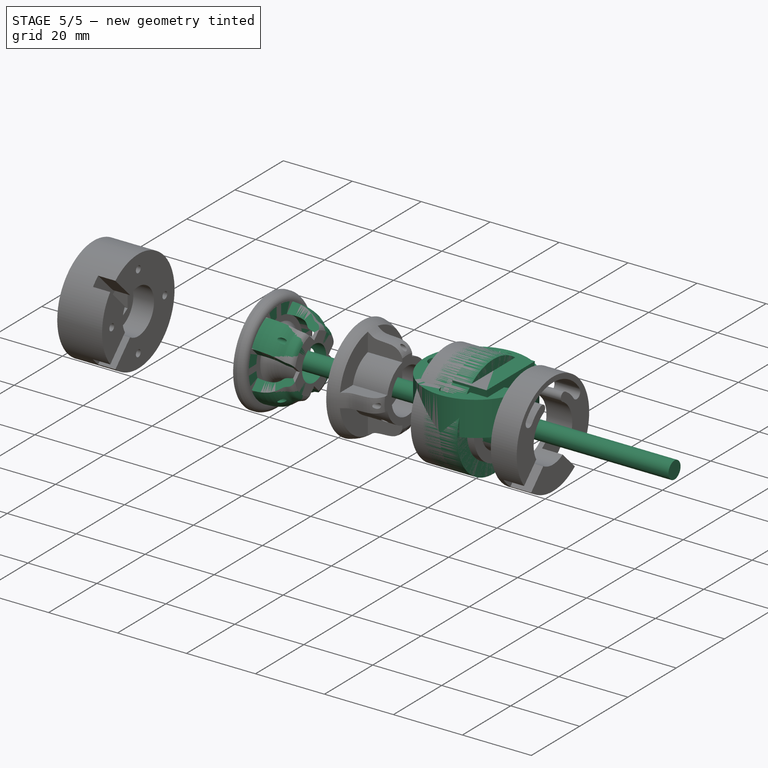
[diagram: stage 5 of 5 — iso view after this stage's code; geometry added in this stage tinted green]
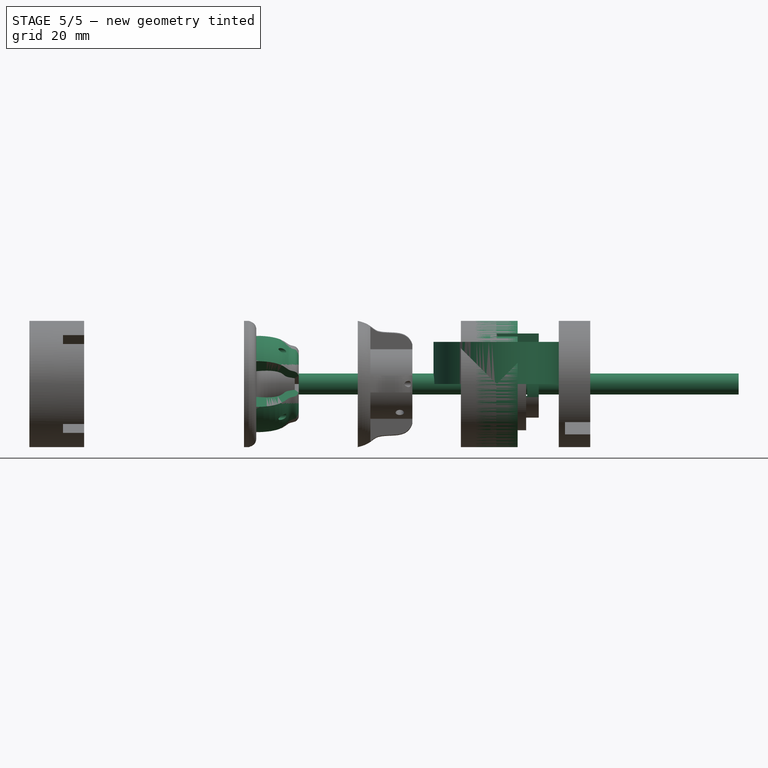
[diagram: stage 5 of 5 — front view after this stage's code; geometry added in this stage tinted green]
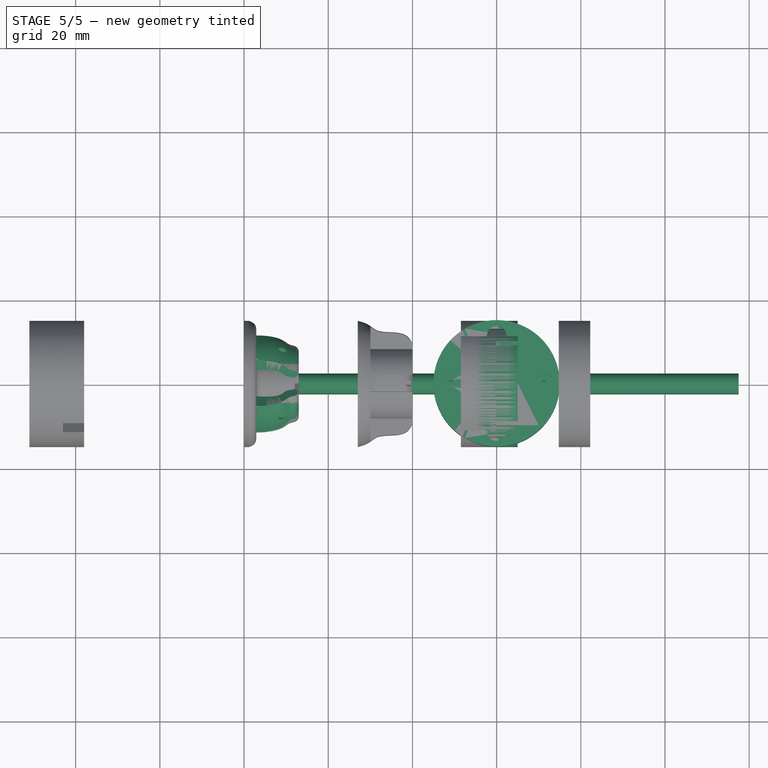
[diagram: stage 5 of 5 — top view after this stage's code; geometry added in this stage tinted green]
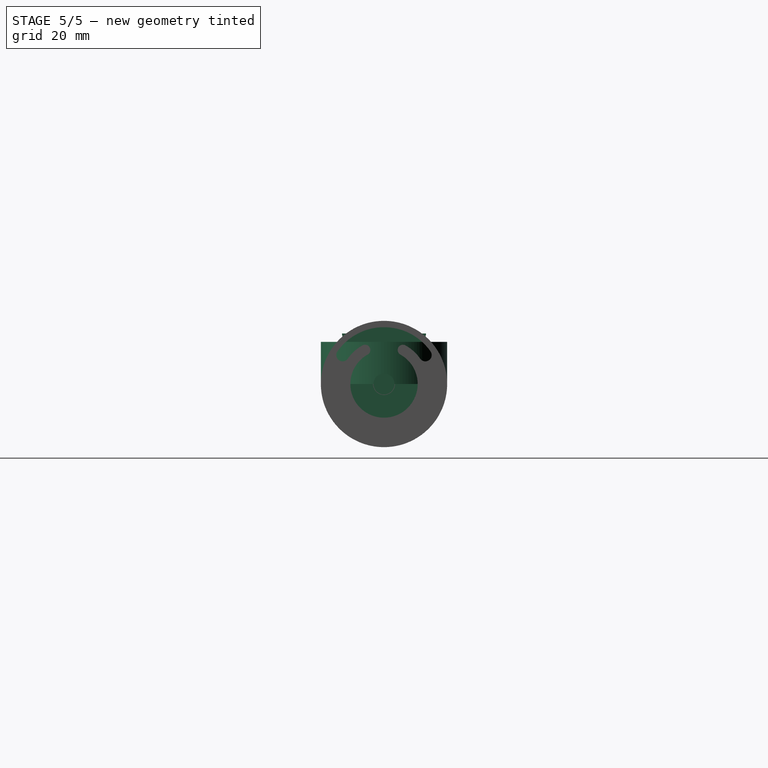
[diagram: stage 5 of 5 — right view after this stage's code; geometry added in this stage tinted green]
FEATURE [Sketcher::SketchObject] Sketch
  FullyConstrained = true
  MapMode = 5
  Placement = pos=(0,0,0) rot=(0.57735,0.57735,0.57735;2.0944rad)
  Support = -> [YZ_Plane]
  sketch-geometry (1):
    g0: Circle CenterX=0 CenterY=0 CenterZ=0 NormalX=0 NormalY=0 NormalZ=1 AngleXU=0 Radius=2.5
  constraints (2):
    c: Coincident(g0,g-1)
    c: Radius(g0) = 2.5
FEATURE [PartDesign::Pad] Pad
  Direction = (1,1,1)
  Length = 115
  Length2 = 100
  Midplane = true
  Placement = pos=(0,0,0) rot=(0.57735,0.57735,0.57735;2.0944rad)
  Profile = -> Sketch
  Type = 0
FEATURE [PartDesign::Body] Body  label="eje"
  Group = -> [Sketch,Pad]
  Origin = -> Origin
  Tip = -> Pad
FEATURE [Sketcher::SketchObject] Sketch001
  FullyConstrained = true
  MapMode = 5
  Placement = pos=(0,0,0) rot=(0.57735,0.57735,0.57735;2.0944rad)
  Support = -> [YZ_Plane002]
  sketch-geometry (2):
    g0: Circle CenterX=0 CenterY=0 CenterZ=0 NormalX=0 NormalY=0 NormalZ=1 AngleXU=0 Radius=2.5
    g1: Circle CenterX=0 CenterY=0 CenterZ=0 NormalX=0 NormalY=0 NormalZ=1 AngleXU=0 Radius=4
  constraints (4):
    c: Coincident(g0,g-1)
    c: Coincident(g1,g0)
    c: Radius(g0) = 2.5
    c: Radius(g1) = 4
FEATURE [PartDesign::Pad] Pad001
  Direction = (1,1,1)
  Length = 2.5
  Length2 = 100
  Placement = pos=(0,0,0) rot=(0.57735,0.57735,0.57735;2.0944rad)
  Profile = -> Sketch001
  Type = 0
FEATURE [PartDesign::Body] Body001  label="rod1"
  Group = -> [Sketch001,Pad001]
  Origin = -> Origin002
  Placement = pos=(50,0,0) rot=(0,0,1;0rad)
  Tip = -> Pad001
FEATURE [Sketcher::SketchObject] Sketch002
  FullyConstrained = true
  MapMode = 5
  Placement = pos=(0,0,0) rot=(0.57735,0.57735,0.57735;2.0944rad)
  Support = -> [YZ_Plane003]
  sketch-geometry (2):
    g0: Circle CenterX=0 CenterY=0 CenterZ=0 NormalX=0 NormalY=0 NormalZ=1 AngleXU=0 Radius=2.5
    g1: Circle CenterX=0 CenterY=0 CenterZ=0 NormalX=0 NormalY=0 NormalZ=1 AngleXU=0 Radius=4
  constraints (4):
    c: Coincident(g0,g-1)
    c: Coincident(g1,g0)
    c: Radius(g0) = 2.5
    c: Radius(g1) = 4
FEATURE [PartDesign::Pad] Pad002
  Direction = (1,1,1)
  Length = 2.5
  Length2 = 100
  Placement = pos=(0,0,0) rot=(0.57735,0.57735,0.57735;2.0944rad)
  Profile = -> Sketch002
  Type = 0
FEATURE [PartDesign::Body] Body002  label="rod"
  Group = -> [Sketch002,Pad002]
  Origin = -> Origin003
  Placement = pos=(47.5,0,0) rot=(0,0,1;0rad)
  Tip = -> Pad002
FEATURE [Sketcher::SketchObject] Sketch003
  FullyConstrained = false
  MapMode = 5
  Support = -> [XY_Plane004]
  sketch-geometry (4):
    g0: ArcOfCircle CenterX=0 CenterY=0 CenterZ=0 NormalX=0 NormalY=0 NormalZ=1 AngleXU=0 Radius=2.5 StartAngle=3.75246 EndAngle=8.81391
    g1: ArcOfCircle CenterX=0 CenterY=0 CenterZ=0 NormalX=0 NormalY=0 NormalZ=1 AngleXU=0 Radius=2.9 StartAngle=3.75246 EndAngle=8.81391
    g2: LineSegment StartX=-2.04788 StartY=1.43394 StartZ=0 EndX=-2.37554 EndY=1.66337 EndZ=0
    g3: LineSegment StartX=-2.04788 StartY=-1.43394 StartZ=0 EndX=-2.37554 EndY=-1.66337 EndZ=0
  constraints (11):
    c: Coincident(g0,g-1)
    c: Coincident(g1,g0)
    c: Radius(g0) = 2.5
    c: Radius(g1) = 2.9
    c: Symmetric(g3,g2,g-1)
    c: Angle(g-1,g2) = 2.53073
    c: DistanceX(g2) = -2.04788
    c: DistanceX(g3) = -2.04788
    c: Coincident(g0,g3)
    c: Coincident(g0,g2)
    c: Coincident(g1,g3)
FEATURE [PartDesign::Pad] Pad003
  Direction = (1,1,1)
  Length = 2.4
  Length2 = 100
  Profile = -> Sketch003
  Type = 0
FEATURE [PartDesign::Body] Body003  label="sep"
  Group = -> [Sketch003,Pad003]
  Origin = -> Origin004
  Placement = pos=(45,0,0) rot=(0,1,0;1.5708rad)
  Tip = -> Pad003
FEATURE [Sketcher::SketchObject] Sketch004
  FullyConstrained = false
  MapMode = 5
  Support = -> [XY_Plane005]
  sketch-geometry (4):
    g0: ArcOfCircle CenterX=0 CenterY=0 CenterZ=0 NormalX=0 NormalY=0 NormalZ=1 AngleXU=0 Radius=2.5 StartAngle=3.75246 EndAngle=8.81391
    g1: ArcOfCircle CenterX=0 CenterY=0 CenterZ=0 NormalX=0 NormalY=0 NormalZ=1 AngleXU=0 Radius=2.9 StartAngle=3.75246 EndAngle=8.81391
    g2: LineSegment StartX=-2.04788 StartY=1.43394 StartZ=0 EndX=-2.37554 EndY=1.66337 EndZ=0
    g3: LineSegment StartX=-2.04788 StartY=-1.43394 StartZ=0 EndX=-2.37554 EndY=-1.66337 EndZ=0
  constraints (11):
    c: Coincident(g0,g-1)
    c: Coincident(g1,g0)
    c: Radius(g0) = 2.5
    c: Radius(g1) = 2.9
    c: Symmetric(g3,g2,g-1)
    c: Angle(g-1,g2) = 2.53073
    c: DistanceX(g2) = -2.04788
    c: DistanceX(g3) = -2.04788
    c: Coincident(g0,g3)
    c: Coincident(g0,g2)
    c: Coincident(g1,g3)
FEATURE [PartDesign::Pad] Pad004
  Direction = (1,1,1)
  Length = 2.4
  Length2 = 100
  Profile = -> Sketch004
  Type = 0
FEATURE [PartDesign::Body] Body004  label="sep001"
  Group = -> [Sketch004,Pad004]
  Origin = -> Origin005
  Placement = pos=(52.5,0,0) rot=(0,1,0;1.5708rad)
  Tip = -> Pad004
FEATURE [Sketcher::SketchObject] Sketch005
  FullyConstrained = true
  MapMode = 5
  Placement = pos=(0,0,0) rot=(0.57735,0.57735,0.57735;2.0944rad)
  Support = -> [YZ_Plane006]
  sketch-geometry (2):
    g0: Circle CenterX=0 CenterY=0 CenterZ=0 NormalX=0 NormalY=0 NormalZ=1 AngleXU=0 Radius=4.2
    g1: Circle CenterX=0 CenterY=0 CenterZ=0 NormalX=0 NormalY=0 NormalZ=1 AngleXU=0 Radius=15
  constraints (4):
    c: Coincident(g0,g-1)
    c: Radius(g0) = 4.2
    c: Coincident(g1,g0)
    c: Radius(g1) = 15
FEATURE [PartDesign::Pad] Pad005
  Direction = (1,1,1)
  Length = 10
  Length2 = 100
  Midplane = true
  Placement = pos=(0,0,0) rot=(0.57735,0.57735,0.57735;2.0944rad)
  Profile = -> Sketch005
  Type = 0
FEATURE [PartDesign::Body] Body005  label="wheel"
  Group = -> [Sketch005,Pad005]
  Origin = -> Origin006
  Placement = pos=(50,0,0) rot=(0,0,1;0rad)
  Tip = -> Pad005
FEATURE [Sketcher::SketchObject] Sketch006
  FullyConstrained = true
  MapMode = 5
  Placement = pos=(0,0,0) rot=(1,0,0;1.5708rad)
  Support = -> [XZ_Plane007]
  sketch-geometry (12):
    g0: LineSegment StartX=-5 StartY=0 StartZ=0 EndX=5 EndY=0 EndZ=0
    g1: LineSegment StartX=5 StartY=0 StartZ=0 EndX=5 EndY=15 EndZ=0
    g2: LineSegment StartX=5 StartY=15 StartZ=0 EndX=-5 EndY=15 EndZ=0
    g3: LineSegment StartX=-5 StartY=15 StartZ=0 EndX=-5 EndY=0 EndZ=0
    g4: LineSegment StartX=-5 StartY=4.15 StartZ=0 EndX=5 EndY=4.15 EndZ=0
    g5: LineSegment StartX=2.6 StartY=4.15 StartZ=0 EndX=2.6 EndY=3.75 EndZ=0
    g6: LineSegment StartX=2.6 StartY=3.75 StartZ=0 EndX=5 EndY=3.75 EndZ=0
    g7: LineSegment StartX=-5 StartY=3.75 StartZ=0 EndX=-2.6 EndY=3.75 EndZ=0
    g8: LineSegment StartX=-2.6 StartY=4.15 StartZ=0 EndX=-2.6 EndY=3.75 EndZ=0
    g9: LineSegment StartX=5 StartY=3.75 StartZ=0 EndX=5 EndY=15 EndZ=0
    g10: LineSegment StartX=-5 StartY=3.75 StartZ=0 EndX=-5 EndY=15 EndZ=0
    g11: LineSegment StartX=-2.6 StartY=4.15 StartZ=0 EndX=2.6 EndY=4.15 EndZ=0
  constraints (34):
    c: Coincident(g0,g1)
    c: Coincident(g1,g2)
    c: Coincident(g2,g3)
    c: Coincident(g3,g0)
    c: Horizontal(g0)
    c: Vertical(g1)
    c: Vertical(g3)
    c: PointOnObject(g0,g-1)
    c: Symmetric(g1,g2,g-2)
    c: DistanceX(g2,g2) = 10
    c: DistanceY(g1,g1) = 15
    c: PointOnObject(g4,g3)
    c: PointOnObject(g4,g1)
    c: Horizontal(g4)
    c: DistanceY(g4) = 4.15
    c: PointOnObject(g5,g4)
    c: Vertical(g5)
    c: Coincident(g6,g5)
    c: PointOnObject(g6,g1)
    c: Horizontal(g6)
    c: PointOnObject(g7,g3)
    c: Horizontal(g7)
    c: Coincident(g8,g7)
    c: Vertical(g8)
    c: DistanceX(g8,g5) = 5.2
    c: Symmetric(g8,g5,g-2)
    c: Equal(g8,g5)
    c: DistanceY(g7,g4) = 0.4
    c: Coincident(g9,g6)
    c: Coincident(g9,g2)
    c: Coincident(g10,g7)
    c: Coincident(g10,g2)
    c: Coincident(g11,g8)
    c: Coincident(g11,g5)
FEATURE [PartDesign::Revolution] Revolution
  Angle = 360
  Axis = (1,0,0)
  Base = (0,0,0)
  Placement = pos=(0,0,0) rot=(1,0,0;1.5708rad)
  Profile = -> Sketch006
  ReferenceAxis = -> Sketch006 [H_Axis]
FEATURE [PartDesign::Body] Body006  label="rueda"
  Group = -> [Sketch006,Revolution]
  Origin = -> Origin007
  Tip = -> Revolution
FEATURE [Sketcher::SketchObject] Sketch007
  FullyConstrained = false
  MapMode = 5
  Placement = pos=(0,0,0) rot=(0.57735,0.57735,0.57735;2.0944rad)
  Support = -> [YZ_Plane008]
  sketch-geometry (11):
    g0: ArcOfCircle CenterX=0 CenterY=0 CenterZ=0 NormalX=0 NormalY=0 NormalZ=1 AngleXU=0 Radius=4 StartAngle=1.88356 EndAngle=7.54121
    g1: Circle CenterX=0 CenterY=0 CenterZ=0 NormalX=0 NormalY=0 NormalZ=1 AngleXU=0 Radius=15
    g2: ArcOfCircle CenterX=-5.73406 CenterY=4.01504 CenterZ=0 NormalX=0 NormalY=0 NormalZ=1 AngleXU=0 Radius=1.25 StartAngle=2.53073 EndAngle=5.67232
    g3: ArcOfCircle CenterX=5.73406 CenterY=4.01504 CenterZ=0 NormalX=0 NormalY=0 NormalZ=1 AngleXU=0 Radius=1.25 StartAngle=3.75246 EndAngle=6.89405
    g4: LineSegment StartX=0 StartY=0 StartZ=0 EndX=-5.73406 EndY=4.01504 EndZ=0
    g5: Circle CenterX=0 CenterY=0 CenterZ=0 NormalX=0 NormalY=0 NormalZ=1 AngleXU=0 Radius=7
    g6: ArcOfCircle CenterX=0 CenterY=0 CenterZ=0 NormalX=0 NormalY=0 NormalZ=1 AngleXU=0 Radius=8.25 StartAngle=0.610865 EndAngle=2.53073
    g7: ArcOfCircle CenterX=0 CenterY=0 CenterZ=0 NormalX=0 NormalY=0 NormalZ=1 AngleXU=0 Radius=5.75 StartAngle=0.610865 EndAngle=1.25803
    g8: ArcOfCircle CenterX=1.5 CenterY=4.63849 CenterZ=0 NormalX=0 NormalY=0 NormalZ=1 AngleXU=0 Radius=0.875 StartAngle=1.25803 EndAngle=4.39962
    g9: ArcOfCircle CenterX=-1.5 CenterY=4.63849 CenterZ=0 NormalX=0 NormalY=0 NormalZ=1 AngleXU=0 Radius=0.875 StartAngle=5.02516 EndAngle=8.16675
    g10: ArcOfCircle CenterX=0 CenterY=0 CenterZ=0 NormalX=0 NormalY=0 NormalZ=1 AngleXU=0 Radius=5.75 StartAngle=1.88356 EndAngle=2.53073
  constraints (27):
    c: Coincident(g0,g-1)
    c: Radius(g0) = 4
    c: Coincident(g1,g0)
    c: Radius(g1) = 15
    c: Symmetric(g3,g2,g-2)
    c: Equal(g2,g3)
    c: Coincident(g4,g0)
    c: Coincident(g4,g2)
    c: Angle(g4) = 2.53073
    c: Coincident(g5,g0)
    c: Radius(g5) = 7
    c: PointOnObject(g2,g5)
    c: Coincident(g6,g0)
    c: Radius(g2) = 1.25
    c: Coincident(g7,g0)
    c: Coincident(g2,g10) = 1.5708
    c: Tangent(g2,g6) = -1.5708
    c: Coincident(g3,g6)
    c: Coincident(g3,g7)
    c: Symmetric(g9,g8,g-2)
    c: Equal(g9,g8)
    c: DistanceX(g9,g8) = 3
    c: Coincident(g7,g8)
    c: Tangent(g10,g9) = -1.5708
    c: Coincident(g7,g10)
    c: Tangent(g0,g9) = 1.5708
    c: Coincident(g0,g8)
FEATURE [PartDesign::Pad] Pad006
  Direction = (1,1,1)
  Length = 10
  Length2 = 100
  Midplane = true
  Placement = pos=(0,0,0) rot=(0.57735,0.57735,0.57735;2.0944rad)
  Profile = -> Sketch007
  Type = 0
FEATURE [PartDesign::Body] Body007  label="slotted"
  Group = -> [Sketch007,Pad006]
  Origin = -> Origin008
  Placement = pos=(20,0,0) rot=(0,0,1;0rad)
  Tip = -> Pad006
FEATURE [Sketcher::SketchObject] Sketch008
  FullyConstrained = false
  MapMode = 5
  Placement = pos=(0,0,0) rot=(0.57735,0.57735,0.57735;2.0944rad)
  Support = -> [YZ_Plane009]
  sketch-geometry (7):
    g0: Circle CenterX=0 CenterY=0 CenterZ=0 NormalX=0 NormalY=0 NormalZ=1 AngleXU=0 Radius=2.6
    g1: Circle CenterX=0 CenterY=0 CenterZ=0 NormalX=0 NormalY=0 NormalZ=1 AngleXU=0 Radius=8
    g2: LineSegment StartX=-10 StartY=12 StartZ=0 EndX=10 EndY=12 EndZ=0
    g3: LineSegment StartX=-10 StartY=12 StartZ=0 EndX=-8 EndY=4.8e-14 EndZ=0
    g4: LineSegment StartX=10 StartY=12 StartZ=0 EndX=8 EndY=0 EndZ=0
    g5: ArcOfCircle CenterX=0 CenterY=0 CenterZ=0 NormalX=0 NormalY=0 NormalZ=1 AngleXU=0 Radius=8 StartAngle=3.14159 EndAngle=6.28319
    g6: Circle CenterX=0 CenterY=0 CenterZ=0 NormalX=0 NormalY=0 NormalZ=1 AngleXU=0 Radius=2.6
  constraints (17):
    c: Coincident(g0,g-1)
    c: Radius(g0) = 2.6
    c: Coincident(g1,g0)
    c: Radius(g1) = 8
    c: Symmetric(g2,g2,g-2)
    c: DistanceX(g2,g2) = 20
    c: Coincident(g3,g2)
    c: Coincident(g4,g2)
    c: PointOnObject(g4,g-1)
    c: PointOnObject(g4,g1)
    c: PointOnObject(g3,g-1)
    c: PointOnObject(g3,g1)
    c: DistanceY(g2) = 12
    c: Coincident(g6,g5)
    c: Equal(g6,g0)
    c: Coincident(g5,g-1)
    c: Coincident(g5,g3)
FEATURE [PartDesign::Pad] Pad007
  Direction = (1,1,1)
  Length = 10
  Length2 = 100
  Placement = pos=(0,0,0) rot=(0.57735,0.57735,0.57735;2.0944rad)
  Profile = -> Sketch008
  Type = 0
FEATURE [Sketcher::SketchObject] Sketch009
  ExternalGeometry = -> [Pad007]
  FullyConstrained = true
  MapMode = 5
  Placement = pos=(3.8e-15,7.78378,-1.2973) rot=(0.606604,0.606604,0.513871;4.09096rad)
  Support = -> [Pad007]
  sketch-geometry (5):
    g0: LineSegment StartX=-5 StartY=5 StartZ=0 EndX=6 EndY=5 EndZ=0
    g1: LineSegment StartX=-4.05 StartY=7.25 StartZ=0 EndX=4.05 EndY=7.25 EndZ=0
    g2: LineSegment StartX=4.05 StartY=7.25 StartZ=0 EndX=4.05 EndY=2.75 EndZ=0
    g3: LineSegment StartX=4.05 StartY=2.75 StartZ=0 EndX=-4.05 EndY=2.75 EndZ=0
    g4: LineSegment StartX=-4.05 StartY=2.75 StartZ=0 EndX=-4.05 EndY=7.25 EndZ=0
  constraints (14):
    c: Coincident(g1,g2)
    c: Coincident(g2,g3)
    c: Coincident(g3,g4)
    c: Coincident(g4,g1)
    c: Horizontal(g3)
    c: Vertical(g4)
    c: Symmetric(g2,g1,g0)
    c: Symmetric(g1,g1,g-2)
    c: DistanceX(g3,g3) = 8.1
    c: DistanceY(g4,g4) = 4.5
    c: Horizontal(g0)
    c: DistanceY(g0) = 5
    c: DistanceX(g0) = -5
    c: DistanceX(g0,g0) = 11
FEATURE [PartDesign::Pocket] Pocket
  BaseFeature = -> Pad007
  Length = 18
  Length2 = 100
  Midplane = true
  Placement = pos=(0,0,0) rot=(0.57735,0.57735,0.57735;2.0944rad)
  Profile = -> Sketch009
  Type = 1
FEATURE [PartDesign::Body] Body008  label="chasis"
  Group = -> [Sketch008,Pad007,Sketch009,Pocket]
  Origin = -> Origin009
  Placement = pos=(29,0,0) rot=(0,0,1;0rad)
  Tip = -> Pocket
FEATURE [Sketcher::SketchObject] Sketch013
  FullyConstrained = true
  MapMode = 5
  Support = -> [XY_Plane010]
  sketch-geometry (1):
    g0: Circle CenterX=0 CenterY=0 CenterZ=0 NormalX=0 NormalY=0 NormalZ=1 AngleXU=0 Radius=15
  constraints (2):
    c: Coincident(g0,g-1)
    c: Radius(g0) = 15
FEATURE [PartDesign::Pad] Pad008
  Direction = (1,1,1)
  Length = 10
  Length2 = 100
  Profile = -> Sketch013
  Type = 0
FEATURE [Sketcher::SketchObject] Sketch012
  FullyConstrained = true
  MapMode = 5
  Placement = pos=(0,0,10) rot=(0,0,1;0rad)
  Support = -> [Pad008]
  sketch-geometry (4):
    g0: ArcOfCircle CenterX=0 CenterY=0 CenterZ=0 NormalX=0 NormalY=0 NormalZ=1 AngleXU=0 Radius=5.5 StartAngle=2.85054 EndAngle=6.57423
    g1: ArcOfCircle CenterX=0 CenterY=11.5 CenterZ=0 NormalX=0 NormalY=0 NormalZ=1 AngleXU=0 Radius=2.2 StartAngle=0.291048 EndAngle=2.85054
    g2: LineSegment StartX=-2.10748 StartY=12.1313 StartZ=0 EndX=-5.26869 EndY=1.57826 EndZ=0
    g3: LineSegment StartX=2.10748 StartY=12.1313 StartZ=0 EndX=5.26869 EndY=1.57826 EndZ=0
  constraints (9):
    c: Coincident(g0,g-1)
    c: Radius(g0) = 5.5
    c: PointOnObject(g1,g-2)
    c: Radius(g1) = 2.2
    c: DistanceY(g1) = 11.5
    c: Tangent(g1,g3) = 1.5708
    c: Tangent(g1,g2) = -1.5708
    c: Tangent(g0,g2) = -1.5708
    c: Tangent(g0,g3) = 1.5708
FEATURE [PartDesign::Pocket] Pocket002
  BaseFeature = -> Pad008
  Length = 2.5
  Length2 = 100
  Profile = -> Sketch012
  Type = 0
FEATURE [PartDesign::PolarPattern] PolarPattern
  Angle = 360
  Axis = -> Sketch012 [N_Axis]
  BaseFeature = -> Pocket002
  Occurrences = 4
  Originals = -> [Pocket002]
FEATURE [Sketcher::SketchObject] Sketch010
  FullyConstrained = true
  MapMode = 5
  Placement = pos=(0,0,7.5) rot=(0,0,1;0rad)
  Support = -> [PolarPattern]
  sketch-geometry (2):
    g0: GeomPoint X=0 Y=11 Z=0
    g1: Circle CenterX=0 CenterY=11 CenterZ=0 NormalX=0 NormalY=0 NormalZ=1 AngleXU=0 Radius=0.6
  constraints (4):
    c: PointOnObject(g0,g-2)
    c: DistanceY(g-1,g0) = 11
    c: Coincident(g1,g0)
    c: Radius(g1) = 0.6
FEATURE [PartDesign::Hole] Hole
  BaseFeature = -> PolarPattern
  Depth = 25
  DepthType = 0
  Diameter = 2
  DrillForDepth = false
  DrillPoint = 1
  DrillPointAngle = 118
  HoleCutCountersinkAngle = 90
  HoleCutCustomValues = false
  HoleCutDepth = 0
  HoleCutDiameter = 6.1
  HoleCutType = 0
  ModelActualThread = false
  Profile = -> Sketch010
  Tapered = false
  TaperedAngle = 90
  ThreadAngle = 0
  ThreadClass = 0
  ThreadCutOffInner = 0
  ThreadCutOffOuter = 0
  ThreadDirection = 0
  ThreadFit = 0
  ThreadPitch = 0
  ThreadSize = 0
  ThreadType = 0
  Threaded = false
FEATURE [PartDesign::PolarPattern] PolarPattern001
  Angle = 360
  Axis = -> Sketch010 [N_Axis]
  BaseFeature = -> Hole
  Occurrences = 4
  Originals = -> [Hole]
FEATURE [Sketcher::SketchObject] Sketch011
  FullyConstrained = true
  MapMode = 5
  Placement = pos=(0,0,7.5) rot=(0,0,1;0rad)
  Support = -> [PolarPattern001]
  sketch-geometry (1):
    g0: Circle CenterX=0 CenterY=0 CenterZ=0 NormalX=0 NormalY=0 NormalZ=1 AngleXU=0 Radius=4
  constraints (2):
    c: Coincident(g0,g-1)
    c: Radius(g0) = 4
FEATURE [PartDesign::Pocket] Pocket001
  BaseFeature = -> PolarPattern001
  Length = 2
  Length2 = 100
  Profile = -> Sketch011
  Type = 1
FEATURE [PartDesign::Body] Body009  label="rueda_servo"
  Group = -> [Sketch013,Pad008,Sketch012,Pocket002,PolarPattern,Sketch010,Hole,PolarPattern001,Sketch011,Pocket001]
  Origin = -> Origin010
  Placement = pos=(-11,0,2e-15) rot=(0,-1,0;1.5708rad)
  Tip = -> Pocket001
FEATURE [Sketcher::SketchObject] Sketch017
  FullyConstrained = true
  MapMode = 5
  Support = -> [XY_Plane011]
  sketch-geometry (1):
    g0: Circle CenterX=0 CenterY=0 CenterZ=0 NormalX=0 NormalY=0 NormalZ=1 AngleXU=0 Radius=15
  constraints (2):
    c: Coincident(g0,g-1)
    c: Radius(g0) = 15
FEATURE [PartDesign::Pad] Pad009
  Direction = (1,1,1)
  Length = 10
  Length2 = 100
  Profile = -> Sketch017
  Type = 0
FEATURE [Sketcher::SketchObject] Sketch016
  FullyConstrained = true
  MapMode = 5
  Placement = pos=(0,0,10) rot=(0,0,1;0rad)
  Support = -> [Pad009]
  sketch-geometry (4):
    g0: ArcOfCircle CenterX=0 CenterY=0 CenterZ=0 NormalX=0 NormalY=0 NormalZ=1 AngleXU=0 Radius=5.5 StartAngle=2.85054 EndAngle=6.57423
    g1: ArcOfCircle CenterX=0 CenterY=11.5 CenterZ=0 NormalX=0 NormalY=0 NormalZ=1 AngleXU=0 Radius=2.2 StartAngle=0.291048 EndAngle=2.85054
    g2: LineSegment StartX=-2.10748 StartY=12.1313 StartZ=0 EndX=-5.26869 EndY=1.57826 EndZ=0
    g3: LineSegment StartX=2.10748 StartY=12.1313 StartZ=0 EndX=5.26869 EndY=1.57826 EndZ=0
  constraints (9):
    c: Coincident(g0,g-1)
    c: Radius(g0) = 5.5
    c: PointOnObject(g1,g-2)
    c: Radius(g1) = 2.2
    c: DistanceY(g1) = 11.5
    c: Tangent(g1,g3) = 1.5708
    c: Tangent(g1,g2) = -1.5708
    c: Tangent(g0,g2) = -1.5708
    c: Tangent(g0,g3) = 1.5708
FEATURE [PartDesign::Pocket] Pocket003
  BaseFeature = -> Pad009
  Length = 2.5
  Length2 = 100
  Profile = -> Sketch016
  Type = 0
FEATURE [PartDesign::PolarPattern] PolarPattern003
  Angle = 360
  Axis = -> Sketch016 [N_Axis]
  BaseFeature = -> Pocket003
  Occurrences = 4
  Originals = -> [Pocket003]
FEATURE [Sketcher::SketchObject] Sketch014
  FullyConstrained = true
  MapMode = 5
  Placement = pos=(0,0,7.5) rot=(0,0,1;0rad)
  Support = -> [PolarPattern003]
  sketch-geometry (2):
    g0: GeomPoint X=0 Y=11 Z=0
    g1: Circle CenterX=0 CenterY=11 CenterZ=0 NormalX=0 NormalY=0 NormalZ=1 AngleXU=0 Radius=0.6
  constraints (4):
    c: PointOnObject(g0,g-2)
    c: DistanceY(g-1,g0) = 11
    c: Coincident(g1,g0)
    c: Radius(g1) = 0.6
FEATURE [PartDesign::Hole] Hole001
  BaseFeature = -> PolarPattern003
  Depth = 25
  DepthType = 0
  Diameter = 1.5
  DrillForDepth = false
  DrillPoint = 1
  DrillPointAngle = 118
  HoleCutCountersinkAngle = 90
  HoleCutCustomValues = false
  HoleCutDepth = 0
  HoleCutDiameter = 6.1
  HoleCutType = 0
  ModelActualThread = false
  Profile = -> Sketch014
  Tapered = false
  TaperedAngle = 90
  ThreadAngle = 0
  ThreadClass = 0
  ThreadCutOffInner = 0
  ThreadCutOffOuter = 0
  ThreadDirection = 0
  ThreadFit = 0
  ThreadPitch = 0
  ThreadSize = 0
  ThreadType = 0
  Threaded = false
FEATURE [PartDesign::PolarPattern] PolarPattern002
  Angle = 360
  Axis = -> Sketch014 [N_Axis]
  BaseFeature = -> Hole001
  Occurrences = 4
  Originals = -> [Hole001]
FEATURE [Sketcher::SketchObject] Sketch015
  FullyConstrained = true
  MapMode = 5
  Placement = pos=(0,0,7.5) rot=(0,0,1;0rad)
  Support = -> [PolarPattern002]
  sketch-geometry (1):
    g0: Circle CenterX=0 CenterY=0 CenterZ=0 NormalX=0 NormalY=0 NormalZ=1 AngleXU=0 Radius=4
  constraints (2):
    c: Coincident(g0,g-1)
    c: Radius(g0) = 4
FEATURE [PartDesign::Pocket] Pocket004
  BaseFeature = -> PolarPattern002
  Length = 2
  Length2 = 100
  Profile = -> Sketch015
  Type = 1
FEATURE [Sketcher::SketchObject] Sketch018
  ExternalGeometry = -> [Pocket004]
  FullyConstrained = true
  MapMode = 5
  Placement = pos=(0,0,7.5) rot=(0,0,1;0rad)
  Support = -> [Pocket004]
  sketch-geometry (7):
    g0: LineSegment StartX=-2.396 StartY=4.15 StartZ=0 EndX=-4.79201 EndY=4.245e-13 EndZ=0
    g1: LineSegment StartX=-4.79201 StartY=4.245e-13 StartZ=0 EndX=-2.396 EndY=-4.15 EndZ=0
    g2: LineSegment StartX=-2.396 StartY=-4.15 StartZ=0 EndX=2.396 EndY=-4.15 EndZ=0
    g3: LineSegment StartX=2.396 StartY=-4.15 StartZ=0 EndX=4.79201 EndY=4.254e-13 EndZ=0
    g4: LineSegment StartX=4.79201 StartY=4.254e-13 StartZ=0 EndX=2.396 EndY=4.15 EndZ=0
    g5: LineSegment StartX=2.396 StartY=4.15 StartZ=0 EndX=-2.396 EndY=4.15 EndZ=0
    g6: Circle CenterX=0 CenterY=0 CenterZ=0 NormalX=0 NormalY=0 NormalZ=1 AngleXU=0 Radius=4.79201
  constraints (16):
    c: Coincident(g0,g1)
    c: Coincident(g1,g2)
    c: Coincident(g2,g3)
    c: Coincident(g3,g4)
    c: Coincident(g4,g5)
    c: Coincident(g5,g0)
    c: Equal(g0, g1-g5) x5
    c: PointOnObject(g0,g6)
    c: PointOnObject(g1,g6)
    c: PointOnObject(g2,g6)
    c: PointOnObject(g3,g6)
    c: PointOnObject(g4,g6)
    c: PointOnObject(g5,g6)
    c: Coincident(g6,g-1)
    c: Horizontal(g5)
    c: DistanceY(g1,g0) = 8.3
FEATURE [PartDesign::Pocket] Pocket005
  BaseFeature = -> Pocket004
  Length = 4.5
  Length2 = 100
  Profile = -> Sketch018
  Type = 0
FEATURE [PartDesign::Body] Body010  label="rueda_polea_mk1"
  Group = -> [Sketch017,Pad009,Sketch016,Pocket003,PolarPattern003,Sketch014,Hole001,PolarPattern002,Sketch015,Pocket004,Sketch018,Pocket005]
  Origin = -> Origin011
  Placement = pos=(-25,0,1.1e-15) rot=(0,-1,0;1.5708rad)
  Tip = -> Pocket005
FEATURE [Sketcher::SketchObject] Sketch019
  FullyConstrained = true
  MapMode = 5
  Placement = pos=(0,0,0) rot=(0.57735,0.57735,0.57735;2.0944rad)
  Support = -> [YZ_Plane012]
  sketch-geometry (2):
    g0: Circle CenterX=0 CenterY=0 CenterZ=0 NormalX=0 NormalY=0 NormalZ=1 AngleXU=0 Radius=2.5
    g1: Circle CenterX=0 CenterY=0 CenterZ=0 NormalX=0 NormalY=0 NormalZ=1 AngleXU=0 Radius=6.5
  constraints (4):
    c: Coincident(g0,g-1)
    c: Coincident(g1,g0)
    c: Radius(g0) = 2.5
    c: Radius(g1) = 6.5
FEATURE [PartDesign::Pad] Pad010
  Direction = (1,1,1)
  Length = 6
  Length2 = 100
  Placement = pos=(0,0,0) rot=(0.57735,0.57735,0.57735;2.0944rad)
  Profile = -> Sketch019
  Type = 0
FEATURE [Sketcher::SketchObject] Sketch020
  ExternalGeometry = -> [Pad010]
  FullyConstrained = false
  MapMode = 5
  Placement = pos=(0,0,0) rot=(0.57735,0.57735,-0.57735;4.18879rad)
  Support = -> [Pad010]
  sketch-geometry (2):
    g0: Circle CenterX=0 CenterY=0 CenterZ=0 NormalX=0 NormalY=0 NormalZ=1 AngleXU=0 Radius=5
    g1: Circle CenterX=0 CenterY=0 CenterZ=0 NormalX=0 NormalY=0 NormalZ=1 AngleXU=0 Radius=2.52244
  constraints (2):
    c: Radius(g0) = 5
    c: Coincident(g1,g0)
FEATURE [PartDesign::Pad] Pad011
  BaseFeature = -> Pad010
  Direction = (1,1,1)
  Length = 7
  Length2 = 100
  Placement = pos=(0,0,0) rot=(0.57735,0.57735,0.57735;2.0944rad)
  Profile = -> Sketch020
  Type = 0
FEATURE [Sketcher::SketchObject] Sketch021
  ExternalGeometry = -> [Pad011]
  FullyConstrained = true
  MapMode = 5
  Placement = pos=(-7,3.1e-15,-3.1e-15) rot=(0.57735,0.57735,-0.57735;4.18879rad)
  Support = -> [Pad011]
  sketch-geometry (2):
    g0: Circle CenterX=0 CenterY=0 CenterZ=0 NormalX=0 NormalY=0 NormalZ=1 AngleXU=0 Radius=2.52244
    g1: Circle CenterX=0 CenterY=0 CenterZ=0 NormalX=0 NormalY=0 NormalZ=1 AngleXU=0 Radius=6.5
  constraints (4):
    c: Coincident(g0,g-1)
    c: Tangent(g0,g-4)
    c: Coincident(g1,g0)
    c: Tangent(g1,g-3)
FEATURE [PartDesign::Pad] Pad012
  BaseFeature = -> Pad011
  Direction = (1,1,1)
  Length = 1
  Length2 = 100
  Placement = pos=(0,0,0) rot=(0.57735,0.57735,0.57735;2.0944rad)
  Profile = -> Sketch021
  Type = 0
FEATURE [Sketcher::SketchObject] Sketch022
  ExternalGeometry = -> [Pad012]
  FullyConstrained = true
  MapMode = 5
  Placement = pos=(0,0,0) rot=(1,0,0;1.5708rad)
  Support = -> [XZ_Plane012]
  sketch-geometry (1):
    g0: Circle CenterX=3 CenterY=0 CenterZ=0 NormalX=0 NormalY=0 NormalZ=1 AngleXU=0 Radius=1
  constraints (3):
    c: PointOnObject(g0,g-1)
    c: Radius(g0) = 1
    c: DistanceX(g0,g-3) = 3
FEATURE [PartDesign::Pad] Pad013  label="tornillo"
  BaseFeature = -> Pad012
  Direction = (1,1,1)
  Length = 7
  Length2 = 100
  Placement = pos=(0,0,0) rot=(0.57735,0.57735,0.57735;2.0944rad)
  Profile = -> Sketch022
  Type = 0
FEATURE [Sketcher::SketchObject] Sketch035
  ExternalGeometry = -> [Pad022]
  FullyConstrained = true
  MapMode = 5
  Placement = pos=(-4,1.8e-15,-1.8e-15) rot=(0.57735,0.57735,-0.57735;4.18879rad)
  Support = -> [Pad022]
  sketch-geometry (2):
    g0: Circle CenterX=0 CenterY=0 CenterZ=0 NormalX=0 NormalY=0 NormalZ=1 AngleXU=0 Radius=2.5
    g1: Circle CenterX=0 CenterY=0 CenterZ=0 NormalX=0 NormalY=0 NormalZ=1 AngleXU=0 Radius=5
  constraints (4):
    c: Coincident(g0,g-1)
    c: Tangent(g0,g-4)
    c: Coincident(g1,g0)
    c: Tangent(g1,g-3)
FEATURE [PartDesign::Pad] Pad023
  BaseFeature = -> Pad022
  Direction = (1,1,1)
  Length = 1
  Length2 = 100
  Placement = pos=(0,0,0) rot=(0.57735,0.57735,0.57735;2.0944rad)
  Profile = -> Sketch035
  Type = 0
FEATURE [Sketcher::SketchObject] Sketch036
  ExternalGeometry = -> [Pad023]
  FullyConstrained = true
  MapMode = 5
  Placement = pos=(0,0,0) rot=(1,0,0;1.5708rad)
  Support = -> [XZ_Plane017]
  sketch-geometry (1):
    g0: Circle CenterX=4.5 CenterY=0 CenterZ=0 NormalX=0 NormalY=0 NormalZ=1 AngleXU=0 Radius=1
  constraints (3):
    c: PointOnObject(g0,g-1)
    c: Radius(g0) = 1
    c: DistanceX(g0,g-3) = 1.5
FEATURE [PartDesign::Pad] Pad020  label="tornillo001"
  BaseFeature = -> Pad023
  Direction = (1,1,1)
  Length = 6
  Length2 = 100
  Placement = pos=(0,0,0) rot=(0.57735,0.57735,0.57735;2.0944rad)
  Profile = -> Sketch036
  Type = 0
FEATURE [PartDesign::Body] Body014
  BaseFeature = -> Fusion
  Group = -> [BaseFeature,Sketch032,Pad019,Sketch033,Groove,Sketch034,Pocket009,Sketch039,Pocket010]
  Origin = -> Origin015
  Placement = pos=(0,0,0) rot=(1,0,0;0.785398rad)
  Tip = -> Pocket010
FEATURE [App::Part] Part001  label="pulley_servo_mk1"
  Group = -> [Body013,Fusion,Body012,Body014,Body015]
  Origin = -> Origin016
  Placement = pos=(6,0,0) rot=(0,0,1;0rad)
FEATURE [Part::Cut] Cut
  Base = -> Body014
  Tool = -> Body015
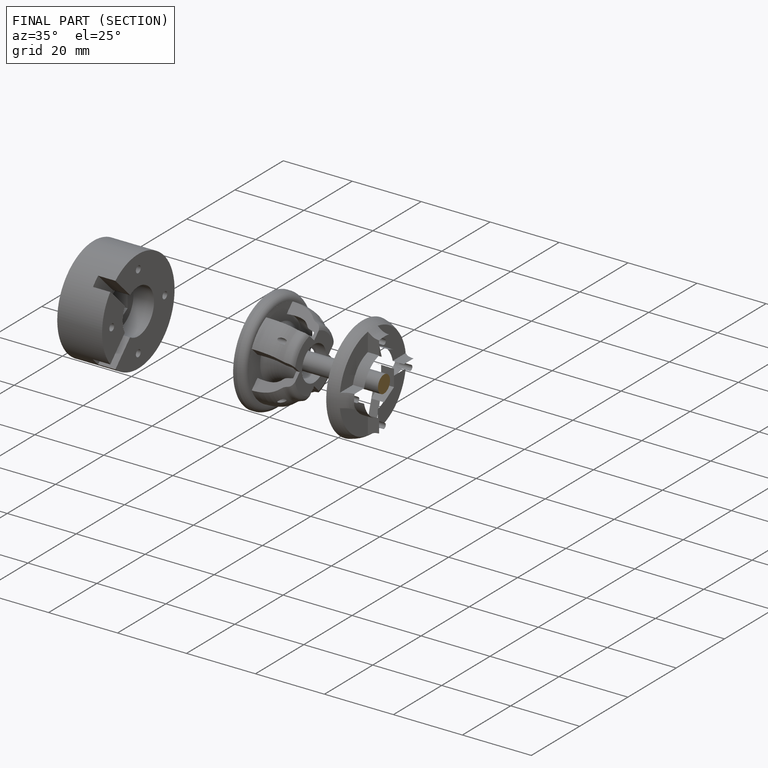
[diagram: finished part — half-section view (interior)]
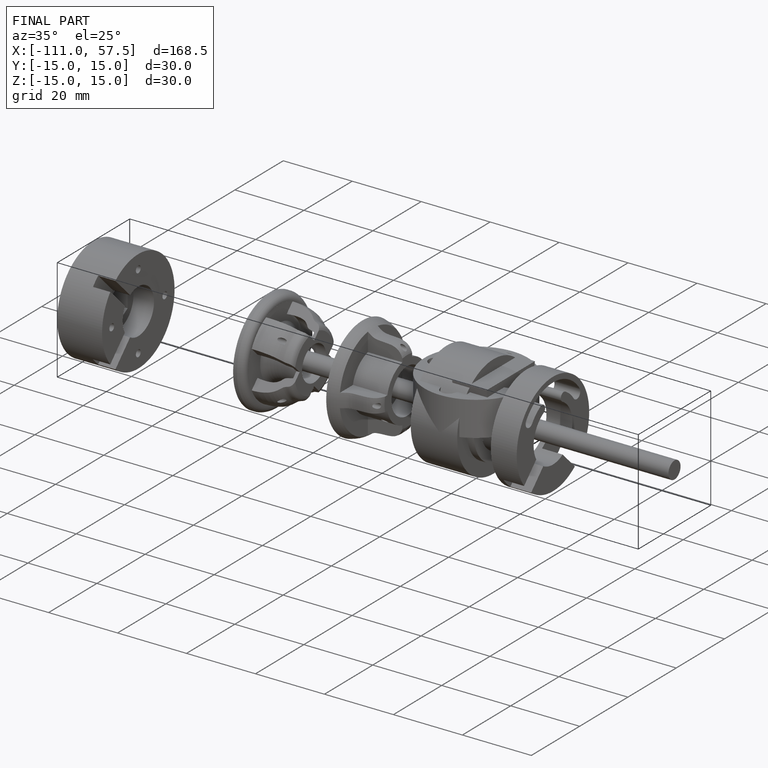
[diagram: finished part — iso view with bounding-box wireframe]
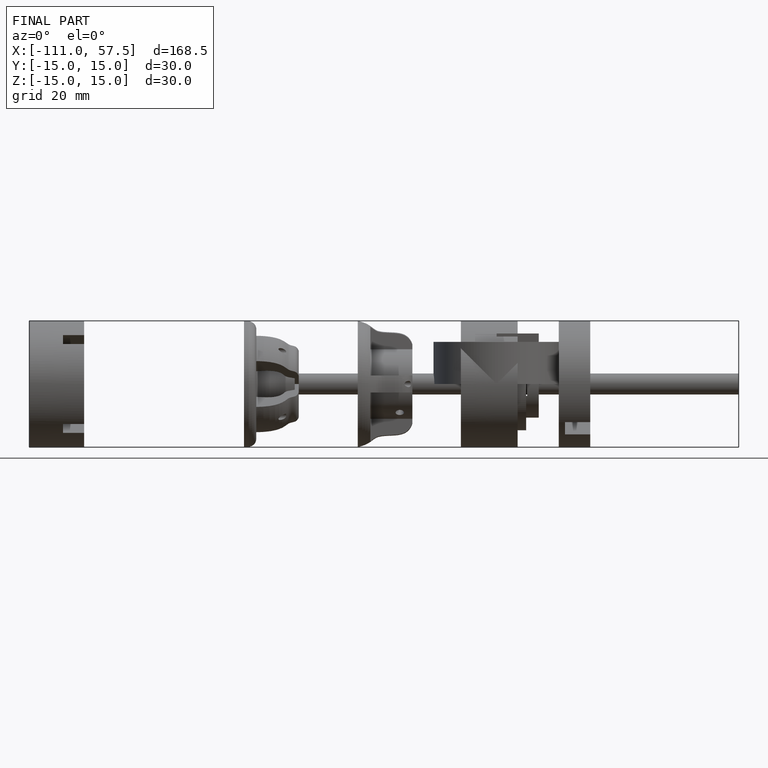
[diagram: finished part — front view with bounding-box wireframe]
